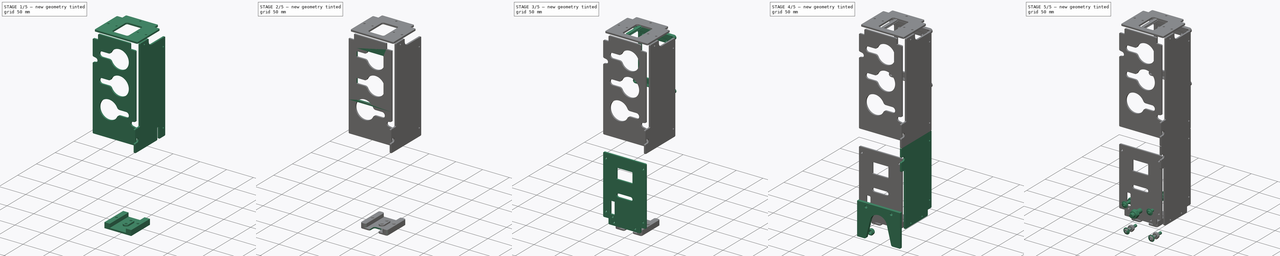
[diagram: build sequence overview — one tinted view per stage of 5, left to right]
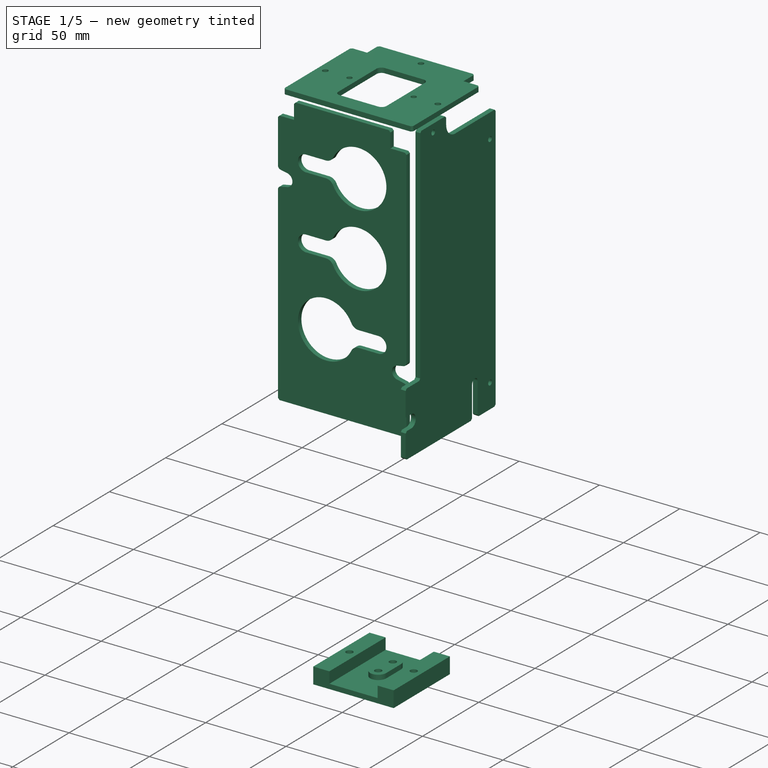
[diagram: stage 1 of 5 — iso view after this stage's code; geometry added in this stage tinted green]
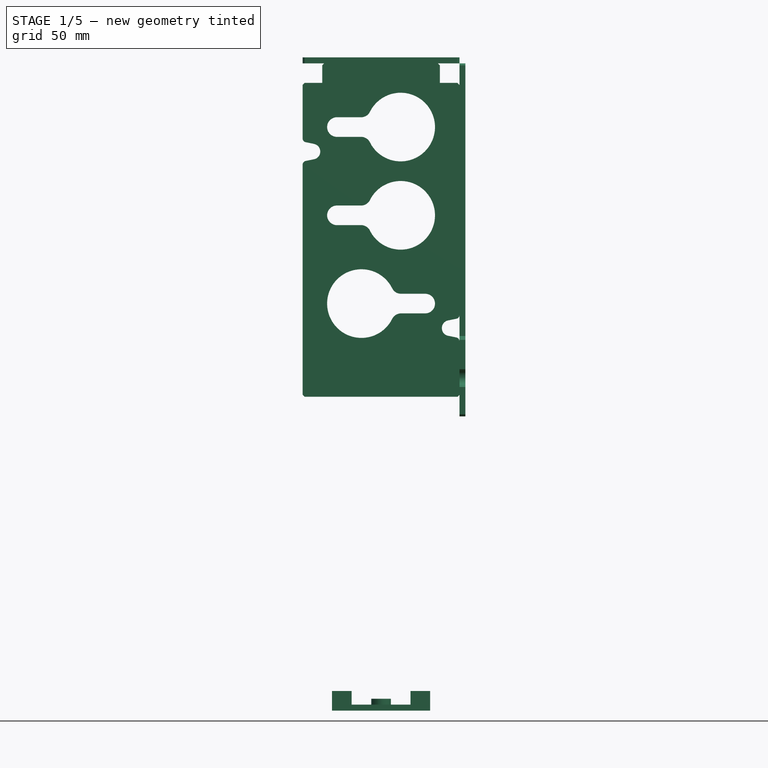
[diagram: stage 1 of 5 — front view after this stage's code; geometry added in this stage tinted green]
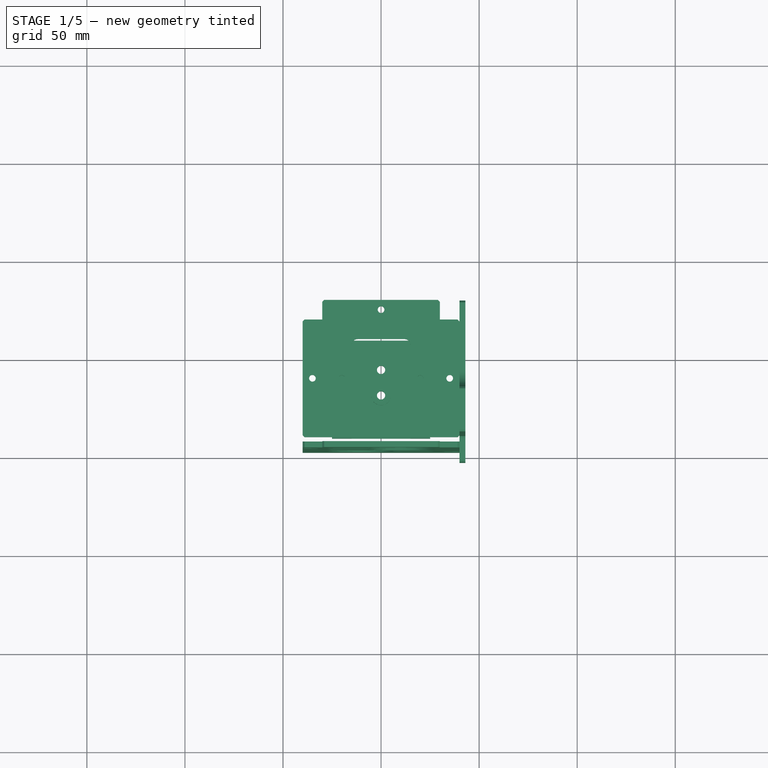
[diagram: stage 1 of 5 — top view after this stage's code; geometry added in this stage tinted green]
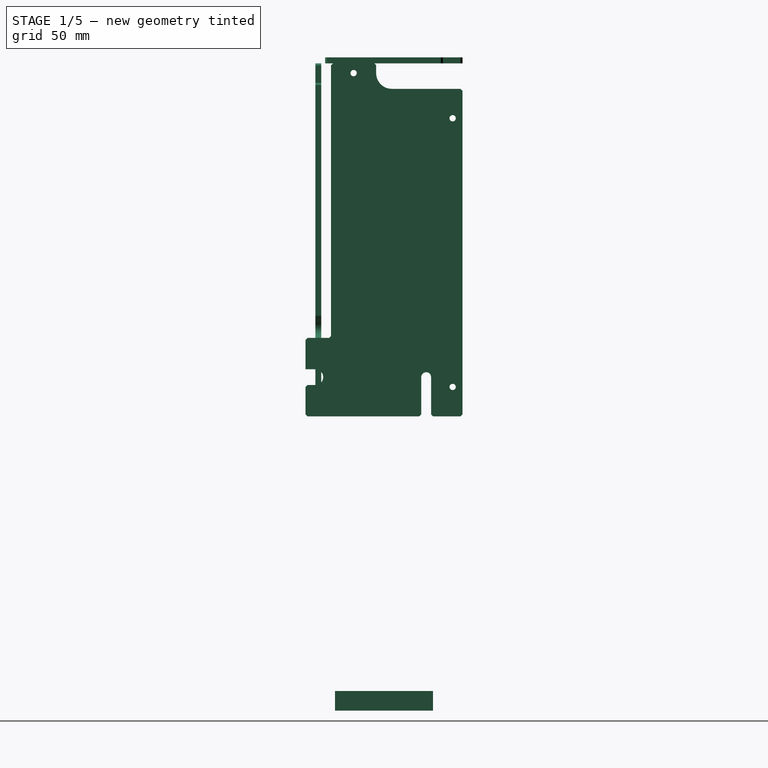
[diagram: stage 1 of 5 — right view after this stage's code; geometry added in this stage tinted green]
FCSTD DOCUMENT  (FreeCAD 2024.113R14555 (Git shallow))
Label: colonne-moteur
License: Creative Commons Attribution-NoDerivatives
LicenseURL: http://creativecommons.org/licenses/by-nd/4.0/
objects: Sketcher::SketchObject×50, App::Link×35, PartDesign::Pocket×28, TechDraw::DrawProjGroupItem×22, TechDraw::DrawProjGroup×22, PartDesign::Pad×21, TechDraw::DrawSVGTemplate×21, TechDraw::DrawPage×21, PartDesign::Chamfer×20, PartDesign::Body×19, App::Part×12, Part::FeaturePython×11, PartDesign::Fillet×11, Part::Feature×6, Part::SubShapeBinder×5, PartDesign::FeatureBase×4, PartDesign::Plane×3, PartDesign::SubShapeBinder×2, App::DocumentObjectGroup×2, App::VRMLObject×1, +3 more types
note: 398 computed .brp shape members not serialized (recipe doc carries the construction recipe); baked Part::Feature solids carry a one-line shape summary decoded from their .brp
EXTERNAL_REF file=omniwheel.FCStd obj=Part016
EXTERNAL_REF file=generic-hardware.FCStd obj=_3HS16_0884S
EXTERNAL_REF file=generic-hardware.FCStd obj=Body004
EXTERNAL_REF file=generic-hardware.FCStd obj=Body003
EXTERNAL_REF file=generic-hardware.FCStd obj=Body001
EXTERNAL_REF file=structures.FCStd obj=Part004
EXTERNAL_REF file=structures.FCStd obj=Part005
EXTERNAL_REF file=structures.FCStd obj=Part006
EXTERNAL_REF file=structures.FCStd obj=Part
EXTERNAL_REF file=../robots_2023.FCStd obj=Part001
EXTERNAL_REF file=generic-hardware.FCStd obj=Solid002
EXTERNAL_REF file=../table_2024.FCStd obj=Group

FEATURE [App::Part] Part001  label="Part"
  ClaimAllChildren = false
  ExportMode = 1
  Group = -> [Screw007,Nut001,Nut002,Screw005,Screw006,Screw008,Nut003,Nut004]
  Origin = -> Origin028
  TreeRank = 0
  _ExportChildren = -> [Screw007,Nut001,Nut002,Screw005,Screw006,Screw008,Nut003,Nut004]
  _GroupVersion = 1
FEATURE [App::Link] Link001  label="Link001(23HS16_0884S_equiped)"
  AutoLinkLabel = true
  AutoPlacement = true
  LinkPlacement = pos=(4.9174e-07,0,0) rot=(0,-1,0;1.5708rad)
  LinkedObject = -> <external generic-hardware.FCStd>#_3HS16_0884S
  Placement = pos=(4.9174e-07,0,0) rot=(0,-1,0;1.5708rad)
  SyncGroupVisibility = false
  TreeRank = 0
  _LinkVersion = 1
FEATURE [App::Part] Part002  label="EnsembleMoteur"
  ClaimAllChildren = false
  ExportMode = 1
  Group = -> [Body018,Part001,Link001,Body017]
  Origin = -> Origin029
  Placement = pos=(0,13,80) rot=(0,0,1;0rad)
  TreeRank = 0
  _ExportChildren = -> [Body018,Part001,Link001,Body017]
  _GroupVersion = 1
FEATURE [App::Link] Link002  label="Link002(MB_300)"
  AttacherType = Attacher::AttachEngine3D
  AutoLinkLabel = true
  AutoPlacement = true
  LinkPlacement = pos=(35,4.974e-13,-4.17233e-06) rot=(1,0,0;1.5708rad)
  LinkedObject = -> <external generic-hardware.FCStd>#Body004
  Placement = pos=(35,4.974e-13,-4.17233e-06) rot=(1,0,0;1.5708rad)
  SyncGroupVisibility = false
  TreeRank = 0
  _LinkVersion = 1
FEATURE [App::Link] Link003  label="Link003(MB_60)"
  AutoLinkLabel = true
  AutoPlacement = true
  LinkPlacement = pos=(35,5,-5) rot=(0,0,1;0rad)
  LinkedObject = -> <external generic-hardware.FCStd>#Body003
  Placement = pos=(35,5,-5) rot=(0,0,1;0rad)
  SyncGroupVisibility = false
  TreeRank = 0
  _LinkVersion = 1
FEATURE [App::Link] Link004  label="Link004(Corner)"
  AutoLinkLabel = true
  AutoPlacement = true
  LinkPlacement = pos=(35,-4.76836e-06,-5) rot=(0,0,-1;1.5708rad)
  LinkedObject = -> <external generic-hardware.FCStd>#Body001
  Placement = pos=(35,-4.76836e-06,-5) rot=(0,0,-1;1.5708rad)
  SyncGroupVisibility = false
  TreeRank = 0
  _LinkVersion = 1
FEATURE [App::Link] Link005  label="Link005(*Corner)"
  AutoLinkLabel = true
  AutoPlacement = true
  LinkPlacement = pos=(-35,3.57629e-06,-5) rot=(0,0,-1;1.5708rad)
  LinkedObject = -> Link004
  Placement = pos=(-35,3.57629e-06,-5) rot=(0,0,-1;1.5708rad)
  SyncGroupVisibility = false
  TreeRank = 0
  _LinkVersion = 1
FEATURE [App::Link] Link006  label="Link006(*Corner)"
  AutoLinkLabel = true
  AutoPlacement = true
  LinkPlacement = pos=(35,70,-5) rot=(0,0,-1;1.5708rad)
  LinkedObject = -> Link004
  Placement = pos=(35,70,-5) rot=(0,0,-1;1.5708rad)
  SyncGroupVisibility = false
  TreeRank = 0
  _LinkVersion = 1
FEATURE [App::Link] Link007  label="Link007(*Corner)"
  AutoLinkLabel = true
  AutoPlacement = true
  LinkPlacement = pos=(-35,70,-5) rot=(0,0,-1;1.5708rad)
  LinkedObject = -> Link004
  Placement = pos=(-35,70,-5) rot=(0,0,-1;1.5708rad)
  SyncGroupVisibility = false
  TreeRank = 0
  _LinkVersion = 1
FEATURE [App::Link] Link008  label="Link008(*Corner)"
  AutoLinkLabel = true
  AutoPlacement = true
  LinkPlacement = pos=(35,-4.76836e-06,305) rot=(0,0,-1;1.5708rad)
  LinkedObject = -> Link004
  Placement = pos=(35,-4.76836e-06,305) rot=(0,0,-1;1.5708rad)
  SyncGroupVisibility = false
  TreeRank = 0
  _LinkVersion = 1
FEATURE [App::Link] Link009  label="Link009(*Corner)"
  AutoLinkLabel = true
  AutoPlacement = true
  LinkPlacement = pos=(35,70,305) rot=(0,0,-1;1.5708rad)
  LinkedObject = -> Link004
  Placement = pos=(35,70,305) rot=(0,0,-1;1.5708rad)
  SyncGroupVisibility = false
  TreeRank = 0
  _LinkVersion = 1
FEATURE [App::Link] Link010  label="Link010(*Corner)"
  AutoLinkLabel = true
  AutoPlacement = true
  LinkPlacement = pos=(-35,3.57629e-06,305) rot=(0,0,-1;1.5708rad)
  LinkedObject = -> Link004
  Placement = pos=(-35,3.57629e-06,305) rot=(0,0,-1;1.5708rad)
  SyncGroupVisibility = false
  TreeRank = 0
  _LinkVersion = 1
FEATURE [App::Link] Link011  label="Link011(*Corner)"
  AutoLinkLabel = true
  AutoPlacement = true
  LinkPlacement = pos=(-35,70,305) rot=(0,0,-1;1.5708rad)
  LinkedObject = -> Link004
  Placement = pos=(-35,70,305) rot=(0,0,-1;1.5708rad)
  SyncGroupVisibility = false
  TreeRank = 0
  _LinkVersion = 1
FEATURE [App::Link] Link012  label="Link012(*MB_300)"
  AutoLinkLabel = true
  AutoPlacement = true
  LinkPlacement = pos=(-35,-4.974e-13,4.17232e-06) rot=(1,0,0;1.5708rad)
  LinkedObject = -> Link002
  Placement = pos=(-35,-4.974e-13,4.17232e-06) rot=(1,0,0;1.5708rad)
  SyncGroupVisibility = false
  TreeRank = 0
  _LinkVersion = 1
FEATURE [App::Link] Link013  label="Link013(*MB_300)"
  AutoLinkLabel = true
  AutoPlacement = true
  LinkPlacement = pos=(35,70,1.2517e-05) rot=(1,0,0;1.5708rad)
  LinkedObject = -> Link002
  Placement = pos=(35,70,1.2517e-05) rot=(1,0,0;1.5708rad)
  SyncGroupVisibility = false
  TreeRank = 0
  _LinkVersion = 1
FEATURE [App::Link] Link014  label="Link014(*MB_300)"
  AutoLinkLabel = true
  AutoPlacement = true
  LinkPlacement = pos=(-35,70,2.08616e-05) rot=(1,0,0;1.5708rad)
  LinkedObject = -> Link002
  Placement = pos=(-35,70,2.08616e-05) rot=(1,0,0;1.5708rad)
  SyncGroupVisibility = false
  TreeRank = 0
  _LinkVersion = 1
FEATURE [App::Link] Link015  label="Link015(*MB_60)"
  AutoLinkLabel = true
  AutoPlacement = true
  LinkPlacement = pos=(-35,5.00001,-5) rot=(0,0,1;0rad)
  LinkedObject = -> Link003
  Placement = pos=(-35,5.00001,-5) rot=(0,0,1;0rad)
  SyncGroupVisibility = false
  TreeRank = 0
  _LinkVersion = 1
FEATURE [App::Link] Link016  label="Link016(*MB_60)"
  AutoLinkLabel = true
  AutoPlacement = true
  LinkPlacement = pos=(-30,70,-5) rot=(0,0,-1;1.5708rad)
  LinkedObject = -> Link003
  Placement = pos=(-30,70,-5) rot=(0,0,-1;1.5708rad)
  SyncGroupVisibility = false
  TreeRank = 0
  _LinkVersion = 1
FEATURE [App::Link] Link017  label="Link017(*MB_60)"
  AutoLinkLabel = true
  AutoPlacement = true
  LinkPlacement = pos=(35,4.99996,305) rot=(0,0,1;0rad)
  LinkedObject = -> Link003
  Placement = pos=(35,4.99996,305) rot=(0,0,1;0rad)
  SyncGroupVisibility = false
  TreeRank = 0
  _LinkVersion = 1
FEATURE [App::Link] Link018  label="Link018(*MB_60)"
  AutoLinkLabel = true
  AutoPlacement = true
  LinkPlacement = pos=(30,-4.30345e-05,305) rot=(0,0,1;1.5708rad)
  LinkedObject = -> Link003
  Placement = pos=(30,-4.30345e-05,305) rot=(0,0,1;1.5708rad)
  SyncGroupVisibility = false
  TreeRank = 0
  _LinkVersion = 1
FEATURE [App::Link] Link019  label="Link019(*MB_60)"
  AutoLinkLabel = true
  AutoPlacement = true
  LinkPlacement = pos=(-35,4.99996,305) rot=(0,0,1;0rad)
  LinkedObject = -> Link003
  Placement = pos=(-35,4.99996,305) rot=(0,0,1;0rad)
  SyncGroupVisibility = false
  TreeRank = 0
  _LinkVersion = 1
FEATURE [App::Link] Link020  label="Link020(*MB_60)"
  AutoLinkLabel = true
  AutoPlacement = true
  LinkPlacement = pos=(-30,69.9999,305) rot=(0,0,-1;1.5708rad)
  LinkedObject = -> Link003
  Placement = pos=(-30,69.9999,305) rot=(0,0,-1;1.5708rad)
  SyncGroupVisibility = false
  TreeRank = 0
  _LinkVersion = 1
FEATURE [Sketcher::SketchObject] Sketch152
  ArcFitTolerance = 0
  AttachmentSupport = -> [XY_Plane089]
  ExternalBSplineMaxDegree = 0
  ExternalBSplineTolerance = 0
  FullyConstrained = true
  InternalTolerance = 1e-06
  InvalidShape = false
  MakeInternals = false
  MapMode = 5
  Support = -> [XY_Plane089]
  TreeRank = 0
  ValidateShape = true
  sketch-geometry (11):
    g0: LineSegment StartX=40 StartY=-30 StartZ=0 EndX=-40 EndY=-30 EndZ=0
    g1: LineSegment StartX=-40 StartY=-30 StartZ=0 EndX=-40 EndY=30 EndZ=0
    g2: LineSegment StartX=-40 StartY=30 StartZ=0 EndX=-30 EndY=30 EndZ=0
    g3: LineSegment StartX=-30 StartY=30 StartZ=0 EndX=-30 EndY=40 EndZ=0
    g4: LineSegment StartX=-30 StartY=40 StartZ=0 EndX=30 EndY=40 EndZ=0
    g5: LineSegment StartX=30 StartY=40 StartZ=0 EndX=30 EndY=30 EndZ=0
    g6: LineSegment StartX=30 StartY=30 StartZ=0 EndX=40 EndY=30 EndZ=0
    g7: LineSegment StartX=40 StartY=30 StartZ=0 EndX=40 EndY=-30 EndZ=0
    g8: Circle CenterX=0 CenterY=35 CenterZ=0 NormalX=0 NormalY=0 NormalZ=1 AngleXU=0 Radius=1.7
    g9: Circle CenterX=-35 CenterY=0 CenterZ=0 NormalX=0 NormalY=0 NormalZ=1 AngleXU=0 Radius=1.7
    g10: Circle CenterX=35 CenterY=0 CenterZ=0 NormalX=0 NormalY=0 NormalZ=1 AngleXU=0 Radius=1.7
  constraints (30):
    c: Coincident(g0,g1)
    c: Coincident(g1,g2)
    c: Horizontal(g2)
    c: Coincident(g2,g3)
    c: Vertical(g3)
    c: Coincident(g3,g4)
    c: Horizontal(g4)
    c: Coincident(g4,g5)
    c: Vertical(g5)
    c: Coincident(g5,g6)
    c: Horizontal(g6)
    c: Coincident(g6,g7)
    c: Coincident(g7,g0)
    c: Vertical(g7)
    c: Symmetric(g0,g0,g-2)
    c: Symmetric(g1,g0,g-1)
    c: Equal(g2,g3)
    c: Equal(g3,g5)
    c: Equal(g5,g6)
    c: DistanceY(g1,g1) = 60
    c: DistanceX(g0,g0) = 80
    c: DistanceX(g2,g2) = 10
    c: PointOnObject(g8,g-2)
    c: PointOnObject(g9,g-1)
    c: Symmetric(g10,g9,g-1)
    c: DistanceX(g1,g9) = 5
    c: DistanceY(g8,g4) = 5
    c: Diameter(g8) = 3.4
    c: Equal(g8,g9)
    c: Equal(g8,g10)
FEATURE [PartDesign::Pad] Pad084
  AddSubType = 0
  AutoTaperInnerAngle = false
  CheckUpToFaceLimits = true
  ClaimChildren = false
  Direction = (1,1,1)
  Fit = 0
  FitJoin = 0
  InnerFit = 0
  InnerFitJoin = 0
  InvalidShape = false
  Length = 3
  Length2 = 100
  Linearize = true
  NewSolid = false
  Profile = -> Sketch152
  Refine = true
  Suppress = false
  TaperInnerAngle = 0
  TaperInnerAngleRev = 0
  TreeRank = 0
  Type = 0
  ValidateShape = true
  _ProfileBasedVersion = 1
FEATURE [PartDesign::Chamfer] Chamfer055
  AddSubType = 0
  Angle = 45
  Base = -> Pad084 [Edge20,Edge14,Edge11,Edge5,Edge2,Edge1]
  BaseFeature = -> Pad084
  ChamferType = 0
  FlipDirection = false
  InvalidShape = false
  NewSolid = false
  Refine = true
  Size = 1
  Size2 = 1
  SupportTransform = false
  Suppress = false
  TreeRank = 0
  UseAllEdges = false
  ValidateShape = true
FEATURE [PartDesign::Body] Body086  label="CarterSide240*320"
  AutoGroupSolids = false
  ClaimAllChildren = false
  ExportMode = 0
  Group = -> [Sketch183,Pad098,Sketch184,Pocket028,Sketch185,Pocket029,Sketch209,Pocket043,Chamfer073,Sketch214,Pocket046]
  InvalidShape = false
  Origin = -> Origin174
  Placement = pos=(0,75,0) rot=(0,0,1;0rad)
  SingleSolid = true
  Tip = -> Pocket046
  TreeRank = 382
  ValidateShape = true
  _ExportChildren = -> [Pad098,Pocket028,Pocket029,Pocket043,Chamfer073,Pocket046]
  _GroupVersion = 1
FEATURE [App::Part] Part013  label="EnsembleTFTCarter"
  ClaimAllChildren = false
  ExportMode = 1
  Group = -> [Body086,Part014,Body093]
  Origin = -> Origin184
  TreeRank = 558
  _ExportChildren = -> [Body086,Part014,Body093]
  _GroupVersion = 1
FEATURE [TechDraw::DrawViewClip] Clip
  Height = 100
  LockPosition = false
  Rotation = 0
  ScaleType = 0
  ShowFrame = false
  TreeRank = 640
  Width = 100
  X = 0
  Y = 0
FEATURE [TechDraw::DrawProjGroupItem] ProjItem019  label="Front019"
  CoarseView = false
  Direction = (0,1,0)
  Focus = 100
  HardHidden = false
  IsoCount = 0
  IsoHidden = false
  IsoVisible = false
  LockPosition = true
  Perspective = false
  Rotation = 0
  RotationVector = (-1,0,0)
  ScaleType = 2
  ScrubCount = 0
  SeamHidden = false
  SeamVisible = true
  SmoothHidden = false
  SmoothVisible = true
  Source = -> [Pocket046]
  TreeRank = 645
  Type = 0
  X = 0
  XDirection = (-1,0,0)
  Y = 0
FEATURE [TechDraw::DrawProjGroup] ProjGroup019
  Anchor = -> ProjItem019
  AutoDistribute = true
  LockPosition = false
  ProjectionType = 0
  Rotation = 0
  ScaleType = 0
  Source = -> [Pocket046]
  TreeRank = 646
  Views = -> [ProjItem019]
  X = 45.1205
  Y = 148.293
  spacingX = 15
  spacingY = 15
FEATURE [TechDraw::DrawPage] Page014  label="Laser3mmCarterSide240-320"
  KeepUpdated = true
  NextBalloonIndex = 1
  ProjectionType = 0
  Template = -> Template014
  TreeRank = 385
  Views = -> [ProjGroup019]
FEATURE [Part::SubShapeBinder] Import006  label="Import006(PolarPattern005)"
  BindCopyOnChange = 0
  BindMode = 0
  ClaimChildren = false
  Context = -> Group001 [Body095.Import006.]
  EdgeTolerance = 1e-06
  FillStyle = 0
  FixShape = 1
  Fuse = false
  InvalidShape = false
  MakeFace = false
  MergeEdges = true
  OffsetFill = false
  OffsetIntersection = false
  OffsetJoinType = 0
  OffsetOpenResult = false
  Outline = false
  PartialLoad = false
  Relative = true
  SplitEdges = false
  Support = -> [Part005[Part003.Part006.Link017.PolarPattern005.]]
  TightBound = false
  TreeRank = 659
  ValidateShape = false
  _Version = 8
FEATURE [TechDraw::DrawSVGTemplate] Template019
  Height = 210
  Orientation = 1
  Template = <path>
  TreeRank = 665
  Width = 297
FEATURE [PartDesign::FeatureBase] Clone003
  BaseFeature = -> Body072
  FixShape = 1
  InvalidShape = false
  NewSolid = false
  Placement = pos=(0,35,320) rot=(0,0,1;0rad)
  Suppress = false
  TreeRank = 679
  ValidateShape = true
FEATURE [Sketcher::SketchObject] Sketch219
  ArcFitTolerance = 1e-06
  AttachmentSupport = -> [XY_Plane118]
  ExternalBSplineMaxDegree = 5
  ExternalBSplineTolerance = 0.0001
  FixShape = 1
  FullyConstrained = true
  InternalTolerance = 1e-06
  InvalidShape = false
  MakeInternals = false
  MapMode = 5
  Support = -> [XY_Plane118]
  TreeRank = 694
  ValidateShape = false
  sketch-geometry (5):
    g0: LineSegment StartX=-25 StartY=60 StartZ=0 EndX=-25 EndY=10 EndZ=0
    g1: LineSegment StartX=-25 StartY=10 StartZ=0 EndX=25 EndY=10 EndZ=0
    g2: LineSegment StartX=25 StartY=10 StartZ=0 EndX=25 EndY=60 EndZ=0
    g3: LineSegment StartX=25 StartY=60 StartZ=0 EndX=-25 EndY=60 EndZ=0
    g4: GeomPoint [constr] X=0 Y=35 Z=0
  constraints (13):
    c: Coincident(g0,g1)
    c: Coincident(g1,g2)
    c: Coincident(g2,g3)
    c: Coincident(g3,g0)
    c: Horizontal(g1)
    c: Horizontal(g3)
    c: Vertical(g0)
    c: Vertical(g2)
    c: Symmetric(g1,g0,g4)
    c: PointOnObject(g4,g-2)
    c: Equal(g3,g2)
    c: DistanceX(g3,g3) = 50
    c: DistanceY(g-1,g4) = 35
FEATURE [PartDesign::Pad] Pad112
  AddSubType = 0
  AlongSketchNormal = false
  AutoTaperInnerAngle = true
  CheckUpToFaceLimits = true
  ClaimChildren = false
  Direction = (0,0,1)
  Fit = 0
  FitJoin = 0
  FixShape = 1
  InnerFit = 0
  InnerFitJoin = 0
  InvalidShape = false
  Length = 10
  Length2 = 10
  Linearize = true
  NewSolid = false
  Profile = -> Sketch219
  ReferenceAxis = -> Sketch219 [N_Axis]
  Refine = true
  Reversed = true
  Suppress = false
  TaperInnerAngle = 0
  TaperInnerAngleRev = 0
  TreeRank = 695
  Type = 0
  ValidateShape = true
  _ProfileBasedVersion = 1
FEATURE [Sketcher::SketchObject] Sketch220
  ArcFitTolerance = 1e-06
  AttachmentSupport = -> [XZ_Plane118]
  ExternalBSplineMaxDegree = 5
  ExternalBSplineTolerance = 0.0001
  ExternalGeometry = -> [Pad112]
  FixShape = 1
  FullyConstrained = true
  InternalTolerance = 1e-06
  InvalidShape = false
  MakeInternals = false
  MapMode = 5
  Placement = pos=(0,0,0) rot=(1,0,0;1.5708rad)
  Support = -> [XZ_Plane118]
  TreeRank = 696
  ValidateShape = false
  sketch-geometry (5):
    g0: LineSegment StartX=-15 StartY=-7 StartZ=0 EndX=-15 EndY=0 EndZ=0
    g1: LineSegment StartX=-15 StartY=0 StartZ=0 EndX=15 EndY=0 EndZ=0
    g2: LineSegment StartX=15 StartY=0 StartZ=0 EndX=15 EndY=-7 EndZ=0
    g3: LineSegment StartX=15 StartY=-7 StartZ=0 EndX=-15 EndY=-7 EndZ=0
    g4: GeomPoint [constr] X=0 Y=-3.5 Z=0
  constraints (13):
    c: Coincident(g0,g1)
    c: Coincident(g1,g2)
    c: Coincident(g2,g3)
    c: Coincident(g3,g0)
    c: Horizontal(g1)
    c: Horizontal(g3)
    c: Vertical(g0)
    c: Vertical(g2)
    c: Symmetric(g1,g0,g4)
    c: PointOnObject(g4,g-2)
    c: PointOnObject(g1,g-1)
    c: DistanceY(g-3,g2) = 3
    c: DistanceX(g1,g1) = 30
FEATURE [PartDesign::Pocket] Pocket049
  AddSubType = 1
  AlongSketchNormal = false
  AutoTaperInnerAngle = true
  BaseFeature = -> Pad112
  CheckUpToFaceLimits = true
  ClaimChildren = false
  Direction = (0,1,-2e-16)
  Fit = 0
  FitJoin = 0
  FixShape = 1
  InnerFit = 0
  InnerFitJoin = 0
  InvalidShape = false
  Length = 5
  Length2 = 10
  Linearize = true
  NewSolid = false
  Profile = -> Sketch220
  ReferenceAxis = -> Sketch220 [N_Axis]
  Refine = true
  Suppress = false
  TaperInnerAngle = 0
  TaperInnerAngleRev = 0
  TreeRank = 697
  Type = 1
  ValidateShape = true
  _ProfileBasedVersion = 1
  _Version = 1
FEATURE [Sketcher::SketchObject] Sketch221
  ArcFitTolerance = 1e-06
  AttachmentSupport = -> [XY_Plane118]
  ExternalBSplineMaxDegree = 5
  ExternalBSplineTolerance = 0.0001
  ExternalGeometry = -> [Pocket049]
  FixShape = 1
  FullyConstrained = true
  InternalTolerance = 1e-06
  InvalidShape = false
  MakeInternals = false
  MapMode = 5
  Support = -> [XY_Plane118]
  TreeRank = 698
  ValidateShape = false
  sketch-geometry (2):
    g0: Circle CenterX=-20 CenterY=35 CenterZ=0 NormalX=0 NormalY=0 NormalZ=1 AngleXU=0 Radius=2.1
    g1: Circle CenterX=20 CenterY=35 CenterZ=0 NormalX=0 NormalY=0 NormalZ=1 AngleXU=0 Radius=2.1
  constraints (5):
    c: Equal(g1,g0)
    c: Diameter(g1) = 4.2
    c: Symmetric(g0,g1,g-2)
    c: DistanceX(g0,g1) = 40
    c: DistanceY(g-3,g1) = 25
FEATURE [PartDesign::Pocket] Pocket050
  AddSubType = 1
  AlongSketchNormal = false
  AutoTaperInnerAngle = true
  BaseFeature = -> Pocket049
  CheckUpToFaceLimits = true
  ClaimChildren = false
  Direction = (0,0,-1)
  Fit = 0
  FitJoin = 0
  FixShape = 1
  InnerFit = 0
  InnerFitJoin = 0
  InvalidShape = false
  Length = 5
  Length2 = 10
  Linearize = true
  NewSolid = false
  Profile = -> Sketch221
  ReferenceAxis = -> Sketch221 [N_Axis]
  Refine = true
  Suppress = false
  TaperInnerAngle = 0
  TaperInnerAngleRev = 0
  TreeRank = 699
  Type = 1
  ValidateShape = true
  _ProfileBasedVersion = 1
  _Version = 1
FEATURE [Sketcher::SketchObject] Sketch222
  ArcFitTolerance = 1e-06
  AttachmentSupport = -> [Pocket050]
  ExternalBSplineMaxDegree = 5
  ExternalBSplineTolerance = 0.0001
  ExternalGeometry = -> [Pocket050]
  FixShape = 1
  FullyConstrained = true
  InternalTolerance = 1e-06
  InvalidShape = false
  MakeInternals = false
  MapMode = 5
  Placement = pos=(0,-1.6e-15,-7) rot=(0,0,1;0rad)
  Support = -> [Pocket050]
  TreeRank = 700
  ValidateShape = false
  sketch-geometry (5):
    g0: ArcOfCircle CenterX=0 CenterY=45 CenterZ=0 NormalX=0 NormalY=0 NormalZ=1 AngleXU=0 Radius=5 StartAngle=2.58e-14 EndAngle=3.14159
    g1: ArcOfCircle CenterX=0 CenterY=32 CenterZ=0 NormalX=0 NormalY=0 NormalZ=1 AngleXU=0 Radius=5 StartAngle=3.14159 EndAngle=6.28319
    g2: LineSegment StartX=-5 StartY=45 StartZ=0 EndX=-5 EndY=32 EndZ=0
    g3: LineSegment StartX=5 StartY=32 StartZ=0 EndX=5 EndY=45 EndZ=0
    g4: LineSegment [constr] StartX=-20 StartY=35 StartZ=0 EndX=20 EndY=35 EndZ=0
  constraints (12):
    c: Tangent(g0,g2) = -1.5708
    c: Tangent(g2,g1) = -1.5708
    c: Tangent(g1,g3) = -1.5708
    c: Tangent(g3,g0) = -1.5708
    c: Equal(g0,g1)
    c: PointOnObject(g0,g-2)
    c: DistanceY(g1,g0) = 13
    c: Radius(g0) = 5
    c: Coincident(g4,g-3)
    c: Coincident(g4,g-4)
    c: DistanceY(g1,g-4) = 3
    c: PointOnObject(g1,g-2)
FEATURE [PartDesign::Pad] Pad113
  AddSubType = 0
  AlongSketchNormal = false
  AutoTaperInnerAngle = true
  BaseFeature = -> Pocket050
  CheckUpToFaceLimits = true
  ClaimChildren = false
  Direction = (0,2e-16,1)
  Fit = 0
  FitJoin = 0
  FixShape = 1
  InnerFit = 0
  InnerFitJoin = 0
  InvalidShape = false
  Length = 3
  Length2 = 10
  Linearize = true
  NewSolid = false
  Profile = -> Sketch222
  ReferenceAxis = -> Sketch222 [N_Axis]
  Refine = true
  Suppress = false
  TaperInnerAngle = 0
  TaperInnerAngleRev = 0
  TreeRank = 701
  Type = 0
  ValidateShape = true
  _ProfileBasedVersion = 1
FEATURE [Sketcher::SketchObject] Sketch223
  ArcFitTolerance = 1e-06
  AttachmentSupport = -> [Pad113]
  ExternalBSplineMaxDegree = 5
  ExternalBSplineTolerance = 0.0001
  ExternalGeometry = -> [Pad113]
  FixShape = 1
  FullyConstrained = true
  InternalTolerance = 1e-06
  InvalidShape = false
  MakeInternals = false
  MapMode = 5
  Placement = pos=(0,0,-4) rot=(0,0,1;0rad)
  Support = -> [Pad113]
  TreeRank = 702
  ValidateShape = false
  sketch-geometry (2):
    g0: Circle CenterX=0 CenterY=45 CenterZ=0 NormalX=0 NormalY=0 NormalZ=1 AngleXU=0 Radius=2.1
    g1: Circle CenterX=0 CenterY=32 CenterZ=0 NormalX=0 NormalY=0 NormalZ=1 AngleXU=0 Radius=2.1
  constraints (4):
    c: Coincident(g0,g-3)
    c: Coincident(g1,g-4)
    c: Equal(g0,g1)
    c: Diameter(g0) = 4.2
FEATURE [PartDesign::Pocket] Pocket051
  AddSubType = 1
  AlongSketchNormal = false
  AutoTaperInnerAngle = true
  BaseFeature = -> Pad113
  CheckUpToFaceLimits = true
  ClaimChildren = false
  Direction = (0,0,-1)
  Fit = 0
  FitJoin = 0
  FixShape = 1
  InnerFit = 0
  InnerFitJoin = 0
  InvalidShape = false
  Length = 7
  Length2 = 10
  Linearize = true
  NewSolid = false
  Profile = -> Sketch223
  ReferenceAxis = -> Sketch223 [N_Axis]
  Refine = true
  Suppress = false
  TaperInnerAngle = 0
  TaperInnerAngleRev = 0
  TreeRank = 703
  Type = 0
  ValidateShape = true
  _ProfileBasedVersion = 1
  _Version = 1
FEATURE [Sketcher::SketchObject] Sketch225
  ArcFitTolerance = 1e-06
  AttachmentSupport = -> [Clone003]
  ExternalBSplineMaxDegree = 5
  ExternalBSplineTolerance = 0.0001
  FixShape = 1
  FullyConstrained = true
  InternalTolerance = 1e-06
  InvalidShape = false
  MakeInternals = false
  MapMode = 5
  Placement = pos=(0,35,320) rot=(1,0,0;3.14159rad)
  Support = -> [Clone003]
  TreeRank = 709
  ValidateShape = false
  sketch-geometry (12):
    g0: ArcOfCircle CenterX=-12 CenterY=17 CenterZ=0 NormalX=0 NormalY=0 NormalZ=1 AngleXU=0 Radius=3 StartAngle=1.5708 EndAngle=3.14159
    g1: LineSegment StartX=-12 StartY=20 StartZ=0 EndX=12 EndY=20 EndZ=0
    g2: ArcOfCircle CenterX=12 CenterY=17 CenterZ=0 NormalX=0 NormalY=0 NormalZ=1 AngleXU=0 Radius=3 StartAngle=0 EndAngle=1.5708
    g3: LineSegment StartX=15 StartY=17 StartZ=0 EndX=15 EndY=-17 EndZ=0
    g4: ArcOfCircle CenterX=12 CenterY=-17 CenterZ=0 NormalX=0 NormalY=0 NormalZ=1 AngleXU=0 Radius=3 StartAngle=4.71239 EndAngle=6.28319
    g5: LineSegment StartX=12 StartY=-20 StartZ=0 EndX=-12 EndY=-20 EndZ=0
    g6: ArcOfCircle CenterX=-12 CenterY=-17 CenterZ=0 NormalX=0 NormalY=0 NormalZ=1 AngleXU=0 Radius=3 StartAngle=3.14159 EndAngle=4.71239
    g7: LineSegment StartX=-15 StartY=-17 StartZ=0 EndX=-15 EndY=17 EndZ=0
    g8: GeomPoint [constr] X=-15 Y=20 Z=0
    g9: GeomPoint [constr] X=15 Y=-20 Z=0
    g10: Circle CenterX=-20 CenterY=0 CenterZ=0 NormalX=0 NormalY=0 NormalZ=1 AngleXU=0 Radius=1.6
    g11: Circle CenterX=20 CenterY=0 CenterZ=0 NormalX=0 NormalY=0 NormalZ=1 AngleXU=0 Radius=1.6
  constraints (28):
    c: Tangent(g0,g1) = 1.5708
    c: Tangent(g1,g2) = 1.5708
    c: Tangent(g2,g3) = 1.5708
    c: Tangent(g3,g4) = 1.5708
    c: Tangent(g4,g5) = 1.5708
    c: Tangent(g5,g6) = 1.5708
    c: Tangent(g6,g7) = 1.5708
    c: Tangent(g7,g0) = 1.5708
    c: Horizontal(g1)
    c: Horizontal(g5)
    c: Vertical(g3)
    c: Vertical(g7)
    c: Equal(g0,g2)
    c: Equal(g2,g4)
    c: Equal(g4,g6)
    c: PointOnObject(g8,g1)
    c: PointOnObject(g8,g7)
    c: PointOnObject(g9,g3)
    c: PointOnObject(g9,g5)
    c: Radius(g2) = 3
    c: DistanceY(g4,g1) = 40
    c: DistanceX(g0,g2) = 30
    c: Symmetric(g2,g6,g-1)
    c: PointOnObject(g10,g-1)
    c: Symmetric(g11,g10,g-1)
    c: Equal(g11,g10)
    c: Diameter(g11) = 3.2
    c: DistanceX(g10,g11) = 40
FEATURE [PartDesign::Pocket] Pocket053
  AddSubType = 1
  AlongSketchNormal = false
  AutoTaperInnerAngle = true
  BaseFeature = -> Clone003
  CheckUpToFaceLimits = true
  ClaimChildren = false
  Direction = (0,0,1)
  Fit = 0
  FitJoin = 0
  FixShape = 1
  InnerFit = 0
  InnerFitJoin = 0
  InvalidShape = false
  Length = 5
  Length2 = 10
  Linearize = true
  NewSolid = false
  Profile = -> Sketch225
  ReferenceAxis = -> Sketch225 [N_Axis]
  Refine = true
  Suppress = false
  TaperInnerAngle = 0
  TaperInnerAngleRev = 0
  TreeRank = 710
  Type = 1
  ValidateShape = true
  _ProfileBasedVersion = 1
  _Version = 1
FEATURE [PartDesign::Body] Body097  label="SupportXBee"
  AutoGroupSolids = false
  ClaimAllChildren = false
  ExportMode = 0
  FixShape = 1
  Group = -> [Sketch219,Pad112,Sketch220,Pocket049,Sketch221,Pocket050,Sketch222,Pad113,Sketch223,Pocket051,Sketch224,Pocket052,Fillet070,Chamfer076,Fillet071,Chamfer077,Chamfer078]
  InvalidShape = false
  Origin = -> Origin191
  Placement = pos=(0,0,320) rot=(0,0,1;0rad)
  SingleSolid = true
  Tip = -> Chamfer078
  TreeRank = 693
  ValidateShape = false
  _ExportChildren = -> [Pad112,Pocket049,Pocket050,Pad113,Pocket051,Pocket052,Fillet070,Chamfer076,Fillet071,Chamfer077,Chamfer078]
  _GroupVersion = 1
FEATURE [App::Part] Part015  label="TopXBeeAssembly"
  ClaimAllChildren = false
  ExportMode = 1
  Group = -> [Body096,Body097]
  Origin = -> Origin190
  TreeRank = 683
  _ExportChildren = -> [Body096,Body097]
  _GroupVersion = 1
FEATURE [TechDraw::DrawSVGTemplate] Template020
  Height = 210
  Orientation = 1
  Template = <path>
  TreeRank = 714
  Width = 297
FEATURE [TechDraw::DrawProjGroupItem] ProjItem021  label="Front021"
  CoarseView = false
  Direction = (0,0,1)
  Focus = 100
  HardHidden = false
  IsoCount = 0
  IsoHidden = false
  IsoVisible = false
  LockPosition = true
  Perspective = false
  Rotation = 0
  RotationVector = (-1,0,0)
  ScaleType = 2
  ScrubCount = 0
  SeamHidden = false
  SeamVisible = false
  SmoothHidden = false
  SmoothVisible = false
  Source = -> [Pocket053]
  TreeRank = 717
  Type = 0
  X = 0
  XDirection = (-1,0,0)
  Y = 0
FEATURE [TechDraw::DrawProjGroup] ProjGroup021
  Anchor = -> ProjItem021
  AutoDistribute = true
  LockPosition = false
  ProjectionType = 0
  Rotation = 0
  ScaleType = 0
  Source = -> [Pocket053]
  TreeRank = 718
  Views = -> [ProjItem021]
  X = 42.0681
  Y = 173.103
  spacingX = 15
  spacingY = 15
FEATURE [TechDraw::DrawPage] Page020  label="Laser3mmCarterXbee"
  KeepUpdated = true
  NextBalloonIndex = 1
  ProjectionType = 0
  Template = -> Template020
  TreeRank = 715
  Views = -> [ProjGroup021]
FEATURE [Sketcher::SketchObject] Sketch226
  ArcFitTolerance = 1e-06
  AttachmentSupport = -> [XZ_Plane120]
  ExternalBSplineMaxDegree = 5
  ExternalBSplineTolerance = 0.0001
  FixShape = 1
  FullyConstrained = true
  InternalTolerance = 1e-06
  InvalidShape = false
  MakeInternals = false
  MapMode = 5
  Placement = pos=(0,0,0) rot=(1,0,0;1.5708rad)
  Support = -> [XZ_Plane120]
  TreeRank = 741
  ValidateShape = false
  sketch-geometry (17):
    g0: LineSegment StartX=40 StartY=150 StartZ=0 EndX=-40 EndY=150 EndZ=0
    g1: LineSegment StartX=-40 StartY=150 StartZ=0 EndX=-40 EndY=310 EndZ=0
    g2: LineSegment StartX=-40 StartY=310 StartZ=0 EndX=-30 EndY=310 EndZ=0
    g3: LineSegment StartX=-30 StartY=310 StartZ=0 EndX=-30 EndY=320 EndZ=0
    g4: LineSegment StartX=-30 StartY=320 StartZ=0 EndX=30 EndY=320 EndZ=0
    g5: LineSegment StartX=30 StartY=320 StartZ=0 EndX=30 EndY=310 EndZ=0
    g6: LineSegment StartX=30 StartY=310 StartZ=0 EndX=40 EndY=310 EndZ=0
    g7: LineSegment StartX=40 StartY=310 StartZ=0 EndX=40 EndY=150 EndZ=0
    g8: Circle CenterX=10 CenterY=287.5 CenterZ=0 NormalX=0 NormalY=0 NormalZ=1 AngleXU=0 Radius=17.5
    g9: Circle CenterX=10 CenterY=242.5 CenterZ=0 NormalX=0 NormalY=0 NormalZ=1 AngleXU=0 Radius=17.5
    g10: Circle CenterX=-10 CenterY=197.5 CenterZ=0 NormalX=0 NormalY=0 NormalZ=1 AngleXU=0 Radius=17.5
    g11: LineSegment [constr] StartX=40 StartY=287.5 StartZ=0 EndX=-40 EndY=287.5 EndZ=0
    g12: LineSegment [constr] StartX=40 StartY=242.5 StartZ=0 EndX=-40 EndY=242.5 EndZ=0
    g13: LineSegment [constr] StartX=40 StartY=197.5 StartZ=0 EndX=-40 EndY=197.5 EndZ=0
    g14: LineSegment [constr] StartX=10 StartY=287.5 StartZ=0 EndX=10 EndY=242.5 EndZ=0
    g15: LineSegment [constr] StartX=10 StartY=242.5 StartZ=0 EndX=10 EndY=197.5 EndZ=0
    g16: LineSegment [constr] StartX=30 StartY=310 StartZ=0 EndX=-30 EndY=310 EndZ=0
  constraints (50):
    c: Coincident(g0,g1)
    c: Vertical(g1)
    c: Coincident(g1,g2)
    c: Horizontal(g2)
    c: Coincident(g2,g3)
    c: Vertical(g3)
    c: Coincident(g3,g4)
    c: Horizontal(g4)
    c: Coincident(g4,g5)
    c: Vertical(g5)
    c: Coincident(g5,g6)
    c: Horizontal(g6)
    c: Coincident(g6,g7)
    c: Coincident(g7,g0)
    c: Vertical(g7)
    c: Symmetric(g0,g0,g-2)
    c: Symmetric(g2,g5,g-2)
    c: Equal(g5,g6)
    c: DistanceY(g3,g3) = 10
    c: DistanceX(g1,g6) = 80
    c: DistanceY(g1) = 310
    c: DistanceY(g1,g1) = 160
    c: Equal(g10,g9)
    c: Equal(g9,g8)
    c: PointOnObject(g11,g7)
    c: PointOnObject(g11,g1)
    c: Horizontal(g11)
    c: PointOnObject(g12,g7)
    c: PointOnObject(g12,g1)
    c: Horizontal(g12)
    c: PointOnObject(g13,g7)
    c: PointOnObject(g13,g1)
    c: Horizontal(g13)
    c: Coincident(g14,g8)
    c: Coincident(g14,g9)
    c: Vertical(g14)
    c: Coincident(g15,g9)
    c: PointOnObject(g15,g13)
    c: Vertical(g15)
    c: Equal(g15,g14)
    c: PointOnObject(g8,g11)
    c: PointOnObject(g9,g12)
    c: PointOnObject(g10,g13)
    c: Coincident(g16,g5)
    c: Coincident(g16,g2)
    c: DistanceY(g14,g14) = 45
    c: DistanceY(g8,g5) = 22.5
    c: DistanceX(g8,g11) = 30
    c: DistanceX(g13,g10) = 30
    c: Diameter(g8) = 35
FEATURE [PartDesign::Pad] Pad114
  AddSubType = 0
  AlongSketchNormal = false
  AutoTaperInnerAngle = true
  CheckUpToFaceLimits = true
  ClaimChildren = false
  Direction = (0,-1,2e-16)
  Fit = 0
  FitJoin = 0
  FixShape = 1
  InnerFit = 0
  InnerFitJoin = 0
  InvalidShape = false
  Length = 3
  Length2 = 10
  Linearize = true
  NewSolid = false
  Profile = -> Sketch226
  ReferenceAxis = -> Sketch226 [N_Axis]
  Refine = true
  Reversed = true
  Suppress = false
  TaperInnerAngle = 0
  TaperInnerAngleRev = 0
  TreeRank = 742
  Type = 0
  ValidateShape = true
  _ProfileBasedVersion = 1
FEATURE [Sketcher::SketchObject] Sketch227
  ArcFitTolerance = 1e-06
  AttachmentSupport = -> [XZ_Plane120]
  ExternalBSplineMaxDegree = 5
  ExternalBSplineTolerance = 0.0001
  ExternalGeometry = -> [Pad114]
  FixShape = 1
  FullyConstrained = true
  InternalTolerance = 1e-06
  InvalidShape = false
  MakeInternals = false
  MapMode = 5
  Placement = pos=(0,0,0) rot=(1,0,0;1.5708rad)
  Support = -> [XZ_Plane120]
  TreeRank = 743
  ValidateShape = false
  sketch-geometry (8):
    g0: ArcOfCircle CenterX=-40 CenterY=275 CenterZ=0 NormalX=0 NormalY=0 NormalZ=1 AngleXU=0 Radius=5 StartAngle=1.36944 EndAngle=4.91375
    g1: ArcOfCircle CenterX=-35 CenterY=275 CenterZ=0 NormalX=0 NormalY=0 NormalZ=1 AngleXU=0 Radius=4 StartAngle=4.91375 EndAngle=7.65262
    g2: LineSegment StartX=-39 StartY=270.101 StartZ=0 EndX=-34.2 EndY=271.081 EndZ=0
    g3: LineSegment StartX=-34.2 StartY=278.919 StartZ=0 EndX=-39 EndY=279.899 EndZ=0
    g4: ArcOfCircle CenterX=40 CenterY=185 CenterZ=0 NormalX=0 NormalY=0 NormalZ=1 AngleXU=0 Radius=5 StartAngle=4.51103 EndAngle=8.05534
    g5: ArcOfCircle CenterX=35 CenterY=185 CenterZ=0 NormalX=0 NormalY=0 NormalZ=1 AngleXU=0 Radius=4 StartAngle=1.77215 EndAngle=4.51103
    g6: LineSegment StartX=39 StartY=189.899 StartZ=0 EndX=34.2 EndY=188.919 EndZ=0
    g7: LineSegment StartX=34.2 StartY=181.081 StartZ=0 EndX=39 EndY=180.101 EndZ=0
  constraints (20):
    c: Tangent(g0,g2) = -1.5708
    c: Tangent(g2,g1) = -1.5708
    c: Tangent(g1,g3) = -1.5708
    c: Tangent(g3,g0) = -1.5708
    c: PointOnObject(g0,g-4)
    c: Horizontal(g1,g0)
    c: DistanceX(g0,g1) = 5
    c: Radius(g1) = 4
    c: Radius(g0) = 5
    c: Tangent(g4,g6) = -1.5708
    c: Tangent(g6,g5) = -1.5708
    c: Tangent(g5,g7) = -1.5708
    c: Tangent(g7,g4) = -1.5708
    c: PointOnObject(g4,g-3)
    c: Horizontal(g5,g4)
    c: Equal(g5,g1)
    c: Equal(g4,g0)
    c: Equal(g6,g2)
    c: DistanceY(g-3,g4) = 35
    c: DistanceY(g0,g-4) = 35
FEATURE [PartDesign::Pocket] Pocket054
  AddSubType = 1
  AlongSketchNormal = false
  AutoTaperInnerAngle = true
  BaseFeature = -> Pad114
  CheckUpToFaceLimits = true
  ClaimChildren = false
  Direction = (0,1,-2e-16)
  Fit = 0
  FitJoin = 0
  FixShape = 1
  InnerFit = 0
  InnerFitJoin = 0
  InvalidShape = false
  Length = 5
  Length2 = 10
  Linearize = true
  NewSolid = false
  Profile = -> Sketch227
  ReferenceAxis = -> Sketch227 [N_Axis]
  Refine = true
  Suppress = false
  TaperInnerAngle = 0
  TaperInnerAngleRev = 0
  TreeRank = 744
  Type = 1
  ValidateShape = true
  _ProfileBasedVersion = 1
  _Version = 1
FEATURE [PartDesign::Fillet] Fillet072
  AddSubType = 0
  Base = -> Pocket054 [Edge7,Edge56,Edge9,Edge63]
  BaseFeature = -> Pocket054
  FixShape = 1
  InvalidShape = false
  NewSolid = false
  Radius = 2
  Refine = true
  SupportTransform = false
  Suppress = false
  TreeRank = 745
  UseAllEdges = false
  ValidateShape = true
FEATURE [PartDesign::Chamfer] Chamfer079
  AddSubType = 0
  Angle = 45
  Base = -> Fillet072 [Edge65,Edge64,Edge63,Edge59,Edge29,Edge3]
  BaseFeature = -> Fillet072
  ChamferType = 0
  FixShape = 1
  FlipDirection = false
  InvalidShape = false
  NewSolid = false
  Refine = true
  Size = 1
  Size2 = 1
  SupportTransform = false
  Suppress = false
  TreeRank = 746
  UseAllEdges = false
  ValidateShape = true
FEATURE [Sketcher::SketchObject] Sketch228
  ArcFitTolerance = 1e-06
  AttachmentSupport = -> [XZ_Plane120]
  ExternalBSplineMaxDegree = 5
  ExternalBSplineTolerance = 0.0001
  ExternalGeometry = -> [Chamfer079]
  FixShape = 1
  FullyConstrained = true
  InternalTolerance = 1e-06
  InvalidShape = false
  MakeInternals = false
  MapMode = 5
  Placement = pos=(0,0,0) rot=(1,0,0;1.5708rad)
  Support = -> [XZ_Plane120]
  TreeRank = 747
  ValidateShape = false
  sketch-geometry (14):
    g0: ArcOfCircle CenterX=10 CenterY=287.5 CenterZ=0 NormalX=0 NormalY=0 NormalZ=1 AngleXU=0 Radius=5 StartAngle=4.71239 EndAngle=7.85398
    g1: ArcOfCircle CenterX=-22.5 CenterY=287.5 CenterZ=0 NormalX=0 NormalY=0 NormalZ=1 AngleXU=0 Radius=5 StartAngle=1.5708 EndAngle=4.71239
    g2: LineSegment StartX=10 StartY=292.5 StartZ=0 EndX=-22.5 EndY=292.5 EndZ=0
    g3: LineSegment StartX=-22.5 StartY=282.5 StartZ=0 EndX=10 EndY=282.5 EndZ=0
    g4: ArcOfCircle CenterX=10 CenterY=242.5 CenterZ=0 NormalX=0 NormalY=0 NormalZ=1 AngleXU=0 Radius=5 StartAngle=4.71239 EndAngle=7.85398
    g5: ArcOfCircle CenterX=-22.5 CenterY=242.5 CenterZ=0 NormalX=0 NormalY=0 NormalZ=1 AngleXU=0 Radius=5 StartAngle=1.5708 EndAngle=4.71239
    g6: LineSegment StartX=10 StartY=247.5 StartZ=0 EndX=-22.5 EndY=247.5 EndZ=0
    g7: LineSegment StartX=-22.5 StartY=237.5 StartZ=0 EndX=10 EndY=237.5 EndZ=0
    g8: ArcOfCircle CenterX=-10 CenterY=197.5 CenterZ=0 NormalX=0 NormalY=0 NormalZ=1 AngleXU=0 Radius=5 StartAngle=1.5708 EndAngle=4.71239
    g9: ArcOfCircle CenterX=22.5 CenterY=197.5 CenterZ=0 NormalX=0 NormalY=0 NormalZ=1 AngleXU=0 Radius=5 StartAngle=4.71239 EndAngle=7.85398
    g10: LineSegment StartX=-10 StartY=192.5 StartZ=0 EndX=22.5 EndY=192.5 EndZ=0
    g11: LineSegment StartX=22.5 StartY=202.5 StartZ=0 EndX=-10 EndY=202.5 EndZ=0
    g12: GeomPoint [constr] X=-27.5 Y=287.5 Z=0
    g13: GeomPoint [constr] X=-27.5 Y=197.5 Z=0
  constraints (31):
    c: Tangent(g0,g2) = -1.5708
    c: Tangent(g2,g1) = -1.5708
    c: Tangent(g1,g3) = -1.5708
    c: Tangent(g3,g0) = -1.5708
    c: Equal(g0,g1)
    c: Coincident(g0,g-3)
    c: Horizontal(g2)
    c: Tangent(g4,g6) = -1.5708
    c: Tangent(g6,g5) = -1.5708
    c: Tangent(g5,g7) = -1.5708
    c: Tangent(g7,g4) = -1.5708
    c: Equal(g4,g5)
    c: Coincident(g4,g-4)
    c: Horizontal(g6)
    c: Tangent(g8,g10) = -1.5708
    c: Tangent(g10,g9) = -1.5708
    c: Tangent(g9,g11) = -1.5708
    c: Tangent(g11,g8) = -1.5708
    c: Equal(g8,g9)
    c: Coincident(g8,g-5)
    c: Horizontal(g10)
    c: Equal(g9,g1)
    c: Equal(g1,g5)
    c: Equal(g7,g11)
    c: Equal(g11,g3)
    c: PointOnObject(g12,g1)
    c: PointOnObject(g13,g-5)
    c: Horizontal(g13,g8)
    c: Horizontal(g12,g1)
    c: Vertical(g12,g13)
    c: Radius(g5) = 5
FEATURE [PartDesign::Pocket] Pocket055
  AddSubType = 1
  AlongSketchNormal = false
  AutoTaperInnerAngle = true
  BaseFeature = -> Chamfer079
  CheckUpToFaceLimits = true
  ClaimChildren = false
  Direction = (0,1,-2e-16)
  Fit = 0
  FitJoin = 0
  FixShape = 1
  InnerFit = 0
  InnerFitJoin = 0
  InvalidShape = false
  Length = 5
  Length2 = 10
  Linearize = true
  NewSolid = false
  Profile = -> Sketch228
  ReferenceAxis = -> Sketch228 [N_Axis]
  Refine = true
  Suppress = false
  TaperInnerAngle = 0
  TaperInnerAngleRev = 0
  TreeRank = 748
  Type = 0
  ValidateShape = true
  _ProfileBasedVersion = 1
  _Version = 1
FEATURE [PartDesign::Fillet] Fillet073
  AddSubType = 0
  Base = -> Pocket055 [Edge118,Edge115,Edge107,Edge110,Edge114,Edge111]
  BaseFeature = -> Pocket055
  FixShape = 1
  InvalidShape = false
  NewSolid = false
  Radius = 5
  Refine = true
  SupportTransform = false
  Suppress = false
  TreeRank = 749
  UseAllEdges = false
  ValidateShape = true
FEATURE [PartDesign::Body] Body098  label="CarterSupCoteServo"
  AutoGroupSolids = false
  ClaimAllChildren = false
  ExportMode = 0
  FixShape = 1
  Group = -> [Sketch226,Pad114,Sketch227,Pocket054,Fillet072,Chamfer079,Sketch228,Pocket055,Fillet073]
  InvalidShape = false
  Origin = -> Origin192
  Placement = pos=(0,75,0) rot=(0,0,1;0rad)
  SingleSolid = true
  Tip = -> Fillet073
  TreeRank = 740
  ValidateShape = false
  _ExportChildren = -> [Pad114,Pocket054,Fillet072,Chamfer079,Pocket055,Fillet073]
  _GroupVersion = 1
FEATURE [TechDraw::DrawSVGTemplate] Template021
  Height = 210
  Orientation = 1
  Template = <path>
  TreeRank = 751
  Width = 297
FEATURE [TechDraw::DrawProjGroupItem] ProjItem022  label="Front022"
  CoarseView = false
  Direction = (0,1,0)
  Focus = 100
  HardHidden = false
  IsoCount = 0
  IsoHidden = false
  IsoVisible = false
  LockPosition = true
  Perspective = false
  Rotation = 0
  RotationVector = (-1,0,0)
  ScaleType = 2
  ScrubCount = 0
  SeamHidden = false
  SeamVisible = false
  SmoothHidden = false
  SmoothVisible = false
  Source = -> [Fillet073]
  TreeRank = 754
  Type = 0
  X = 0
  XDirection = (-1,0,0)
  Y = 0
FEATURE [TechDraw::DrawProjGroup] ProjGroup022
  Anchor = -> ProjItem022
  AutoDistribute = true
  LockPosition = false
  ProjectionType = 0
  Rotation = 0
  ScaleType = 0
  Source = -> [Fillet073]
  TreeRank = 755
  Views = -> [ProjItem022]
  X = 42.432
  Y = 123.443
  spacingX = 15
  spacingY = 15
FEATURE [TechDraw::DrawPage] Page021  label="Laser3mmCarterSupCoteServo"
  KeepUpdated = true
  NextBalloonIndex = 1
  ProjectionType = 0
  Template = -> Template021
  TreeRank = 752
  Views = -> [ProjGroup022]
FEATURE [TechDraw::DrawSVGTemplate] Template022
  Height = 210
  Orientation = 1
  Template = <path>
  TreeRank = 757
  Width = 297
FEATURE [App::DocumentObjectGroup] Group  label="Laser"
  ClaimAllChildren = true
  ExportMode = 1
  Group = -> [Page,Page001,Page002,Unfold_Sketch,Page003,Page004,Page005,Page006,Page007,Page008,Page009,Page010,Page011,Page013,Page014,Page015,Page016,Page017,Page019,Page020,Page021]
  TreeRank = 0
  _GroupVersion = 1
FEATURE [App::DocumentObjectGroup] Group001  label="EnsembleCarters"
  ClaimAllChildren = true
  ExportMode = 1
  Group = -> [Body,Body073,Body072,Part011,Part013,Body086,Body094,Body095,Part015,Body098]
  TreeRank = 264
  _GroupVersion = 1
FEATURE [PartDesign::Body] Body  label="CarterSup"
  AutoGroupSolids = false
  ClaimAllChildren = false
  ExportMode = 0
  Group = -> [Sketch,Export,Pad,Sketch158,Pocket014,Chamfer059,Chamfer]
  InvalidShape = false
  Origin = -> Origin157
  SingleSolid = true
  Tip = -> Chamfer
  TreeRank = 11
  ValidateShape = true
  _ExportChildren = -> [Pad,Pocket014,Chamfer059,Chamfer]
  _GroupVersion = 1
FEATURE [Sketcher::SketchObject] Sketch
  ArcFitTolerance = 0
  AttachmentOffset = pos=(0,0,40) rot=(0,0,1;0rad)
  AttachmentSupport = -> [YZ_Plane090]
  Exports = -> [Export]
  ExternalBSplineMaxDegree = 0
  ExternalBSplineTolerance = 0
  FullyConstrained = true
  InternalTolerance = 1e-06
  InvalidShape = false
  MakeInternals = false
  MapMode = 5
  Placement = pos=(40,-8.9e-15,8.9e-15) rot=(0.57735,0.57735,0.57735;2.0944rad)
  Support = -> [YZ_Plane090]
  TreeRank = 12
  ValidateShape = true
  expr: Constraints[16] = 3 + 5
  sketch-geometry (17):
    g0: LineSegment StartX=8 StartY=320 StartZ=0 EndX=31 EndY=320 EndZ=0
    g1: LineSegment StartX=8 StartY=320 StartZ=0 EndX=8 EndY=180 EndZ=0
    g2: LineSegment StartX=8 StartY=180 StartZ=0 EndX=-5 EndY=180 EndZ=0
    g3: LineSegment StartX=-5 StartY=180 StartZ=0 EndX=-5 EndY=164 EndZ=0
    g4: LineSegment StartX=-5 StartY=140 StartZ=0 EndX=75 EndY=140 EndZ=0
    g5: LineSegment StartX=75 StartY=140 StartZ=0 EndX=75 EndY=307 EndZ=0
    g6: LineSegment StartX=75 StartY=307 StartZ=0 EndX=39 EndY=307 EndZ=0
    g7: LineSegment StartX=31 StartY=320 StartZ=0 EndX=31 EndY=315 EndZ=0
    g8: ArcOfCircle CenterX=39 CenterY=315 CenterZ=0 NormalX=0 NormalY=0 NormalZ=1 AngleXU=0 Radius=8 StartAngle=3.14159 EndAngle=4.71239
    g9: ArcOfCircle CenterX=4.1873e-12 CenterY=160 CenterZ=0 NormalX=0 NormalY=0 NormalZ=1 AngleXU=0 Radius=4 StartAngle=4.71239 EndAngle=7.85398
    g10: LineSegment StartX=-5 StartY=156 StartZ=0 EndX=4.56684e-11 EndY=156 EndZ=0
    g11: LineSegment StartX=4.17683e-11 StartY=164 StartZ=0 EndX=-5 EndY=164 EndZ=0
    g12: Circle CenterX=19.5 CenterY=315 CenterZ=0 NormalX=0 NormalY=0 NormalZ=1 AngleXU=0 Radius=1.6
    g13: Circle CenterX=70 CenterY=292 CenterZ=0 NormalX=0 NormalY=0 NormalZ=1 AngleXU=0 Radius=1.6
    g14: Circle CenterX=70 CenterY=155 CenterZ=0 NormalX=0 NormalY=0 NormalZ=1 AngleXU=0 Radius=1.6
    g15: LineSegment [constr] StartX=19.5 StartY=315 StartZ=0 EndX=19.5 EndY=320 EndZ=0
    g16: LineSegment StartX=-5 StartY=156 StartZ=0 EndX=-5 EndY=140 EndZ=0
  constraints (48):
    c: Horizontal(g0)
    c: Coincident(g0,g1)
    c: Vertical(g1)
    c: Coincident(g1,g2)
    c: Horizontal(g2)
    c: Coincident(g2,g3)
    c: Vertical(g3)
    c: Coincident(g16,g4)
    c: Horizontal(g4)
    c: Coincident(g4,g5)
    c: Vertical(g5)
    c: Coincident(g5,g6)
    c: Horizontal(g6)
    c: Coincident(g0,g7)
    c: Vertical(g7)
    c: DistanceY(g0) = 320
    c: DistanceX(g0) = 8
    c: DistanceX(g8) = 39
    c: DistanceY(g7,g7) = 5
    c: Tangent(g8,g7) = -1.5708
    c: Tangent(g8,g6) = 1.5708
    c: DistanceX(g5) = 75
    c: Radius(g8) = 8
    c: DistanceY(g2) = 180
    c: DistanceX(g2) = -5
    c: DistanceY(g16,g3) = 40
    c: Tangent(g10,g9) = -1.5708
    c: Tangent(g9,g11) = -1.5708
    c: Horizontal(g11)
    c: PointOnObject(g9,g-2)
    c: Radius(g9) = 4
    c: Vertical(g14,g13)
    c: DistanceX(g13,g5) = 5
    c: DistanceY(g13,g5) = 15
    c: DistanceY(g4,g14) = 15
    c: Equal(g14,g13)
    c: Equal(g14,g12)
    c: Diameter(g14) = 3.2
    c: Coincident(g15,g12)
    c: Vertical(g15)
    c: Symmetric(g0,g0,g15)
    c: DistanceY(g12,g15) = 5
    c: Equal(g3,g16)
    c: Coincident(g10,g16)
    c: Vertical(g16)
    c: Horizontal(g10)
    c: DistanceX(g4,g9) = 5
    c: Coincident(g3,g11)
FEATURE [Sketcher::SketchExport] Export
  Base = -> Sketch
  BaseRefs = -> Sketch [vertex1,vertex2,edge1,vertex3,vertex4,edge2,vertex5,vertex6,edge3,vertex7,vertex8,edge4,vertex9,vertex10,edge5,vertex11,vertex12,edge6,vertex13,vertex14,edge7,vertex15,vertex16,edge8,edge9,vertex17,vertex18,vertex19]
  InvalidShape = false
  Placement = pos=(40,-8.9e-15,8.9e-15) rot=(0.57735,0.57735,0.57735;2.0944rad)
  Refs = ;g1v1.vertex1 | ;g1v2.vertex2 | ;g1.edge1 | ;g2v1.vertex3 | ;g2v2.vertex4 | ;g2.edge2 | ;g3v1.vertex5 | ;g3v2.vertex6 | ;g3.edge3 | ;g4v1.vertex7 | ;g4v2.vertex8 | ;g4.edge4 | ;g5v1.vertex9 | ;g5v2.vertex10 | ;g5.edge5 | ;g6v1.vertex11 | ;g6v2.vertex12 | ;g6.edge6 | ;g7v1.vertex13 | ;g7v2.vertex14 | ;g7.edge7 | ;g8v1.vertex15 | ;g8v2.vertex16 | ;g8.edge8 | ;g9.edge9 | ;g9v1.vertex17 | ;g9v2.vertex18 | ;g9v3.vertex19
  SyncPlacement = true
  TreeRank = 13
  ValidateShape = true
FEATURE [PartDesign::Pad] Pad
  AddSubType = 0
  AlongSketchNormal = false
  AutoTaperInnerAngle = false
  CheckUpToFaceLimits = true
  ClaimChildren = false
  Direction = (1,-2e-16,3e-16)
  Fit = 0
  FitJoin = 0
  InnerFit = 0
  InnerFitJoin = 0
  InvalidShape = false
  Length = 3
  Length2 = 100
  Linearize = true
  NewSolid = false
  Placement = pos=(0,0,0) rot=(0.57735,0.57735,0.57735;2.0944rad)
  Profile = -> Sketch
  Refine = true
  Suppress = false
  TaperInnerAngle = 0
  TaperInnerAngleRev = 0
  TreeRank = 14
  Type = 0
  ValidateShape = true
  _ProfileBasedVersion = 1
FEATURE [Sketcher::SketchObject] Sketch158
  ArcFitTolerance = 0
  AttachmentSupport = -> [Pad]
  ExternalBSplineMaxDegree = 0
  ExternalBSplineTolerance = 0
  ExternalGeometry = -> [Pad]
  FullyConstrained = true
  InternalTolerance = 1e-06
  InvalidShape = false
  MakeInternals = false
  MapMode = 5
  Placement = pos=(43,-1.03e-14,9.5e-15) rot=(0.57735,0.57735,0.57735;2.0944rad)
  Support = -> [Pad]
  TreeRank = 94
  ValidateShape = true
  sketch-geometry (4):
    g0: ArcOfCircle CenterX=56.5 CenterY=140 CenterZ=0 NormalX=0 NormalY=0 NormalZ=1 AngleXU=0 Radius=2.5 StartAngle=3.14159 EndAngle=6.28319
    g1: ArcOfCircle CenterX=56.5 CenterY=160 CenterZ=0 NormalX=0 NormalY=0 NormalZ=1 AngleXU=0 Radius=2.5 StartAngle=-3.944e-13 EndAngle=3.14159
    g2: LineSegment StartX=59 StartY=140 StartZ=0 EndX=59 EndY=160 EndZ=0
    g3: LineSegment StartX=54 StartY=160 StartZ=0 EndX=54 EndY=140 EndZ=0
  constraints (10):
    c: Tangent(g0,g2) = -1.5708
    c: Tangent(g2,g1) = -1.5708
    c: Tangent(g1,g3) = -1.5708
    c: Tangent(g3,g0) = -1.5708
    c: Equal(g0,g1)
    c: Vertical(g2)
    c: DistanceX(g1,g1) = 5
    c: DistanceY(g3,g3) = 20
    c: PointOnObject(g0,g-4)
    c: DistanceX(g0,g-4) = 16
FEATURE [PartDesign::Pocket] Pocket014
  AddSubType = 1
  AutoTaperInnerAngle = false
  BaseFeature = -> Pad
  CheckUpToFaceLimits = true
  ClaimChildren = false
  Direction = (-1,2e-16,-2e-16)
  Fit = 0
  FitJoin = 0
  InnerFit = 0
  InnerFitJoin = 0
  InvalidShape = false
  Length = 5
  Length2 = 100
  Linearize = true
  NewSolid = false
  Profile = -> Sketch158
  Refine = true
  Suppress = false
  TaperInnerAngle = 0
  TaperInnerAngleRev = 0
  TreeRank = 95
  Type = 1
  ValidateShape = true
  _ProfileBasedVersion = 1
  _Version = 1
FEATURE [PartDesign::Chamfer] Chamfer059
  AddSubType = 0
  Angle = 45
  Base = -> Pocket014 [Edge45,Edge55]
  BaseFeature = -> Pocket014
  ChamferType = 0
  FlipDirection = false
  InvalidShape = false
  NewSolid = false
  Refine = true
  Size = 1
  Size2 = 1
  SupportTransform = false
  Suppress = false
  TreeRank = 96
  UseAllEdges = false
  ValidateShape = true
FEATURE [TechDraw::DrawPage] Page004  label="Laser3mmCarterSupAscenseur"
  KeepUpdated = true
  NextBalloonIndex = 1
  ProjectionType = 0
  Template = -> Template004
  TreeRank = 99
  Views = -> [ProjGroup004]
FEATURE [TechDraw::DrawProjGroup] ProjGroup004
  Anchor = -> ProjItem004
  AutoDistribute = true
  LockPosition = false
  ProjectionType = 0
  Rotation = 0
  ScaleType = 0
  Source = -> [Chamfer059]
  TreeRank = 102
  Views = -> [ProjItem004]
  X = 43.3532
  Y = 118.018
  spacingX = 15
  spacingY = 15
FEATURE [TechDraw::DrawProjGroupItem] ProjItem004  label="Front004"
  CoarseView = false
  Direction = (1,0,0)
  Focus = 100
  HardHidden = false
  IsoCount = 0
  IsoHidden = false
  IsoVisible = false
  LockPosition = true
  Perspective = false
  Rotation = 0
  RotationVector = (0,-1,0)
  ScaleType = 2
  ScrubCount = 0
  SeamHidden = false
  SeamVisible = true
  SmoothHidden = false
  SmoothVisible = true
  Source = -> [Chamfer059]
  TreeRank = 101
  Type = 0
  X = 0
  XDirection = (0,-1,0)
  Y = 0
FEATURE [PartDesign::Chamfer] Chamfer
  AddSubType = 0
  Angle = 45
  Base = -> Chamfer059 [Edge52,Edge48,Edge46,Edge50,Edge24,Edge28,Edge40,Edge44]
  BaseFeature = -> Chamfer059
  ChamferType = 0
  FixShape = 1
  FlipDirection = false
  InvalidShape = false
  NewSolid = false
  Refine = true
  Size = 1
  Size2 = 1
  SupportTransform = false
  Suppress = false
  TreeRank = 622
  UseAllEdges = false
  ValidateShape = false
FEATURE [TechDraw::DrawPage] Page019  label="Laser3mmCarteSupRapidTube"
  KeepUpdated = true
  NextBalloonIndex = 1
  ProjectionType = 0
  Template = -> Template019
  TreeRank = 666
  Views = -> [ProjGroup020]
FEATURE [TechDraw::DrawProjGroup] ProjGroup020
  Anchor = -> ProjItem020
  AutoDistribute = true
  LockPosition = false
  ProjectionType = 0
  Rotation = 0
  ScaleType = 0
  Source = -> [Fillet069]
  TreeRank = 669
  Views = -> [ProjItem020]
  X = 146.826
  Y = 115.121
  spacingX = 15
  spacingY = 15
FEATURE [TechDraw::DrawProjGroupItem] ProjItem020  label="Front020"
  CoarseView = false
  Direction = (1,0,0)
  Focus = 100
  HardHidden = false
  IsoCount = 0
  IsoHidden = false
  IsoVisible = false
  LockPosition = true
  Perspective = false
  Rotation = 0
  RotationVector = (0,0,-1)
  ScaleType = 2
  ScrubCount = 0
  SeamHidden = false
  SeamVisible = false
  SmoothHidden = false
  SmoothVisible = false
  Source = -> [Fillet069]
  TreeRank = 668
  Type = 0
  X = 0
  XDirection = (0,0,-1)
  Y = 0
FEATURE [TechDraw::DrawPage] Page022
  KeepUpdated = true
  NextBalloonIndex = 1
  ProjectionType = 0
  Template = -> Template022
  TreeRank = 758
  Views = -> [ProjGroup023]
FEATURE [TechDraw::DrawProjGroup] ProjGroup023
  Anchor = -> ProjItem023
  AutoDistribute = true
  LockPosition = false
  ProjectionType = 0
  Rotation = 0
  ScaleType = 0
  Source = -> [Chamfer]
  TreeRank = 761
  Views = -> [ProjItem023]
  X = 42.6025
  Y = 118.253
  spacingX = 15
  spacingY = 15
FEATURE [TechDraw::DrawProjGroupItem] ProjItem023  label="Front023"
  CoarseView = false
  Direction = (1,0,0)
  Focus = 100
  HardHidden = false
  IsoCount = 0
  IsoHidden = false
  IsoVisible = false
  LockPosition = true
  Perspective = false
  Rotation = 0
  RotationVector = (0,1,0)
  ScaleType = 2
  ScrubCount = 0
  SeamHidden = false
  SeamVisible = false
  SmoothHidden = false
  SmoothVisible = false
  Source = -> [Chamfer]
  TreeRank = 760
  Type = 0
  X = 0
  XDirection = (0,1,0)
  Y = 0
note: 6 file-system paths scrubbed to <path> (originals preserved in the JSON sidecar)

RESOLVED EXTERNAL PARTS (link-assembly join: the EXTERNAL_REF files above that resolve inside this repo's crawl, each included once):
---- part ../table_2024.FCStd = doc fcstd_ca1a5b7e3f1f ----
FCSTD DOCUMENT  (FreeCAD 2024.113R14555 (Git shallow))
Label: table_2024
License: Creative Commons Attribution-NoDerivatives
LicenseURL: http://creativecommons.org/licenses/by-nd/4.0/
objects: App::Link×27, App::Part×6, Sketcher::SketchObject×5, PartDesign::Pad×4, PartDesign::Body×3, Part::Feature×3, Part::FeaturePython×3, Image::ImagePlane×2, App::DocumentObjectGroup×2, App::SavedView×2, PartDesign::Pocket×1
note: 34 computed .brp shape members not serialized (recipe doc carries the construction recipe); baked Part::Feature solids carry a one-line shape summary decoded from their .brp
EXTERNAL_REF file=robots_2024.FCStd obj=Part

FEATURE [Image::ImagePlane] ImagePlane  label="Terrain"
  Placement = pos=(1000,1500,0) rot=(0,0,1;1.5708rad)
  TreeRank = 0
  XSize = 3000.34
  YSize = 2000.17
FEATURE [Sketcher::SketchObject] Sketch
  ArcFitTolerance = 1e-06
  AttachmentSupport = -> [XY_Plane]
  ExternalBSplineMaxDegree = 5
  ExternalBSplineTolerance = 0.0001
  FullyConstrained = true
  InternalTolerance = 1e-06
  InvalidShape = false
  MakeInternals = true
  MapMode = 5
  Support = -> [XY_Plane]
  TreeRank = 102
  ValidateShape = true
  sketch-geometry (4):
    g0: LineSegment StartX=-6.17e-14 StartY=9.4e-15 StartZ=0 EndX=2000 EndY=9.4e-15 EndZ=0
    g1: LineSegment StartX=2000 StartY=9.4e-15 StartZ=0 EndX=2000 EndY=3000 EndZ=0
    g2: LineSegment StartX=2000 StartY=3000 StartZ=0 EndX=0 EndY=3000 EndZ=0
    g3: LineSegment StartX=-6.17e-14 StartY=3000 StartZ=0 EndX=-6.17e-14 EndY=0 EndZ=0
  constraints (11):
    c: Coincident(g0,g1)
    c: Coincident(g1,g2)
    c: Coincident(g2,g3)
    c: Coincident(g3,g0)
    c: Horizontal(g0)
    c: Horizontal(g2)
    c: Vertical(g1)
    c: Vertical(g3)
    c: Coincident(g0,g-1)
    c: DistanceX(g2,g2) = 2000
    c: DistanceY(g1,g1) = 3000
FEATURE [PartDesign::Pad] Pad
  AddSubType = 0
  AlongSketchNormal = false
  AutoTaperInnerAngle = true
  CheckUpToFaceLimits = true
  ClaimChildren = false
  Direction = (0,0,1)
  Fit = 0
  FitJoin = 0
  InnerFit = 0
  InnerFitJoin = 0
  InvalidShape = false
  Length = 22
  Length2 = 100
  Linearize = true
  NewSolid = false
  Profile = -> Sketch
  Refine = true
  Reversed = true
  Suppress = false
  TaperInnerAngle = 0
  TaperInnerAngleRev = 0
  TreeRank = 103
  Type = 0
  ValidateShape = true
  _ProfileBasedVersion = 1
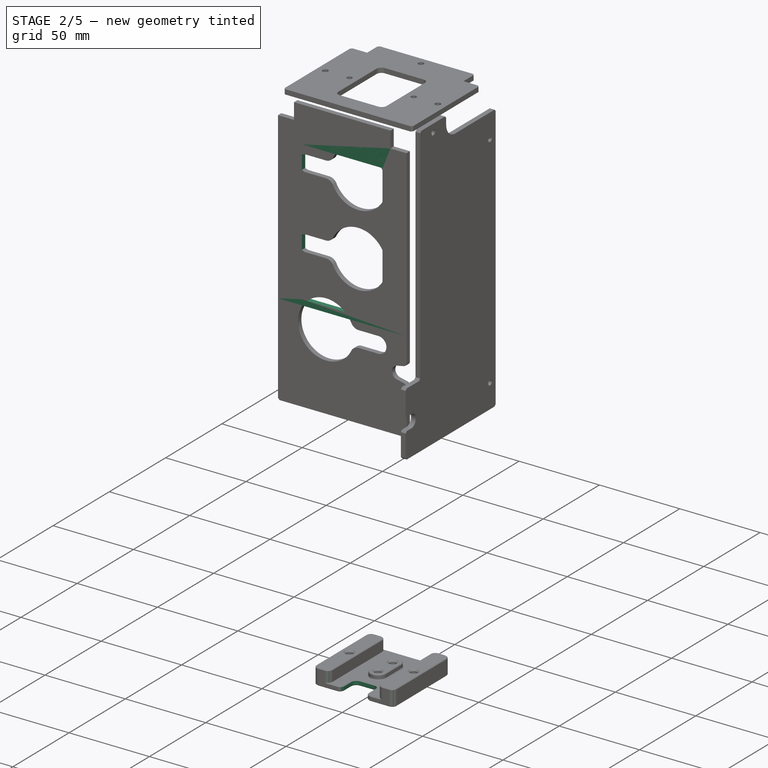
[diagram: stage 2 of 5 — iso view after this stage's code; geometry added in this stage tinted green]
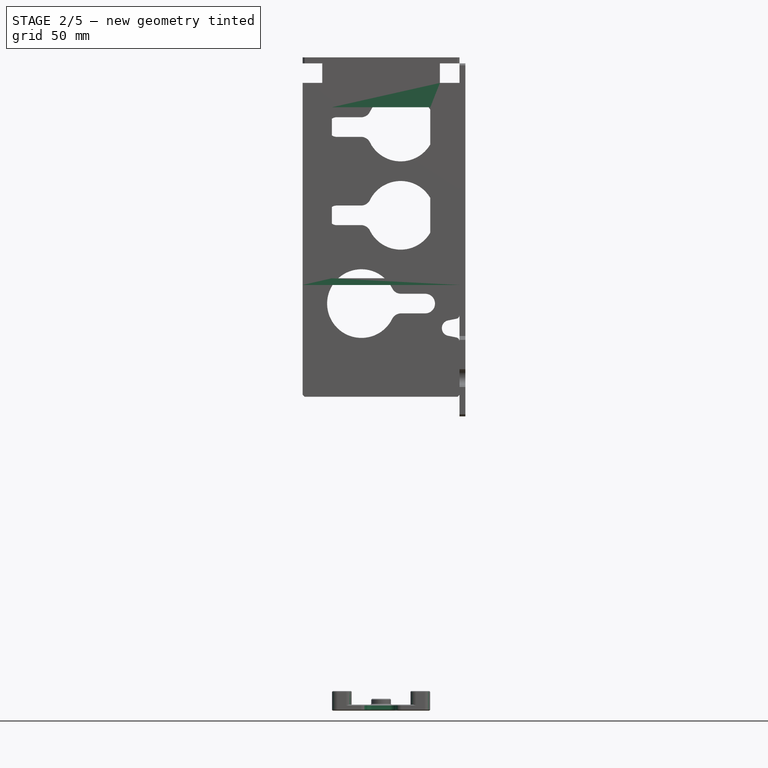
[diagram: stage 2 of 5 — front view after this stage's code; geometry added in this stage tinted green]
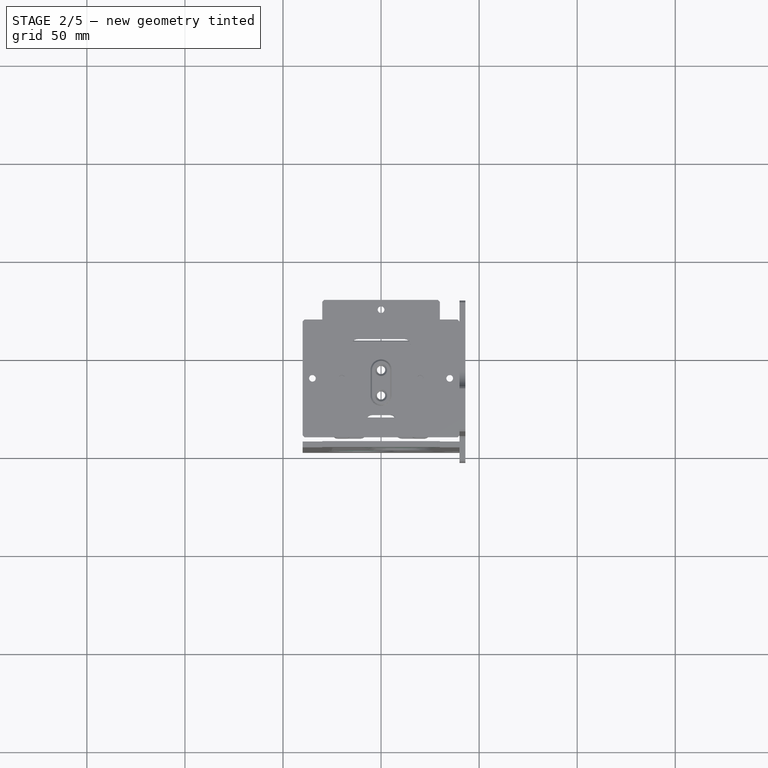
[diagram: stage 2 of 5 — top view after this stage's code; geometry added in this stage tinted green]
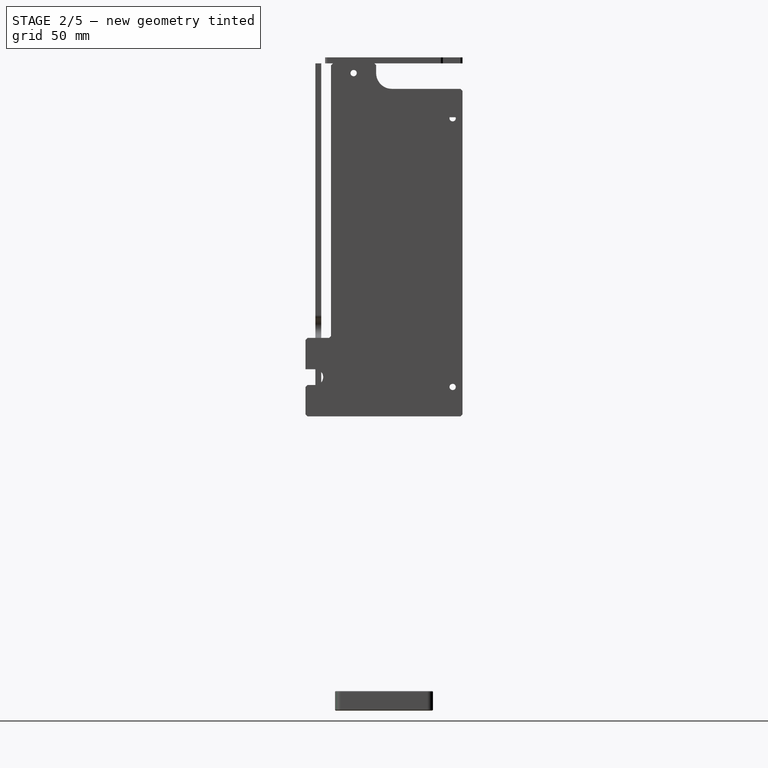
[diagram: stage 2 of 5 — right view after this stage's code; geometry added in this stage tinted green]
FEATURE [PartDesign::Body] Body073  label="CarterInf"
  AutoGroupSolids = false
  ClaimAllChildren = false
  ExportMode = 0
  Group = -> [Sketch153,Pad085,Chamfer056]
  InvalidShape = false
  Origin = -> Origin158
  SingleSolid = true
  Tip = -> Chamfer056
  TreeRank = 25
  ValidateShape = true
  _ExportChildren = -> [Pad085,Chamfer056]
  _GroupVersion = 1
FEATURE [TechDraw::DrawSVGTemplate] Template002
  Height = 210
  Orientation = 1
  TreeRank = 46
  Width = 297
FEATURE [TechDraw::DrawProjGroupItem] ProjItem002  label="Front002"
  CoarseView = false
  Direction = (0,0,1)
  Focus = 100
  HardHidden = false
  IsoCount = 0
  IsoHidden = false
  IsoVisible = false
  LockPosition = true
  Perspective = false
  Rotation = 0
  RotationVector = (-1,0,0)
  ScaleType = 2
  ScrubCount = 0
  SeamHidden = false
  SeamVisible = true
  SmoothHidden = false
  SmoothVisible = true
  TreeRank = 49
  Type = 0
  X = 0
  XDirection = (-1,0,0)
  Y = 0
FEATURE [TechDraw::DrawProjGroup] ProjGroup002
  Anchor = -> ProjItem002
  AutoDistribute = true
  LockPosition = false
  ProjectionType = 0
  Rotation = 0
  ScaleType = 0
  TreeRank = 50
  Views = -> [ProjItem002]
  X = 43.0339
  Y = 171.164
  spacingX = 15
  spacingY = 15
FEATURE [TechDraw::DrawPage] Page002  label="Laser3mmCarterTopUsb"
  KeepUpdated = true
  NextBalloonIndex = 1
  ProjectionType = 0
  Template = -> Template002
  TreeRank = 47
  Views = -> [ProjGroup002]
FEATURE [Sketcher::SketchObject] Unfold_Sketch
  ArcFitTolerance = 0
  ExternalBSplineMaxDegree = 0
  ExternalBSplineTolerance = 0
  FullyConstrained = false
  InternalTolerance = 1e-06
  InvalidShape = false
  MakeInternals = false
  TreeRank = 87
  ValidateShape = true
  sketch-geometry (15):
    g0: LineSegment StartX=-20 StartY=-87.4558 StartZ=0 EndX=-19 EndY=-88.4558 EndZ=0
    g1: LineSegment StartX=-1 StartY=-88.4558 StartZ=0 EndX=-19 EndY=-88.4558 EndZ=0
    g2: LineSegment StartX=4.9e-15 StartY=-87.4558 StartZ=0 EndX=-1 EndY=-88.4558 EndZ=0
    g3: LineSegment StartX=0 StartY=-75 StartZ=0 EndX=0 EndY=-87.4558 EndZ=0
    g4: LineSegment StartX=19 StartY=-75 StartZ=0 EndX=0 EndY=-75 EndZ=0
    g5: LineSegment StartX=19 StartY=-75 StartZ=0 EndX=20 EndY=-74 EndZ=0
    g6: LineSegment StartX=20 StartY=-61 StartZ=0 EndX=20 EndY=-74 EndZ=0
    g7: LineSegment StartX=19 StartY=-60 StartZ=0 EndX=20 EndY=-61 EndZ=0
    g8: LineSegment StartX=19 StartY=-60 StartZ=0 EndX=-10 EndY=-60 EndZ=0
    g9: ArcOfCircle CenterX=-10 CenterY=-70 CenterZ=0 NormalX=0 NormalY=0 NormalZ=1 AngleXU=0 Radius=10 StartAngle=1.5708 EndAngle=3.14159
    g10: LineSegment StartX=-20 StartY=-70 StartZ=0 EndX=-20 EndY=-87.4558 EndZ=0
    g11: Circle CenterX=-5 CenterY=-83.9558 CenterZ=0 NormalX=0 NormalY=0 NormalZ=1 AngleXU=1.5708 Radius=1.6
    g12: Circle CenterX=-13 CenterY=-83.9558 CenterZ=0 NormalX=0 NormalY=0 NormalZ=1 AngleXU=1.5708 Radius=1.6
    g13: Circle CenterX=10 CenterY=-70.5 CenterZ=0 NormalX=0 NormalY=0 NormalZ=-1 AngleXU=-1.5708 Radius=1.6
    g14: LineSegment StartX=-20 StartY=-76.7279 StartZ=0 EndX=0 EndY=-76.7279 EndZ=0
FEATURE [TechDraw::DrawSVGTemplate] Template003
  Height = 210
  Orientation = 1
  TreeRank = 89
  Width = 297
FEATURE [TechDraw::DrawProjGroupItem] ProjItem003  label="Front003"
  CoarseView = false
  Direction = (0,0,1)
  Focus = 100
  HardHidden = false
  IsoCount = 0
  IsoHidden = false
  IsoVisible = false
  LockPosition = true
  Perspective = false
  Rotation = 0
  RotationVector = (0,1,0)
  ScaleType = 2
  ScrubCount = 0
  SeamHidden = false
  SeamVisible = true
  SmoothHidden = false
  SmoothVisible = true
  Source = -> [Unfold_Sketch]
  TreeRank = 92
  Type = 0
  X = 0
  XDirection = (0,1,0)
  Y = 0
FEATURE [TechDraw::DrawProjGroup] ProjGroup003
  Anchor = -> ProjItem003
  AutoDistribute = true
  LockPosition = false
  ProjectionType = 0
  Rotation = 0
  ScaleType = 0
  Source = -> [Unfold_Sketch]
  TreeRank = 93
  Views = -> [ProjItem003]
  X = 15.4001
  Y = 188.736
  spacingX = 15
  spacingY = 15
FEATURE [TechDraw::DrawPage] Page003  label="Laser3mmAngleDrageChain"
  KeepUpdated = true
  NextBalloonIndex = 1
  ProjectionType = 0
  Template = -> Template003
  TreeRank = 90
  Views = -> [ProjGroup003]
FEATURE [TechDraw::DrawSVGTemplate] Template004
  Height = 210
  Orientation = 1
  TreeRank = 98
  Width = 297
FEATURE [TechDraw::DrawSVGTemplate] Template005
  Height = 210
  Orientation = 1
  TreeRank = 121
  Width = 297
FEATURE [TechDraw::DrawProjGroupItem] ProjItem005  label="Front005"
  CoarseView = false
  Direction = (1,0,0)
  Focus = 100
  HardHidden = false
  IsoCount = 0
  IsoHidden = false
  IsoVisible = false
  LockPosition = true
  Perspective = false
  Rotation = 0
  RotationVector = (0,-1,0)
  ScaleType = 2
  ScrubCount = 0
  SeamHidden = false
  SeamVisible = true
  SmoothHidden = false
  SmoothVisible = true
  TreeRank = 124
  Type = 0
  X = 0
  XDirection = (0,-1,0)
  Y = 0
FEATURE [TechDraw::DrawProjGroup] ProjGroup005
  Anchor = -> ProjItem005
  AutoDistribute = true
  LockPosition = false
  ProjectionType = 0
  Rotation = 0
  ScaleType = 0
  TreeRank = 125
  Views = -> [ProjItem005]
  X = 43.9241
  Y = 116.972
  spacingX = 15
  spacingY = 15
FEATURE [TechDraw::DrawPage] Page005  label="Laser3mmCarterLateralPompe"
  KeepUpdated = true
  NextBalloonIndex = 1
  ProjectionType = 0
  Template = -> Template005
  TreeRank = 122
  Views = -> [ProjGroup005]
FEATURE [TechDraw::DrawSVGTemplate] Template006
  Height = 210
  Orientation = 1
  TreeRank = 201
  Width = 297
FEATURE [TechDraw::DrawProjGroupItem] ProjItem006  label="Front006"
  CoarseView = false
  Direction = (0,0,1)
  Focus = 100
  HardHidden = false
  IsoCount = 0
  IsoHidden = false
  IsoVisible = false
  LockPosition = true
  Perspective = false
  Rotation = 0
  RotationVector = (0,1,0)
  ScaleType = 2
  ScrubCount = 0
  SeamHidden = false
  SeamVisible = true
  SmoothHidden = false
  SmoothVisible = true
  TreeRank = 204
  Type = 0
  X = 0
  XDirection = (0,1,0)
  Y = 0
FEATURE [TechDraw::DrawProjGroup] ProjGroup006
  Anchor = -> ProjItem006
  AutoDistribute = true
  LockPosition = false
  ProjectionType = 0
  Rotation = 0
  ScaleType = 0
  TreeRank = 205
  Views = -> [ProjItem006]
  X = 36.8036
  Y = 168.482
  spacingX = 15
  spacingY = 15
FEATURE [TechDraw::DrawPage] Page006  label="Laser3mmCarterTopUsbSD"
  KeepUpdated = true
  NextBalloonIndex = 1
  ProjectionType = 0
  Template = -> Template006
  TreeRank = 202
  Views = -> [ProjGroup006]
FEATURE [TechDraw::DrawSVGTemplate] Template007
  Height = 210
  Orientation = 1
  TreeRank = 226
  Width = 297
FEATURE [TechDraw::DrawProjGroupItem] ProjItem007  label="Front007"
  CoarseView = false
  Direction = (0,0,1)
  Focus = 100
  HardHidden = false
  IsoCount = 0
  IsoHidden = false
  IsoVisible = false
  LockPosition = true
  Perspective = false
  Rotation = 0
  RotationVector = (-1,0,0)
  ScaleType = 2
  ScrubCount = 0
  SeamHidden = false
  SeamVisible = true
  SmoothHidden = false
  SmoothVisible = true
  TreeRank = 229
  Type = 0
  X = 0
  XDirection = (-1,0,0)
  Y = 0
FEATURE [TechDraw::DrawProjGroup] ProjGroup007
  Anchor = -> ProjItem007
  AutoDistribute = true
  LockPosition = false
  ProjectionType = 0
  Rotation = 0
  ScaleType = 0
  TreeRank = 230
  Views = -> [ProjItem007]
  X = 41.8929
  Y = 172.232
  spacingX = 15
  spacingY = 15
FEATURE [TechDraw::DrawPage] Page007  label="Laser3mmCarterTopSD"
  KeepUpdated = true
  NextBalloonIndex = 1
  ProjectionType = 0
  Template = -> Template007
  TreeRank = 227
  Views = -> [ProjGroup007]
FEATURE [TechDraw::DrawSVGTemplate] Template008
  Height = 210
  Orientation = 1
  TreeRank = 253
  Width = 297
FEATURE [TechDraw::DrawProjGroupItem] ProjItem008  label="Front008"
  CoarseView = false
  Direction = (0,-1,0)
  Focus = 100
  HardHidden = false
  IsoCount = 0
  IsoHidden = false
  IsoVisible = false
  LockPosition = true
  Perspective = false
  Rotation = 0
  RotationVector = (1,0,0)
  ScaleType = 2
  ScrubCount = 0
  SeamHidden = false
  SeamVisible = true
  SmoothHidden = false
  SmoothVisible = true
  TreeRank = 256
  Type = 0
  X = 0
  XDirection = (1,0,0)
  Y = 0
FEATURE [TechDraw::DrawProjGroup] ProjGroup008
  Anchor = -> ProjItem008
  AutoDistribute = true
  LockPosition = false
  ProjectionType = 0
  Rotation = 0
  ScaleType = 0
  TreeRank = 257
  Views = -> [ProjItem008]
  X = 42.5187
  Y = 194.848
  spacingX = 15
  spacingY = 15
FEATURE [TechDraw::DrawPage] Page008  label="Laser3mmSupportPCA"
  KeepUpdated = true
  NextBalloonIndex = 1
  ProjectionType = 0
  Template = -> Template008
  TreeRank = 254
  Views = -> [ProjGroup008]
FEATURE [TechDraw::DrawSVGTemplate] Template009
  Height = 210
  Orientation = 1
  TreeRank = 259
  Width = 297
FEATURE [TechDraw::DrawProjGroupItem] ProjItem009  label="Front009"
  CoarseView = false
  Direction = (1,0,0)
  Focus = 100
  HardHidden = false
  IsoCount = 0
  IsoHidden = false
  IsoVisible = false
  LockPosition = true
  Perspective = false
  Rotation = 0
  RotationVector = (0,-1,0)
  ScaleType = 2
  ScrubCount = 0
  SeamHidden = false
  SeamVisible = true
  SmoothHidden = false
  SmoothVisible = true
  Source = -> [Chamfer056]
  TreeRank = 262
  Type = 0
  X = 0
  XDirection = (0,-1,0)
  Y = 0
FEATURE [TechDraw::DrawProjGroup] ProjGroup009
  Anchor = -> ProjItem009
  AutoDistribute = true
  LockPosition = false
  ProjectionType = 0
  Rotation = 0
  ScaleType = 0
  Source = -> [Chamfer056]
  TreeRank = 263
  Views = -> [ProjItem009]
  X = 44.2872
  Y = 137.178
  spacingX = 15
  spacingY = 15
FEATURE [TechDraw::DrawPage] Page009  label="Laser3mmCarterInfAscenseur"
  KeepUpdated = true
  NextBalloonIndex = 1
  ProjectionType = 0
  Template = -> Template009
  TreeRank = 260
  Views = -> [ProjGroup009]
FEATURE [TechDraw::DrawSVGTemplate] Template010
  Height = 210
  Orientation = 1
  TreeRank = 309
  Width = 297
FEATURE [TechDraw::DrawProjGroupItem] ProjItem010  label="Front010"
  CoarseView = false
  Direction = (0,0,-1)
  Focus = 100
  HardHidden = false
  IsoCount = 0
  IsoHidden = false
  IsoVisible = false
  LockPosition = true
  Perspective = false
  Rotation = 0
  RotationVector = (1,0,0)
  ScaleType = 2
  ScrubCount = 0
  SeamHidden = false
  SeamVisible = true
  SmoothHidden = false
  SmoothVisible = true
  TreeRank = 312
  Type = 0
  X = 0
  XDirection = (1,0,0)
  Y = 0
FEATURE [TechDraw::DrawProjGroup] ProjGroup010
  Anchor = -> ProjItem010
  AutoDistribute = true
  LockPosition = false
  ProjectionType = 0
  Rotation = 0
  ScaleType = 0
  TreeRank = 313
  Views = -> [ProjItem010]
  X = 42.7636
  Y = 129.987
  spacingX = 15
  spacingY = 15
FEATURE [TechDraw::DrawProjGroupItem] ProjItem011  label="Front011"
  CoarseView = false
  Direction = (0,0,-1)
  Focus = 100
  HardHidden = false
  IsoCount = 0
  IsoHidden = false
  IsoVisible = false
  LockPosition = true
  Perspective = false
  Rotation = 0
  RotationVector = (1,0,0)
  ScaleType = 2
  ScrubCount = 0
  SeamHidden = false
  SeamVisible = true
  SmoothHidden = false
  SmoothVisible = true
  TreeRank = 315
  Type = 0
  X = 0
  XDirection = (1,0,0)
  Y = 0
FEATURE [TechDraw::DrawProjGroup] ProjGroup011
  Anchor = -> ProjItem011
  AutoDistribute = true
  LockPosition = false
  ProjectionType = 0
  Rotation = 0
  ScaleType = 0
  TreeRank = 316
  Views = -> [ProjItem011]
  X = 41.951
  Y = 173.713
  spacingX = 15
  spacingY = 15
FEATURE [TechDraw::DrawPage] Page010  label="Laser3mmCarterTopLED"
  KeepUpdated = true
  NextBalloonIndex = 1
  ProjectionType = 0
  Template = -> Template010
  TreeRank = 310
  Views = -> [ProjGroup010,ProjGroup011]
FEATURE [TechDraw::DrawSVGTemplate] Template011
  Height = 210
  Orientation = 1
  TreeRank = 318
  Width = 297
FEATURE [TechDraw::DrawProjGroupItem] ProjItem012  label="Front012"
  CoarseView = false
  Direction = (0,0,1)
  Focus = 100
  HardHidden = false
  IsoCount = 0
  IsoHidden = false
  IsoVisible = false
  LockPosition = true
  Perspective = false
  Rotation = 0
  RotationVector = (0,1,0)
  ScaleType = 2
  ScrubCount = 0
  SeamHidden = false
  SeamVisible = true
  SmoothHidden = false
  SmoothVisible = true
  TreeRank = 321
  Type = 0
  X = 0
  XDirection = (0,1,0)
  Y = 0
FEATURE [TechDraw::DrawProjGroup] ProjGroup012
  Anchor = -> ProjItem012
  AutoDistribute = true
  LockPosition = false
  ProjectionType = 0
  Rotation = 0
  ScaleType = 0
  TreeRank = 322
  Views = -> [ProjItem012]
  X = 18.7926
  Y = 184.582
  spacingX = 15
  spacingY = 15
FEATURE [TechDraw::DrawPage] Page011  label="Laser3mmTopLED"
  KeepUpdated = true
  NextBalloonIndex = 1
  ProjectionType = 0
  Template = -> Template011
  TreeRank = 319
  Views = -> [ProjGroup012]
FEATURE [TechDraw::DrawSVGTemplate] Template013
  Height = 210
  Orientation = 1
  TreeRank = 375
  Width = 297
FEATURE [TechDraw::DrawProjGroupItem] ProjItem014  label="Front014"
  CoarseView = false
  Direction = (0,1,0)
  Focus = 100
  HardHidden = false
  IsoCount = 0
  IsoHidden = false
  IsoVisible = false
  LockPosition = true
  Perspective = false
  Rotation = 90
  RotationVector = (1,0,0)
  ScaleType = 2
  ScrubCount = 0
  SeamHidden = false
  SeamVisible = true
  SmoothHidden = false
  SmoothVisible = true
  TreeRank = 378
  Type = 0
  X = 0
  XDirection = (1,0,0)
  Y = 0
FEATURE [TechDraw::DrawProjGroup] ProjGroup014
  Anchor = -> ProjItem014
  AutoDistribute = true
  LockPosition = false
  ProjectionType = 0
  Rotation = 0
  ScaleType = 0
  TreeRank = 379
  Views = -> [ProjItem014]
  X = 104.72
  Y = 165.172
  spacingX = 15
  spacingY = 15
FEATURE [TechDraw::DrawPage] Page013  label="Laser3mmCarterSide"
  KeepUpdated = true
  NextBalloonIndex = 1
  ProjectionType = 0
  Template = -> Template013
  TreeRank = 376
  Views = -> [ProjGroup014]
FEATURE [Sketcher::SketchObject] Sketch183
  ArcFitTolerance = 0
  AttachmentSupport = -> [XZ_Plane106]
  ExternalBSplineMaxDegree = 0
  ExternalBSplineTolerance = 0
  FullyConstrained = true
  InternalTolerance = 1e-06
  InvalidShape = false
  MakeInternals = false
  MapMode = 5
  Placement = pos=(0,0,0) rot=(0,0.707107,0.707107;3.14159rad)
  Support = -> [XZ_Plane106]
  TreeRank = 115
  ValidateShape = true
  sketch-geometry (8):
    g0: LineSegment StartX=-40 StartY=310 StartZ=0 EndX=-30 EndY=310 EndZ=0
    g1: LineSegment StartX=-30 StartY=310 StartZ=0 EndX=-30 EndY=320 EndZ=0
    g2: LineSegment StartX=-30 StartY=320 StartZ=0 EndX=30 EndY=320 EndZ=0
    g3: LineSegment StartX=40 StartY=310 StartZ=0 EndX=40 EndY=207 EndZ=0
    g4: LineSegment StartX=40 StartY=207 StartZ=0 EndX=-40 EndY=207 EndZ=0
    g5: LineSegment StartX=-40 StartY=207 StartZ=0 EndX=-40 EndY=310 EndZ=0
    g6: LineSegment StartX=30 StartY=320 StartZ=0 EndX=30 EndY=310 EndZ=0
    g7: LineSegment StartX=30 StartY=310 StartZ=0 EndX=40 EndY=310 EndZ=0
  constraints (22):
    c: Horizontal(g0)
    c: Coincident(g0,g1)
    c: Vertical(g1)
    c: Coincident(g1,g2)
    c: Vertical(g3)
    c: Coincident(g3,g4)
    c: Horizontal(g4)
    c: Coincident(g4,g5)
    c: Coincident(g5,g0)
    c: Vertical(g5)
    c: Equal(g0,g1)
    c: DistanceY(g1,g1) = 10
    c: Symmetric(g1,g2,g-2)
    c: DistanceX(g2,g2) = 60
    c: DistanceY(g2) = 320
    c: Symmetric(g3,g0,g-2)
    c: DistanceY(g3,g2) = 113
    c: Coincident(g6,g2)
    c: Vertical(g6)
    c: Coincident(g7,g6)
    c: Coincident(g7,g3)
    c: Horizontal(g7)
FEATURE [PartDesign::Pad] Pad098
  AddSubType = 0
  AlongSketchNormal = false
  AutoTaperInnerAngle = false
  CheckUpToFaceLimits = true
  ClaimChildren = false
  Direction = (0,1,2e-16)
  Fit = 0
  FitJoin = 0
  InnerFit = 0
  InnerFitJoin = 0
  InvalidShape = false
  Length = 3
  Length2 = 100
  Linearize = true
  NewSolid = false
  Profile = -> Sketch183
  Refine = true
  Suppress = false
  TaperInnerAngle = 0
  TaperInnerAngleRev = 0
  TreeRank = 116
  Type = 0
  ValidateShape = true
  _ProfileBasedVersion = 1
FEATURE [Sketcher::SketchObject] Sketch184
  ArcFitTolerance = 0
  AttachmentSupport = -> [XZ_Plane106]
  ExternalBSplineMaxDegree = 0
  ExternalBSplineTolerance = 0
  ExternalGeometry = -> [Pad098]
  FullyConstrained = true
  InternalTolerance = 1e-06
  InvalidShape = false
  MakeInternals = false
  MapMode = 5
  Placement = pos=(0,0,0) rot=(0,0.707107,0.707107;3.14159rad)
  Support = -> [XZ_Plane106]
  TreeRank = 117
  ValidateShape = true
  sketch-geometry (16):
    g0: ArcOfCircle CenterX=-40 CenterY=290 CenterZ=0 NormalX=0 NormalY=0 NormalZ=1 AngleXU=0 Radius=4 StartAngle=1.5708 EndAngle=4.71239
    g1: ArcOfCircle CenterX=-35 CenterY=290 CenterZ=0 NormalX=0 NormalY=0 NormalZ=1 AngleXU=0 Radius=4 StartAngle=4.71239 EndAngle=7.85398
    g2: LineSegment StartX=-40 StartY=286 StartZ=0 EndX=-35 EndY=286 EndZ=0
    g3: LineSegment StartX=-35 StartY=294 StartZ=0 EndX=-40 EndY=294 EndZ=0
    g4: ArcOfCircle CenterX=-40 CenterY=227 CenterZ=0 NormalX=0 NormalY=0 NormalZ=1 AngleXU=0 Radius=4 StartAngle=1.5708 EndAngle=4.71239
    g5: ArcOfCircle CenterX=-35 CenterY=227 CenterZ=0 NormalX=0 NormalY=0 NormalZ=1 AngleXU=0 Radius=4 StartAngle=4.71239 EndAngle=7.85398
    g6: LineSegment StartX=-40 StartY=223 StartZ=0 EndX=-35 EndY=223 EndZ=0
    g7: LineSegment StartX=-35 StartY=231 StartZ=0 EndX=-40 EndY=231 EndZ=0
    g8: ArcOfCircle CenterX=40 CenterY=227 CenterZ=0 NormalX=0 NormalY=0 NormalZ=1 AngleXU=0 Radius=4 StartAngle=4.71239 EndAngle=7.85398
    g9: ArcOfCircle CenterX=35 CenterY=227 CenterZ=0 NormalX=0 NormalY=0 NormalZ=1 AngleXU=0 Radius=4 StartAngle=1.5708 EndAngle=4.71239
    g10: LineSegment StartX=40 StartY=231 StartZ=0 EndX=35 EndY=231 EndZ=0
    g11: LineSegment StartX=35 StartY=223 StartZ=0 EndX=40 EndY=223 EndZ=0
    g12: ArcOfCircle CenterX=40 CenterY=290 CenterZ=0 NormalX=0 NormalY=0 NormalZ=1 AngleXU=0 Radius=4 StartAngle=4.71239 EndAngle=7.85398
    g13: ArcOfCircle CenterX=35 CenterY=290 CenterZ=0 NormalX=0 NormalY=0 NormalZ=1 AngleXU=0 Radius=4 StartAngle=1.5708 EndAngle=4.71239
    g14: LineSegment StartX=40 StartY=294 StartZ=0 EndX=35 EndY=294 EndZ=0
    g15: LineSegment StartX=35 StartY=286 StartZ=0 EndX=40 EndY=286 EndZ=0
  constraints (40):
    c: Tangent(g0,g2) = -1.5708
    c: Tangent(g2,g1) = -1.5708
    c: Tangent(g1,g3) = -1.5708
    c: Tangent(g3,g0) = -1.5708
    c: Equal(g0,g1)
    c: Tangent(g4,g6) = -1.5708
    c: Tangent(g6,g5) = -1.5708
    c: Tangent(g5,g7) = -1.5708
    c: Tangent(g7,g4) = -1.5708
    c: Equal(g4,g5)
    c: Tangent(g8,g10) = -1.5708
    c: Tangent(g10,g9) = -1.5708
    c: Tangent(g9,g11) = -1.5708
    c: Tangent(g11,g8) = -1.5708
    c: Equal(g8,g9)
    c: Tangent(g12,g14) = -1.5708
    c: Tangent(g14,g13) = -1.5708
    c: Tangent(g13,g15) = -1.5708
    c: Tangent(g15,g12) = -1.5708
    c: Equal(g12,g13)
    c: Horizontal(g0,g1)
    c: Horizontal(g13,g12)
    c: Horizontal(g13,g1)
    c: Horizontal(g8,g9)
    c: Horizontal(g9,g5)
    c: Horizontal(g5,g4)
    c: Equal(g9,g5)
    c: Equal(g5,g1)
    c: Equal(g1,g13)
    c: Equal(g15,g2)
    c: Equal(g2,g7)
    c: Equal(g7,g10)
    c: PointOnObject(g12,g-4)
    c: PointOnObject(g0,g-3)
    c: PointOnObject(g4,g-3)
    c: PointOnObject(g8,g-4)
    c: DistanceX(g13,g12) = 5
    c: Radius(g13) = 4
    c: DistanceY(g12,g-4) = 20
    c: DistanceY(g-4,g8) = 20
FEATURE [PartDesign::Pocket] Pocket028
  AddSubType = 1
  AutoTaperInnerAngle = false
  BaseFeature = -> Pad098
  CheckUpToFaceLimits = true
  ClaimChildren = false
  Direction = (0,-1,-2e-16)
  Fit = 0
  FitJoin = 0
  InnerFit = 0
  InnerFitJoin = 0
  InvalidShape = false
  Length = 5
  Length2 = 100
  Linearize = true
  NewSolid = false
  Profile = -> Sketch184
  Refine = true
  Reversed = true
  Suppress = false
  TaperInnerAngle = 0
  TaperInnerAngleRev = 0
  TreeRank = 118
  Type = 1
  ValidateShape = true
  _ProfileBasedVersion = 1
  _Version = 1
FEATURE [Sketcher::SketchObject] Sketch185
  ArcFitTolerance = 1e-06
  AttachmentSupport = -> [Pocket028]
  ExternalBSplineMaxDegree = 0
  ExternalBSplineTolerance = 0
  ExternalGeometry = -> [Pocket028]
  FullyConstrained = true
  InternalTolerance = 1e-06
  InvalidShape = false
  MakeInternals = false
  MapMode = 5
  Placement = pos=(0,3,0) rot=(0,0.707107,0.707107;3.14159rad)
  Support = -> [Pocket028]
  TreeRank = 350
  ValidateShape = true
  sketch-geometry (13):
    g0: LineSegment StartX=25 StartY=221.4 StartZ=0 EndX=-25 EndY=221.4 EndZ=0
    g1: LineSegment StartX=-25 StartY=221.4 StartZ=0 EndX=-25 EndY=290.6 EndZ=0
    g2: LineSegment StartX=-25 StartY=290.6 StartZ=0 EndX=25 EndY=290.6 EndZ=0
    g3: LineSegment StartX=25 StartY=290.6 StartZ=0 EndX=25 EndY=221.4 EndZ=0
    g4: LineSegment [constr] StartX=-25 StartY=211 StartZ=0 EndX=-25 EndY=297 EndZ=0
    g5: LineSegment [constr] StartX=-25 StartY=297 StartZ=0 EndX=25 EndY=297 EndZ=0
    g6: LineSegment [constr] StartX=25 StartY=297 StartZ=0 EndX=25 EndY=211 EndZ=0
    g7: Circle CenterX=22 CenterY=217.92 CenterZ=0 NormalX=0 NormalY=0 NormalZ=1 AngleXU=0 Radius=1.6
    g8: Circle CenterX=-22 CenterY=217.92 CenterZ=0 NormalX=0 NormalY=0 NormalZ=1 AngleXU=0 Radius=1.6
    g9: LineSegment [constr] StartX=0 StartY=290.6 StartZ=0 EndX=0 EndY=221.4 EndZ=0
    g10: LineSegment [constr] StartX=-25 StartY=211 StartZ=0 EndX=25 EndY=211 EndZ=0
    g11: Circle CenterX=-22 CenterY=294 CenterZ=0 NormalX=0 NormalY=0 NormalZ=1 AngleXU=0 Radius=1.6
    g12: Circle CenterX=22 CenterY=294 CenterZ=0 NormalX=0 NormalY=0 NormalZ=1 AngleXU=0 Radius=1.6
  constraints (36):
    c: Coincident(g0,g1)
    c: Coincident(g1,g2)
    c: Coincident(g2,g3)
    c: Coincident(g3,g0)
    c: Horizontal(g0)
    c: Horizontal(g2)
    c: Vertical(g1)
    c: Vertical(g3)
    c: Coincident(g4,g5)
    c: Coincident(g5,g6)
    c: Horizontal(g5)
    c: Vertical(g4)
    c: Vertical(g6)
    c: DistanceX(g4,g6) = 50
    c: DistanceY(g3,g3) = 69.2
    c: DistanceX(g0,g0) = 50
    c: Equal(g8,g7)
    c: Diameter(g8) = 3.2
    c: PointOnObject(g9,g0)
    c: Symmetric(g1,g2,g9)
    c: Horizontal(g10)
    c: DistanceY(g10,g7) = 6.92
    c: Symmetric(g7,g8,g9)
    c: DistanceX(g7,g10) = 3
    c: DistanceY(g10,g0) = 10.4
    c: Coincident(g4,g10)
    c: Coincident(g6,g10)
    c: Equal(g8,g11)
    c: Equal(g11,g12)
    c: Symmetric(g11,g12,g9)
    c: Vertical(g12,g7)
    c: Symmetric(g6,g4,g9)
    c: DistanceY(g6,g5) = 86
    c: DistanceY(g12,g5) = 3
    c: PointOnObject(g9,g-2)
    c: DistanceY(g-3,g6) = 4
FEATURE [PartDesign::Pocket] Pocket029
  AddSubType = 1
  AutoTaperInnerAngle = false
  CheckUpToFaceLimits = true
  ClaimChildren = false
  Direction = (0,-1,2e-16)
  Fit = 0
  FitJoin = 0
  InnerFit = 0
  InnerFitJoin = 0
  InvalidShape = false
  Length = 5
  Length2 = 100
  Linearize = true
  NewSolid = false
  Profile = -> Sketch185
  Refine = true
  Suppress = false
  TaperInnerAngle = 0
  TaperInnerAngleRev = 0
  TreeRank = 351
  Type = 1
  ValidateShape = true
  _ProfileBasedVersion = 1
  _Version = 1
FEATURE [PartDesign::Body] Body092  label="CarterLedDiffusant"
  AutoGroupSolids = false
  ClaimAllChildren = false
  ExportMode = 0
  FixShape = 1
  Group = -> [Binder,Sketch207,Pad107,Sketch208,Pad108]
  InvalidShape = false
  Origin = -> Origin183
  SingleSolid = true
  Tip = -> Pad108
  TreeRank = 536
  ValidateShape = false
  _ExportChildren = -> [Binder,Pad107,Pad108]
  _GroupVersion = 1
FEATURE [App::Part] Part011  label="EnsembleCarterIHM-V2"
  ClaimAllChildren = false
  ExportMode = 1
  Group = -> [Link028,Link029,Part012,Body091,Body092]
  Origin = -> Origin180
  TreeRank = 495
  _ExportChildren = -> [Link028,Link029,Part012,Body091,Body092]
  _GroupVersion = 1
FEATURE [TechDraw::DrawSVGTemplate] Template016
  Height = 210
  Orientation = 1
  Template = <path>
  TreeRank = 543
  Width = 297
FEATURE [TechDraw::DrawProjGroupItem] ProjItem017  label="Front017"
  CoarseView = false
  Direction = (0,0,1)
  Focus = 100
  HardHidden = false
  IsoCount = 0
  IsoHidden = false
  IsoVisible = false
  LockPosition = true
  Perspective = false
  Rotation = 0
  RotationVector = (-1,0,0)
  ScaleType = 2
  ScrubCount = 0
  SeamHidden = false
  SeamVisible = true
  SmoothHidden = false
  SmoothVisible = true
  Source = -> [Pad108]
  TreeRank = 546
  Type = 0
  X = 0
  XDirection = (-1,0,0)
  Y = 0
FEATURE [TechDraw::DrawProjGroup] ProjGroup017
  Anchor = -> ProjItem017
  AutoDistribute = true
  LockPosition = false
  ProjectionType = 0
  Rotation = 0
  ScaleType = 0
  Source = -> [Pad108]
  TreeRank = 547
  Views = -> [ProjItem017]
  X = 16.3129
  Y = 184.847
  spacingX = 15
  spacingY = 15
FEATURE [TechDraw::DrawPage] Page016  label="Laser3mm(Lamage)DiffuseurLed"
  KeepUpdated = true
  NextBalloonIndex = 1
  ProjectionType = 0
  Template = -> Template016
  TreeRank = 554
  Views = -> [ProjGroup017]
FEATURE [TechDraw::DrawSVGTemplate] Template017
  Height = 210
  Orientation = 1
  Template = <path>
  TreeRank = 549
  Width = 297
FEATURE [TechDraw::DrawProjGroupItem] ProjItem018  label="Front018"
  CoarseView = false
  Direction = (0,0,1)
  Focus = 100
  HardHidden = false
  IsoCount = 0
  IsoHidden = false
  IsoVisible = false
  LockPosition = true
  Perspective = false
  Rotation = 0
  RotationVector = (-1,0,0)
  ScaleType = 2
  ScrubCount = 0
  SeamHidden = false
  SeamVisible = true
  SmoothHidden = false
  SmoothVisible = true
  Source = -> [Pocket042]
  TreeRank = 552
  Type = 0
  X = 0
  XDirection = (-1,0,0)
  Y = 0
FEATURE [TechDraw::DrawProjGroup] ProjGroup018
  Anchor = -> ProjItem018
  AutoDistribute = true
  LockPosition = false
  ProjectionType = 0
  Rotation = 0
  ScaleType = 0
  Source = -> [Pocket042]
  TreeRank = 551
  Views = -> [ProjItem018]
  X = 44.1193
  Y = 171.847
  spacingX = 15
  spacingY = 15
FEATURE [TechDraw::DrawPage] Page017  label="Laser3mmCarterIHM-V2"
  KeepUpdated = true
  NextBalloonIndex = 1
  ProjectionType = 0
  Template = -> Template017
  TreeRank = 555
  Views = -> [ProjGroup018]
FEATURE [Part::Feature] Solid  label="2.8 LCD TFT Module - Without Glass"
  FixShape = 1
  InvalidShape = false
  TreeRank = 580
  ValidateShape = false
  shape: bbox 50.16 x 85.92 x 10.69 mm, 1917 faces (baked)
FEATURE [Part::Feature] Solid001  label="5035000993"
  FixShape = 1
  InvalidShape = false
  Placement = pos=(3.55645,-3.30468,-2.85) rot=(0.707107,0.707107,0;3.14159rad)
  TreeRank = 581
  ValidateShape = false
  shape: bbox 21.53 x 28.61 x 2.96 mm, 602 faces (baked)
FEATURE [Part::Feature] Solid002  label="0603 Resistor"
  FixShape = 1
  InvalidShape = false
  Placement = pos=(-2.2311,-3.165,0.00254) rot=(0,1,0;3.14159rad)
  TreeRank = 582
  ValidateShape = false
  shape: bbox 1.617 x 0.8669 x 0.4669 mm, 38 faces (baked)
FEATURE [Part::Feature] Solid003  label="0603 Capacitor"
  FixShape = 1
  InvalidShape = false
  Placement = pos=(-14.5217,25.6289,0.00254) rot=(1,0,0;3.14159rad)
  TreeRank = 583
  ValidateShape = false
  shape: bbox 1.6 x 0.8382 x 0.8382 mm, 24 faces (baked)
FEATURE [App::Link] Link030  label="0603 Capacitor"
  AutoLinkLabel = true
  AutoPlacement = true
  LinkPlacement = pos=(-2.48397,19.738,0.00254) rot=(0,1,0;3.14159rad)
  LinkedObject = -> Solid003
  Placement = pos=(-2.48397,19.738,0.00254) rot=(0,1,0;3.14159rad)
  SyncGroupVisibility = false
  TreeRank = 584
  _LinkVersion = 1
FEATURE [App::Link] Link031  label="0603 Resistor"
  AutoLinkLabel = true
  AutoPlacement = true
  LinkPlacement = pos=(-3.87947,-4.76172,0.00254) rot=(1,0,0;3.14159rad)
  LinkedObject = -> Solid002
  Placement = pos=(-3.87947,-4.76172,0.00254) rot=(1,0,0;3.14159rad)
  SyncGroupVisibility = false
  TreeRank = 585
  _LinkVersion = 1
FEATURE [App::Link] Link032  label="0603 Resistor"
  AutoLinkLabel = true
  AutoPlacement = true
  LinkPlacement = pos=(-2.33553,-0.993585,0.00254) rot=(0,1,0;3.14159rad)
  LinkedObject = -> Solid002
  Placement = pos=(-2.33553,-0.993585,0.00254) rot=(0,1,0;3.14159rad)
  SyncGroupVisibility = false
  TreeRank = 586
  _LinkVersion = 1
FEATURE [App::Link] Link033  label="0603 Resistor"
  AutoLinkLabel = true
  AutoPlacement = true
  LinkPlacement = pos=(-12.9341,26.6747,0.00254) rot=(0,1,0;3.14159rad)
  LinkedObject = -> Solid002
  Placement = pos=(-12.9341,26.6747,0.00254) rot=(0,1,0;3.14159rad)
  SyncGroupVisibility = false
  TreeRank = 587
  _LinkVersion = 1
FEATURE [App::Link] Link034  label="0603 Resistor"
  AutoLinkLabel = true
  AutoPlacement = true
  LinkPlacement = pos=(4.53383,19.5922,0.00254) rot=(0,1,0;3.14159rad)
  LinkedObject = -> Solid002
  Placement = pos=(4.53383,19.5922,0.00254) rot=(0,1,0;3.14159rad)
  SyncGroupVisibility = false
  TreeRank = 588
  _LinkVersion = 1
FEATURE [App::Link] Link035  label="0603 Resistor"
  AutoLinkLabel = true
  AutoPlacement = true
  LinkPlacement = pos=(4.38027,26.5372,0.00254) rot=(0,1,0;3.14159rad)
  LinkedObject = -> Solid002
  Placement = pos=(4.38027,26.5372,0.00254) rot=(0,1,0;3.14159rad)
  SyncGroupVisibility = false
  TreeRank = 589
  _LinkVersion = 1
FEATURE [Part::Feature] Solid004  label="SOT23-3"
  FixShape = 1
  InvalidShape = false
  Placement = pos=(3.6167,23.9432,0.105) rot=(0.70831,0.705902,0;3.14159rad)
  TreeRank = 590
  ValidateShape = false
  shape: bbox 3.014 x 2.849 x 1.193 mm, 52 faces (baked)
FEATURE [App::Link] Link036  label="SOT23-3"
  AutoLinkLabel = true
  AutoPlacement = true
  LinkPlacement = pos=(-3.37348,23.944,0.105) rot=(0.999996,-0.002749,0;3.14159rad)
  LinkedObject = -> Solid004
  Placement = pos=(-3.37348,23.944,0.105) rot=(0.999996,-0.002749,0;3.14159rad)
  SyncGroupVisibility = false
  TreeRank = 591
  _LinkVersion = 1
FEATURE [Part::Feature] Compound  label="2.8in TFT(Without Glass)- Tucked Cable"
  FixShape = 1
  InvalidShape = false
  Placement = pos=(-0.0570641,-2.2987,1.6256) rot=(0,0,1;3.14159rad)
  TreeRank = 592
  ValidateShape = false
  shape: bbox 50.13 x 69.5 x 2.736 mm, 295 faces, 4 solids (baked)
FEATURE [App::Part] Part014  label="2.8 TFT Module"
  ClaimAllChildren = false
  ExportMode = 1
  Group = -> [Solid,Solid001,Solid002,Solid003,Link030,Link031,Link032,Link033,Link034,Link035,Solid004,Link036,Compound]
  Origin = -> Origin185
  Placement = pos=(0,78,254.1) rot=(-1,0,0;1.5708rad)
  TreeRank = 594
  _ExportChildren = -> [Solid,Solid001,Solid002,Solid003,Link030,Link031,Link032,Link033,Link034,Link035,Solid004,Link036,Compound]
  _GroupVersion = 1
FEATURE [Sketcher::SketchObject] Sketch209
  ArcFitTolerance = 1e-06
  AttachmentSupport = -> [Pocket029]
  ExternalBSplineMaxDegree = 5
  ExternalBSplineTolerance = 0.0001
  ExternalGeometry = -> [Pocket029]
  FixShape = 1
  FullyConstrained = true
  InternalTolerance = 1e-06
  InvalidShape = false
  MakeInternals = false
  MapMode = 5
  Placement = pos=(0,3,0) rot=(0,0.707107,0.707107;3.14159rad)
  Support = -> [Pocket029]
  TreeRank = 595
  ValidateShape = false
  sketch-geometry (4):
    g0: LineSegment StartX=-25.1 StartY=297.6 StartZ=0 EndX=25.1 EndY=297.6 EndZ=0
    g1: LineSegment StartX=25.1 StartY=297.6 StartZ=0 EndX=25.1 EndY=210.4 EndZ=0
    g2: LineSegment StartX=25.1 StartY=210.4 StartZ=0 EndX=-25.1 EndY=210.4 EndZ=0
    g3: LineSegment StartX=-25.1 StartY=210.4 StartZ=0 EndX=-25.1 EndY=297.6 EndZ=0
  constraints (12):
    c: Coincident(g0,g1)
    c: Coincident(g1,g2)
    c: Coincident(g2,g3)
    c: Coincident(g3,g0)
    c: Horizontal(g0)
    c: Horizontal(g2)
    c: Vertical(g1)
    c: Vertical(g3)
    c: DistanceX(g-4,g0) = 0.1
    c: DistanceX(g0,g-3) = 0.1
    c: DistanceY(g-4,g0) = 7
    c: DistanceY(g2,g-3) = 11
FEATURE [PartDesign::Pocket] Pocket043
  AddSubType = 1
  AlongSketchNormal = false
  AutoTaperInnerAngle = true
  BaseFeature = -> Pocket029
  CheckUpToFaceLimits = true
  ClaimChildren = false
  Direction = (0,-1,2e-16)
  Fit = 0
  FitJoin = 0
  FixShape = 1
  InnerFit = 0
  InnerFitJoin = 0
  InvalidShape = false
  Length = 5
  Length2 = 10
  Linearize = true
  NewSolid = false
  Profile = -> Sketch209
  ReferenceAxis = -> Sketch209 [N_Axis]
  Refine = true
  Suppress = false
  TaperInnerAngle = 0
  TaperInnerAngleRev = 0
  TreeRank = 596
  Type = 0
  ValidateShape = false
  _ProfileBasedVersion = 1
  _Version = 1
FEATURE [Sketcher::SketchObject] Sketch224
  ArcFitTolerance = 1e-06
  AttachmentSupport = -> [Pocket051]
  ExternalBSplineMaxDegree = 5
  ExternalBSplineTolerance = 0.0001
  ExternalGeometry = -> [Pocket051]
  FixShape = 1
  FullyConstrained = true
  InternalTolerance = 1e-06
  InvalidShape = false
  MakeInternals = false
  MapMode = 5
  Placement = pos=(0,-1.6e-15,-7) rot=(0,0,1;0rad)
  Support = -> [Pocket051]
  TreeRank = 704
  ValidateShape = false
  sketch-geometry (5):
    g0: LineSegment StartX=-7.5 StartY=22 StartZ=0 EndX=-7.5 EndY=10 EndZ=0
    g1: LineSegment StartX=-7.5 StartY=10 StartZ=0 EndX=7.5 EndY=10 EndZ=0
    g2: LineSegment StartX=7.5 StartY=10 StartZ=0 EndX=7.5 EndY=22 EndZ=0
    g3: LineSegment StartX=7.5 StartY=22 StartZ=0 EndX=-7.5 EndY=22 EndZ=0
    g4: GeomPoint [constr] X=0 Y=16 Z=0
  constraints (13):
    c: Coincident(g0,g1)
    c: Coincident(g1,g2)
    c: Coincident(g2,g3)
    c: Coincident(g3,g0)
    c: Horizontal(g1)
    c: Horizontal(g3)
    c: Vertical(g0)
    c: Vertical(g2)
    c: Symmetric(g1,g0,g4)
    c: PointOnObject(g4,g-2)
    c: PointOnObject(g1,g-3)
    c: DistanceX(g3,g3) = 15
    c: DistanceY(g2,g2) = 12
FEATURE [PartDesign::Pocket] Pocket052
  AddSubType = 1
  AlongSketchNormal = false
  AutoTaperInnerAngle = true
  BaseFeature = -> Pocket051
  CheckUpToFaceLimits = true
  ClaimChildren = false
  Direction = (0,-2e-16,-1)
  Fit = 0
  FitJoin = 0
  FixShape = 1
  InnerFit = 0
  InnerFitJoin = 0
  InvalidShape = false
  Length = 5
  Length2 = 10
  Linearize = true
  NewSolid = false
  Profile = -> Sketch224
  ReferenceAxis = -> Sketch224 [N_Axis]
  Refine = true
  Suppress = false
  TaperInnerAngle = 0
  TaperInnerAngleRev = 0
  TreeRank = 705
  Type = 1
  ValidateShape = true
  _ProfileBasedVersion = 1
  _Version = 1
FEATURE [PartDesign::Fillet] Fillet070
  AddSubType = 0
  Base = -> Pocket052 [Edge15,Edge46,Edge44,Edge47]
  BaseFeature = -> Pocket052
  FixShape = 1
  InvalidShape = false
  NewSolid = false
  Radius = 3
  Refine = true
  SupportTransform = false
  Suppress = false
  TreeRank = 706
  UseAllEdges = false
  ValidateShape = true
FEATURE [PartDesign::Chamfer] Chamfer076
  AddSubType = 0
  Angle = 45
  Base = -> Fillet070 [Edge42,Edge36,Edge67,Edge37,Edge71,Edge39,Edge69,Edge38]
  BaseFeature = -> Fillet070
  ChamferType = 0
  FixShape = 1
  FlipDirection = false
  InvalidShape = false
  NewSolid = false
  Refine = true
  Size = 1
  Size2 = 1
  SupportTransform = false
  Suppress = false
  TreeRank = 707
  UseAllEdges = false
  ValidateShape = true
FEATURE [PartDesign::Fillet] Fillet071
  AddSubType = 0
  Base = -> Chamfer076 [Edge38,Edge35,Edge26,Edge23,Edge44,Edge33,Edge31,Edge21]
  BaseFeature = -> Chamfer076
  FixShape = 1
  InvalidShape = false
  NewSolid = false
  Radius = 3
  Refine = true
  SupportTransform = false
  Suppress = false
  TreeRank = 708
  UseAllEdges = false
  ValidateShape = true
FEATURE [PartDesign::Body] Body096  label="CarterTopXBee"
  AutoGroupSolids = false
  BaseFeature = -> Body072
  ClaimAllChildren = false
  ExportMode = 0
  FixShape = 1
  Group = -> [Clone003,Sketch225,Pocket053]
  InvalidShape = false
  Origin = -> Origin189
  SingleSolid = true
  Tip = -> Pocket053
  TreeRank = 680
  ValidateShape = false
  _ExportChildren = -> [Clone003,Pocket053]
  _GroupVersion = 1
FEATURE [PartDesign::Chamfer] Chamfer077
  AddSubType = 0
  Angle = 45
  Base = -> Fillet071 [Edge3]
  BaseFeature = -> Fillet071
  ChamferType = 0
  FixShape = 1
  FlipDirection = false
  InvalidShape = false
  NewSolid = false
  Refine = true
  Size = 0.4
  Size2 = 1
  SupportTransform = false
  Suppress = false
  TreeRank = 711
  UseAllEdges = false
  ValidateShape = true
FEATURE [PartDesign::Chamfer] Chamfer078
  AddSubType = 0
  Angle = 45
  Base = -> Chamfer077 [Edge100,Edge65,Edge148,Edge122,Edge102,Edge89]
  BaseFeature = -> Chamfer077
  ChamferType = 0
  FixShape = 1
  FlipDirection = false
  InvalidShape = false
  NewSolid = false
  Refine = true
  Size = 0.4
  Size2 = 1
  SupportTransform = false
  Suppress = false
  TreeRank = 712
  UseAllEdges = false
  ValidateShape = true
FEATURE [PartDesign::Body] Body094  label="CarterSupRapid"
  AutoGroupSolids = false
  BaseFeature = -> Pad
  ClaimAllChildren = false
  ExportMode = 0
  FixShape = 1
  Group = -> [Clone,Sketch215,Pocket,Sketch216,Pocket047,Fillet068,Chamfer075]
  InvalidShape = false
  Origin = -> Origin187
  SingleSolid = true
  Tip = -> Chamfer075
  TreeRank = 633
  ValidateShape = false
  _ExportChildren = -> [Clone,Pocket,Pocket047,Fillet068,Chamfer075]
  _GroupVersion = 1
FEATURE [PartDesign::FeatureBase] Clone
  BaseFeature = -> Pad
  FixShape = 1
  InvalidShape = false
  NewSolid = false
  Placement = pos=(0,0,0) rot=(0.57735,0.57735,0.57735;2.0944rad)
  Suppress = false
  TreeRank = 632
  ValidateShape = false
FEATURE [Sketcher::SketchObject] Sketch215
  ArcFitTolerance = 1e-06
  AttachmentSupport = -> [Clone]
  ExternalBSplineMaxDegree = 5
  ExternalBSplineTolerance = 0.0001
  ExternalGeometry = -> [Clone]
  FixShape = 1
  FullyConstrained = true
  InternalTolerance = 1e-06
  InvalidShape = false
  MakeInternals = false
  MapMode = 5
  Placement = pos=(40,-9.6e-15,1.32e-14) rot=(0.57735,0.57735,-0.57735;4.18879rad)
  Support = -> [Clone]
  TreeRank = 634
  ValidateShape = false
  sketch-geometry (6):
    g0: LineSegment StartX=8 StartY=-170 StartZ=0 EndX=8 EndY=-180 EndZ=0
    g1: LineSegment StartX=8 StartY=-180 StartZ=0 EndX=-5 EndY=-180 EndZ=0
    g2: LineSegment StartX=-5 StartY=-180 StartZ=0 EndX=-5 EndY=-140 EndZ=0
    g3: LineSegment StartX=-5 StartY=-140 StartZ=0 EndX=3.4452e-12 EndY=-140 EndZ=0
    g4: LineSegment StartX=3.4448e-12 StartY=-140 StartZ=0 EndX=3.4448e-12 EndY=-170 EndZ=0
    g5: LineSegment StartX=3.4448e-12 StartY=-170 StartZ=0 EndX=8 EndY=-170 EndZ=0
  constraints (15):
    c: Coincident(g0,g-3)
    c: Vertical(g0)
    c: Coincident(g1,g0)
    c: Coincident(g1,g-4)
    c: Coincident(g2,g1)
    c: Coincident(g2,g-5)
    c: Coincident(g3,g2)
    c: Horizontal(g3)
    c: Coincident(g4,g3)
    c: Vertical(g4)
    c: Coincident(g5,g4)
    c: Coincident(g5,g0)
    c: Horizontal(g5)
    c: DistanceY(g0,g0) = 10
    c: DistanceX(g3,g3) = 5
FEATURE [PartDesign::Pocket] Pocket
  AddSubType = 1
  AlongSketchNormal = false
  AutoTaperInnerAngle = true
  BaseFeature = -> Clone
  CheckUpToFaceLimits = true
  ClaimChildren = false
  Direction = (1,-2e-16,2e-16)
  Fit = 0
  FitJoin = 0
  FixShape = 1
  InnerFit = 0
  InnerFitJoin = 0
  InvalidShape = false
  Length = 5
  Length2 = 10
  Linearize = true
  NewSolid = false
  Profile = -> Sketch215
  ReferenceAxis = -> Sketch215 [N_Axis]
  Refine = true
  Suppress = false
  TaperInnerAngle = 0
  TaperInnerAngleRev = 0
  TreeRank = 635
  Type = 0
  ValidateShape = false
  _ProfileBasedVersion = 1
  _Version = 1
FEATURE [Sketcher::SketchObject] Sketch216
  ArcFitTolerance = 1e-06
  AttachmentSupport = -> [Pocket]
  ExternalBSplineMaxDegree = 5
  ExternalBSplineTolerance = 0.0001
  ExternalGeometry = -> [Pocket]
  FixShape = 1
  FullyConstrained = true
  InternalTolerance = 1e-06
  InvalidShape = false
  MakeInternals = false
  MapMode = 5
  Placement = pos=(43,-1.03e-14,1.42e-14) rot=(0.57735,0.57735,0.57735;2.0944rad)
  Support = -> [Pocket]
  TreeRank = 636
  ValidateShape = false
  sketch-geometry (12):
    g0: ArcOfCircle CenterX=19.5 CenterY=315 CenterZ=0 NormalX=0 NormalY=0 NormalZ=1 AngleXU=0 Radius=4.05403 StartAngle=3.30504 EndAngle=6.11974
    g1: ArcOfCircle CenterX=19.5 CenterY=320.814 CenterZ=0 NormalX=0 NormalY=0 NormalZ=1 AngleXU=0 Radius=5 StartAngle=6.11974 EndAngle=9.58822
    g2: LineSegment StartX=23.5 StartY=314.34 StartZ=0 EndX=24.4334 EndY=320 EndZ=0
    g3: LineSegment StartX=14.5666 StartY=320 StartZ=0 EndX=15.5 EndY=314.34 EndZ=0
    g4: ArcOfCircle CenterX=70 CenterY=292 CenterZ=0 NormalX=0 NormalY=0 NormalZ=1 AngleXU=0 Radius=4.05403 StartAngle=1.73424 EndAngle=4.54894
    g5: ArcOfCircle CenterX=75.8136 CenterY=292 CenterZ=0 NormalX=0 NormalY=0 NormalZ=1 AngleXU=0 Radius=5 StartAngle=4.54894 EndAngle=8.01743
    g6: LineSegment StartX=69.3403 StartY=288 StartZ=0 EndX=75 EndY=287.067 EndZ=0
    g7: LineSegment StartX=75 StartY=296.933 StartZ=0 EndX=69.3403 EndY=296 EndZ=0
    g8: ArcOfCircle CenterX=70 CenterY=155 CenterZ=0 NormalX=0 NormalY=0 NormalZ=1 AngleXU=0 Radius=4.05403 StartAngle=1.73424 EndAngle=4.54894
    g9: ArcOfCircle CenterX=75.8136 CenterY=155 CenterZ=0 NormalX=0 NormalY=0 NormalZ=1 AngleXU=0 Radius=5 StartAngle=4.54894 EndAngle=8.01743
    g10: LineSegment StartX=69.3403 StartY=151 StartZ=0 EndX=75 EndY=150.067 EndZ=0
    g11: LineSegment StartX=75 StartY=159.933 StartZ=0 EndX=69.3403 EndY=159 EndZ=0
  constraints (27):
    c: Tangent(g0,g2) = -1.5708
    c: Tangent(g2,g1) = -1.5708
    c: Tangent(g1,g3) = -1.5708
    c: Tangent(g3,g0) = -1.5708
    c: Coincident(g0,g-3)
    c: Vertical(g1,g0)
    c: Tangent(g4,g6) = -1.5708
    c: Tangent(g6,g5) = -1.5708
    c: Tangent(g5,g7) = -1.5708
    c: Tangent(g7,g4) = -1.5708
    c: Coincident(g4,g-4)
    c: Tangent(g8,g10) = -1.5708
    c: Tangent(g10,g9) = -1.5708
    c: Tangent(g9,g11) = -1.5708
    c: Tangent(g11,g8) = -1.5708
    c: Coincident(g8,g-5)
    c: Horizontal(g5,g4)
    c: Equal(g0,g4)
    c: Equal(g4,g8)
    c: DistanceX(g0,g0) = 8
    c: Equal(g9,g5)
    c: Equal(g9,g1)
    c: Radius(g9) = 5
    c: Horizontal(g9,g8)
    c: PointOnObject(g1,g-7)
    c: PointOnObject(g5,g-6)
    c: PointOnObject(g9,g-6)
FEATURE [PartDesign::Pocket] Pocket047
  AddSubType = 1
  AlongSketchNormal = false
  AutoTaperInnerAngle = true
  BaseFeature = -> Pocket
  CheckUpToFaceLimits = true
  ClaimChildren = false
  Direction = (-1,2e-16,-2e-16)
  Fit = 0
  FitJoin = 0
  FixShape = 1
  InnerFit = 0
  InnerFitJoin = 0
  InvalidShape = false
  Length = 5
  Length2 = 10
  Linearize = true
  NewSolid = false
  Profile = -> Sketch216
  ReferenceAxis = -> Sketch216 [N_Axis]
  Refine = true
  Suppress = false
  TaperInnerAngle = 0
  TaperInnerAngleRev = 0
  TreeRank = 637
  Type = 1
  ValidateShape = false
  _ProfileBasedVersion = 1
  _Version = 1
FEATURE [PartDesign::Fillet] Fillet068
  AddSubType = 0
  Base = -> Pocket047 [Edge54,Edge57,Edge62,Edge65,Edge66,Edge69,Edge2,Edge1]
  BaseFeature = -> Pocket047
  FixShape = 1
  InvalidShape = false
  NewSolid = false
  Radius = 2
  Refine = true
  SupportTransform = false
  Suppress = false
  TreeRank = 638
  UseAllEdges = false
  ValidateShape = false
FEATURE [PartDesign::Chamfer] Chamfer075
  AddSubType = 0
  Angle = 45
  Base = -> Fillet068 [Edge86,Edge72,Edge92,Edge69,Edge67,Edge68,Edge70]
  BaseFeature = -> Fillet068
  ChamferType = 0
  FixShape = 1
  FlipDirection = false
  InvalidShape = false
  NewSolid = false
  Refine = true
  Size = 1
  Size2 = 1
  SupportTransform = false
  Suppress = false
  TreeRank = 639
  UseAllEdges = false
  ValidateShape = false
FEATURE [PartDesign::Body] Body095  label="CarterSupRapideCables"
  AutoGroupSolids = false
  BaseFeature = -> Body094
  ClaimAllChildren = false
  ExportMode = 0
  FixShape = 1
  Group = -> [Clone002,Sketch217,Import006,Sketch218,Pad111,Pocket048,Fillet069]
  InvalidShape = false
  Origin = -> Origin188
  SingleSolid = true
  Tip = -> Fillet069
  TreeRank = 657
  ValidateShape = false
  _ExportChildren = -> [Clone002,Import006,Pad111,Pocket048,Fillet069]
  _GroupVersion = 1
FEATURE [PartDesign::FeatureBase] Clone002
  BaseFeature = -> Body094
  FixShape = 1
  InvalidShape = false
  NewSolid = false
  Suppress = false
  TreeRank = 656
  ValidateShape = true
FEATURE [Sketcher::SketchObject] Sketch217
  ArcFitTolerance = 1e-06
  AttachmentSupport = -> [YZ_Plane116]
  ExternalBSplineMaxDegree = 5
  ExternalBSplineTolerance = 0.0001
  ExternalGeometry = -> [Clone002,Import006]
  FixShape = 1
  FullyConstrained = true
  InternalTolerance = 1e-06
  InvalidShape = false
  MakeInternals = false
  MapMode = 5
  Placement = pos=(0,0,0) rot=(0.57735,0.57735,0.57735;2.0944rad)
  Support = -> [YZ_Plane116]
  TreeRank = 658
  ValidateShape = false
  sketch-geometry (16):
    g0: ArcOfCircle CenterX=75 CenterY=287.5 CenterZ=0 NormalX=0 NormalY=0 NormalZ=1 AngleXU=0 Radius=5 StartAngle=4.71239 EndAngle=7.85398
    g1: ArcOfCircle CenterX=50 CenterY=287.5 CenterZ=0 NormalX=0 NormalY=0 NormalZ=1 AngleXU=0 Radius=5 StartAngle=1.5708 EndAngle=4.71239
    g2: LineSegment StartX=75 StartY=292.5 StartZ=0 EndX=50 EndY=292.5 EndZ=0
    g3: LineSegment StartX=50 StartY=282.5 StartZ=0 EndX=75 EndY=282.5 EndZ=0
    g4: ArcOfCircle CenterX=75 CenterY=242.5 CenterZ=0 NormalX=0 NormalY=0 NormalZ=1 AngleXU=0 Radius=5 StartAngle=4.71239 EndAngle=7.85398
    g5: ArcOfCircle CenterX=50 CenterY=242.5 CenterZ=0 NormalX=0 NormalY=0 NormalZ=1 AngleXU=0 Radius=5 StartAngle=1.5708 EndAngle=4.71239
    g6: LineSegment StartX=75 StartY=247.5 StartZ=0 EndX=50 EndY=247.5 EndZ=0
    g7: LineSegment StartX=50 StartY=237.5 StartZ=0 EndX=75 EndY=237.5 EndZ=0
    g8: ArcOfCircle CenterX=75 CenterY=197.5 CenterZ=0 NormalX=0 NormalY=0 NormalZ=1 AngleXU=0 Radius=5 StartAngle=4.71239 EndAngle=7.85398
    g9: ArcOfCircle CenterX=50 CenterY=197.5 CenterZ=0 NormalX=0 NormalY=0 NormalZ=1 AngleXU=0 Radius=5 StartAngle=1.5708 EndAngle=4.71239
    g10: LineSegment StartX=75 StartY=202.5 StartZ=0 EndX=50 EndY=202.5 EndZ=0
    g11: LineSegment StartX=50 StartY=192.5 StartZ=0 EndX=75 EndY=192.5 EndZ=0
    g12: ArcOfCircle CenterX=75.8541 CenterY=265 CenterZ=0 NormalX=0 NormalY=0 NormalZ=1 AngleXU=0 Radius=5 StartAngle=4.54073 EndAngle=8.02564
    g13: ArcOfCircle CenterX=70 CenterY=265 CenterZ=0 NormalX=0 NormalY=0 NormalZ=1 AngleXU=0 Radius=4 StartAngle=1.74246 EndAngle=4.54073
    g14: LineSegment StartX=75 StartY=269.927 StartZ=0 EndX=69.3167 EndY=268.941 EndZ=0
    g15: LineSegment StartX=69.3167 StartY=261.059 StartZ=0 EndX=75 EndY=260.073 EndZ=0
  constraints (40):
    c: Tangent(g0,g2) = -1.5708
    c: Tangent(g2,g1) = -1.5708
    c: Tangent(g1,g3) = -1.5708
    c: Tangent(g3,g0) = -1.5708
    c: Equal(g0,g1)
    c: Horizontal(g2)
    c: Tangent(g4,g6) = -1.5708
    c: Tangent(g6,g5) = -1.5708
    c: Tangent(g5,g7) = -1.5708
    c: Tangent(g7,g4) = -1.5708
    c: Equal(g4,g5)
    c: PointOnObject(g4,g-3)
    c: Horizontal(g6)
    c: Tangent(g8,g10) = -1.5708
    c: Tangent(g10,g9) = -1.5708
    c: Tangent(g9,g11) = -1.5708
    c: Tangent(g11,g8) = -1.5708
    c: Equal(g8,g9)
    c: PointOnObject(g8,g-3)
    c: Horizontal(g10)
    c: Equal(g6,g2)
    c: Equal(g2,g10)
    c: DistanceX(g2,g2) = 25
    c: PointOnObject(g0,g-3)
    c: DistanceY(g0,g0) = 10
    c: DistanceY(g0,g-4) = 22.5
    c: DistanceY(g4,g0) = 45
    c: DistanceY(g8,g4) = 45
    c: Equal(g5,g9)
    c: Equal(g9,g1)
    c: Tangent(g12,g14) = -1.5708
    c: Tangent(g14,g13) = -1.5708
    c: Tangent(g13,g15) = -1.5708
    c: Tangent(g15,g12) = -1.5708
    c: Radius(g13) = 4
    c: Radius(g12) = 5
    c: PointOnObject(g12,g-3)
    c: PointOnObject(g12,g-3)
    c: DistanceX(g13,g12) = 5
    c: DistanceY(g13,g-4) = 45
FEATURE [Sketcher::SketchObject] Sketch218
  ArcFitTolerance = 1e-06
  AttachmentSupport = -> [Clone002]
  ExternalBSplineMaxDegree = 5
  ExternalBSplineTolerance = 0.0001
  ExternalGeometry = -> [Clone002]
  FixShape = 1
  FullyConstrained = true
  InternalTolerance = 1e-06
  InvalidShape = false
  MakeInternals = false
  MapMode = 5
  Placement = pos=(43,-1.03e-14,9.5e-15) rot=(0.57735,0.57735,0.57735;2.0944rad)
  Support = -> [Clone002]
  TreeRank = 660
  ValidateShape = false
  sketch-geometry (4):
    g0: LineSegment StartX=75 StartY=298.631 StartZ=0 EndX=61.7389 EndY=298.631 EndZ=0
    g1: LineSegment StartX=61.7389 StartY=298.631 StartZ=0 EndX=61.7389 EndY=285.369 EndZ=0
    g2: LineSegment StartX=61.7389 StartY=285.369 StartZ=0 EndX=75 EndY=285.369 EndZ=0
    g3: LineSegment StartX=75 StartY=285.369 StartZ=0 EndX=75 EndY=298.631 EndZ=0
  constraints (10):
    c: Coincident(g0,g1)
    c: Coincident(g1,g2)
    c: Coincident(g2,g3)
    c: Coincident(g3,g0)
    c: Horizontal(g0)
    c: Horizontal(g2)
    c: Vertical(g1)
    c: Coincident(g0,g-3)
    c: Coincident(g2,g-4)
    c: Equal(g0,g1)
FEATURE [PartDesign::Pad] Pad111
  AddSubType = 0
  AlongSketchNormal = false
  AutoTaperInnerAngle = true
  BaseFeature = -> Clone002
  CheckUpToFaceLimits = true
  ClaimChildren = false
  Direction = (1,-2e-16,2e-16)
  Fit = 0
  FitJoin = 0
  FixShape = 1
  InnerFit = 0
  InnerFitJoin = 0
  InvalidShape = false
  Length = 3
  Length2 = 10
  Linearize = true
  NewSolid = false
  Profile = -> Sketch218
  ReferenceAxis = -> Sketch218 [N_Axis]
  Refine = true
  Reversed = true
  Suppress = false
  TaperInnerAngle = 0
  TaperInnerAngleRev = 0
  TreeRank = 661
  Type = 0
  ValidateShape = true
  _ProfileBasedVersion = 1
FEATURE [PartDesign::Pocket] Pocket048
  AddSubType = 1
  AlongSketchNormal = false
  AutoTaperInnerAngle = true
  BaseFeature = -> Pad111
  CheckUpToFaceLimits = true
  ClaimChildren = false
  Direction = (-1,2e-16,-3e-16)
  Fit = 0
  FitJoin = 0
  FixShape = 1
  InnerFit = 0
  InnerFitJoin = 0
  InvalidShape = false
  Length = 5
  Length2 = 10
  Linearize = true
  NewSolid = false
  Profile = -> Sketch217
  ReferenceAxis = -> Sketch217 [N_Axis]
  Refine = true
  Reversed = true
  Suppress = false
  TaperInnerAngle = 0
  TaperInnerAngleRev = 0
  TreeRank = 662
  Type = 1
  ValidateShape = true
  _ProfileBasedVersion = 1
  _Version = 1
FEATURE [PartDesign::Fillet] Fillet069
  AddSubType = 0
  Base = -> Pocket048 [Edge116,Edge117,Edge113,Edge112,Edge109,Edge124,Edge121]
  BaseFeature = -> Pocket048
  FixShape = 1
  InvalidShape = false
  NewSolid = false
  Radius = 1
  Refine = true
  SupportTransform = false
  Suppress = false
  TreeRank = 663
  UseAllEdges = false
  ValidateShape = true
FEATURE [Sketcher::SketchObject] Sketch001
  ArcFitTolerance = 1e-06
  AttachmentSupport = -> [XY_Plane]
  ExternalBSplineMaxDegree = 5
  ExternalBSplineTolerance = 0.0001
  FullyConstrained = true
  InternalTolerance = 1e-06
  InvalidShape = false
  MakeInternals = true
  MapMode = 5
  Support = -> [XY_Plane]
  TreeRank = 104
  ValidateShape = true
  sketch-geometry (8):
    g0: LineSegment StartX=9.49e-14 StartY=1.886e-13 StartZ=0 EndX=2000 EndY=1.886e-13 EndZ=0
    g1: LineSegment StartX=2000 StartY=1.886e-13 StartZ=0 EndX=2000 EndY=3000 EndZ=0
    g2: LineSegment StartX=2000 StartY=3000 StartZ=0 EndX=0 EndY=3000 EndZ=0
    g3: LineSegment StartX=9.49e-14 StartY=3000 StartZ=0 EndX=9.49e-14 EndY=0 EndZ=0
    g4: LineSegment StartX=-22 StartY=-22 StartZ=0 EndX=2022 EndY=-22 EndZ=0
    g5: LineSegment StartX=2022 StartY=-22 StartZ=0 EndX=2022 EndY=3022 EndZ=0
    g6: LineSegment StartX=2022 StartY=3022 StartZ=0 EndX=-22 EndY=3022 EndZ=0
    g7: LineSegment StartX=-22 StartY=3022 StartZ=0 EndX=-22 EndY=-22 EndZ=0
  constraints (23):
    c: Coincident(g0,g1)
    c: Coincident(g1,g2)
    c: Coincident(g2,g3)
    c: Coincident(g3,g0)
    c: Horizontal(g0)
    c: Horizontal(g2)
    c: Vertical(g1)
    c: Vertical(g3)
    c: Coincident(g0,g-1)
    c: Coincident(g4,g5)
    c: Coincident(g5,g6)
    c: Coincident(g6,g7)
    c: Coincident(g7,g4)
    c: Horizontal(g4)
    c: Horizontal(g6)
    c: Vertical(g5)
    c: Vertical(g7)
    c: DistanceX(g4,g0) = 22
    c: DistanceY(g4,g0) = 22
    c: DistanceX(g2,g2) = 2000
    c: DistanceY(g1,g1) = 3000
    c: DistanceX(g1,g5) = 22
    c: DistanceY(g1,g5) = 22
FEATURE [PartDesign::Pad] Pad001
  AddSubType = 0
  AlongSketchNormal = false
  AutoTaperInnerAngle = true
  BaseFeature = -> Pad
  CheckUpToFaceLimits = true
  ClaimChildren = false
  Direction = (0,0,1)
  Fit = 0
  FitJoin = 0
  InnerFit = 0
  InnerFitJoin = 0
  InvalidShape = false
  Length = 70
  Length2 = 22
  Linearize = true
  NewSolid = false
  Profile = -> Sketch001
  Refine = true
  Suppress = false
  TaperInnerAngle = 0
  TaperInnerAngleRev = 0
  TreeRank = 105
  Type = 4
  ValidateShape = true
  _ProfileBasedVersion = 1
FEATURE [PartDesign::Body] Body  label="BaseTable"
  AutoGroupSolids = false
  ClaimAllChildren = false
  ExportMode = 0
  Group = -> [Sketch,Pad,Sketch001,Pad001]
  InvalidShape = false
  Origin = -> Origin
  SingleSolid = true
  Tip = -> Pad001
  TreeRank = 101
  ValidateShape = true
  _ExportChildren = -> [Pad,Pad001]
  _GroupVersion = 1
FEATURE [Sketcher::SketchObject] Sketch002
  ArcFitTolerance = 1e-06
  AttachmentSupport = -> [XY_Plane011]
  ExternalBSplineMaxDegree = 5
  ExternalBSplineTolerance = 0.0001
  FullyConstrained = true
  InternalTolerance = 1e-06
  InvalidShape = false
  MakeInternals = true
  MapMode = 5
  Support = -> [XY_Plane011]
  TreeRank = 116
  ValidateShape = true
  sketch-geometry (9):
    g0: LineSegment StartX=-7.371e-13 StartY=-22 StartZ=0 EndX=450 EndY=-22 EndZ=0
    g1: LineSegment StartX=450 StartY=-22 StartZ=0 EndX=450 EndY=-222 EndZ=0
    g2: LineSegment [constr] StartX=450 StartY=-222 StartZ=0 EndX=-7.39e-13 EndY=-222 EndZ=0
    g3: LineSegment StartX=-7.371e-13 StartY=-222 StartZ=0 EndX=-7.371e-13 EndY=-22 EndZ=0
    g4: LineSegment StartX=220 StartY=-222 StartZ=0 EndX=220 EndY=-100 EndZ=0
    g5: LineSegment StartX=230 StartY=-222 StartZ=0 EndX=230 EndY=-100 EndZ=0
    g6: ArcOfCircle CenterX=225 CenterY=-100 CenterZ=0 NormalX=0 NormalY=0 NormalZ=1 AngleXU=0 Radius=5 StartAngle=-8.5425e-12 EndAngle=3.14159
    g7: LineSegment StartX=220 StartY=-222 StartZ=0 EndX=-7.39e-13 EndY=-222 EndZ=0
    g8: LineSegment StartX=230 StartY=-222 StartZ=0 EndX=450 EndY=-222 EndZ=0
  constraints (25):
    c: Coincident(g0,g1)
    c: Coincident(g1,g2)
    c: Coincident(g2,g3)
    c: Coincident(g3,g0)
    c: Horizontal(g0)
    c: Horizontal(g2)
    c: Vertical(g1)
    c: Vertical(g3)
    c: PointOnObject(g0,g-2)
    c: DistanceY(g1,g1) = 200
    c: DistanceY(g0,g-1) = 22
    c: DistanceX(g2,g2) = 450
    c: PointOnObject(g4,g2)
    c: Vertical(g4)
    c: PointOnObject(g5,g2)
    c: Vertical(g5)
    c: Tangent(g6,g5) = -1.5708
    c: Tangent(g6,g4) = 1.5708
    c: Coincident(g7,g4)
    c: Coincident(g7,g3)
    c: Coincident(g8,g5)
    c: Coincident(g8,g1)
    c: Equal(g8,g7)
    c: DistanceX(g4,g5) = 10
    c: DistanceY(g1,g6) = 122
FEATURE [PartDesign::Pad] Pad002
  AddSubType = 0
  AlongSketchNormal = false
  AutoTaperInnerAngle = true
  CheckUpToFaceLimits = true
  ClaimChildren = false
  Direction = (0,0,1)
  Fit = 0
  FitJoin = 0
  InnerFit = 0
  InnerFitJoin = 0
  InvalidShape = false
  Length = 22
  Length2 = 100
  Linearize = true
  NewSolid = false
  Profile = -> Sketch002
  Refine = true
  Reversed = true
  Suppress = false
  TaperInnerAngle = 0
  TaperInnerAngleRev = 0
  TreeRank = 117
  Type = 0
  ValidateShape = true
  _ProfileBasedVersion = 1
FEATURE [PartDesign::Body] Body010  label="ZoneCalculBleu"
  AutoGroupSolids = false
  ClaimAllChildren = false
  ExportMode = 0
  Group = -> [Sketch002,Pad002]
  InvalidShape = false
  Origin = -> Origin015
  Placement = pos=(3.331e-13,1500,70) rot=(0,0,-1;1.5708rad)
  SingleSolid = true
  Tip = -> Pad002
  TreeRank = 115
  ValidateShape = true
  _ExportChildren = -> [Pad002]
  _GroupVersion = 1
FEATURE [App::Link] Link  label="Mary"
  AutoLinkLabel = true
  AutoPlacement = true
  LinkPlacement = pos=(1842,151,14) rot=(0,0,-1;1.5708rad)
  LinkedObject = -> <external robots_2024.FCStd>#Part
  Placement = pos=(1842,151,14) rot=(0,0,-1;1.5708rad)
  SyncGroupVisibility = false
  TreeRank = 119
  _LinkVersion = 1
FEATURE [App::DocumentObjectGroup] Group  label="Robots"
  ClaimAllChildren = true
  ExportMode = 1
  Group = -> [Link]
  TreeRank = 0
  _GroupVersion = 1
FEATURE [Image::ImagePlane] ImagePlane001  label="Quadrillage"
  Placement = pos=(1000,1500,0.2) rot=(0,0,1;1.5708rad)
  TreeRank = 120
  XSize = 3000
  YSize = 2000
FEATURE [App::Link] Link001  label="ZoneCalculJaune"
  AutoLinkLabel = true
  AutoPlacement = true
  LinkPlacement = pos=(0.000107288,1950,70) rot=(0,0,-1;1.5708rad)
  LinkedObject = -> Body010
  Placement = pos=(0.000107288,1950,70) rot=(0,0,-1;1.5708rad)
  SyncGroupVisibility = false
  TreeRank = 121
  _LinkVersion = 1
FEATURE [App::Part] Part003  label="Table"
  ClaimAllChildren = false
  ExportMode = 1
  Group = -> [Body,Body010,Link001]
  Origin = -> Origin014
  TreeRank = 40
  _ExportChildren = -> [Body,Body010,Link001]
  _GroupVersion = 1
FEATURE [Sketcher::SketchObject] Sketch003
  ArcFitTolerance = 1e-06
  AttachmentSupport = -> [XZ_Plane012]
  ExternalBSplineMaxDegree = 5
  ExternalBSplineTolerance = 0.0001
  FixShape = 1
  FullyConstrained = true
  InternalTolerance = 1e-06
  InvalidShape = false
  MakeInternals = false
  MapMode = 5
  Placement = pos=(0,0,0) rot=(1,0,0;1.5708rad)
  Support = -> [XZ_Plane012]
  TreeRank = 132
  ValidateShape = false
  sketch-geometry (4):
    g0: LineSegment StartX=-194 StartY=70 StartZ=0 EndX=-22 EndY=70 EndZ=0
    g1: LineSegment StartX=-22 StartY=70 StartZ=0 EndX=-22 EndY=-22 EndZ=0
    g2: LineSegment StartX=-22 StartY=-22 StartZ=0 EndX=-194 EndY=-22 EndZ=0
    g3: LineSegment StartX=-194 StartY=-22 StartZ=0 EndX=-194 EndY=70 EndZ=0
  constraints (12):
    c: Coincident(g0,g1)
    c: Coincident(g1,g2)
    c: Coincident(g2,g3)
    c: Coincident(g3,g0)
    c: Horizontal(g0)
    c: Horizontal(g2)
    c: Vertical(g1)
    c: Vertical(g3)
    c: DistanceY(g1,g-1) = 22
    c: DistanceX(g1,g-1) = 22
    c: DistanceY(g0) = 70
    c: DistanceX(g0,g0) = 172
FEATURE [PartDesign::Pad] Pad003
  AddSubType = 0
  AlongSketchNormal = false
  AutoTaperInnerAngle = true
  CheckUpToFaceLimits = true
  ClaimChildren = false
  Direction = (0,-1,2e-16)
  Fit = 0
  FitJoin = 0
  FixShape = 1
  InnerFit = 0
  InnerFitJoin = 0
  InvalidShape = false
  Length = 369
  Length2 = 10
  Linearize = true
  NewSolid = false
  Profile = -> Sketch003
  ReferenceAxis = -> Sketch003 [N_Axis]
  Refine = true
  Reversed = true
  Suppress = false
  TaperInnerAngle = 0
  TaperInnerAngleRev = 0
  TreeRank = 133
  Type = 0
  ValidateShape = false
  _ProfileBasedVersion = 1
FEATURE [Sketcher::SketchObject] Sketch004
  ArcFitTolerance = 1e-06
  AttachmentSupport = -> [XY_Plane012]
  ExternalBSplineMaxDegree = 5
  ExternalBSplineTolerance = 0.0001
  ExternalGeometry = -> [Pad003]
  FixShape = 1
  FullyConstrained = true
  InternalTolerance = 1e-06
  InvalidShape = false
  MakeInternals = false
  MapMode = 5
  Support = -> [XY_Plane012]
  TreeRank = 134
  ValidateShape = false
  sketch-geometry (4):
    g0: LineSegment StartX=-22 StartY=347 StartZ=0 EndX=-172 EndY=347 EndZ=0
    g1: LineSegment StartX=-172 StartY=347 StartZ=0 EndX=-172 EndY=22 EndZ=0
    g2: LineSegment StartX=-172 StartY=22 StartZ=0 EndX=-22 EndY=22 EndZ=0
    g3: LineSegment StartX=-22 StartY=22 StartZ=0 EndX=-22 EndY=347 EndZ=0
  constraints (12):
    c: Coincident(g0,g1)
    c: Coincident(g1,g2)
    c: Coincident(g2,g3)
    c: Coincident(g3,g0)
    c: Horizontal(g0)
    c: Horizontal(g2)
    c: Vertical(g1)
    c: Vertical(g3)
    c: PointOnObject(g0,g-3)
    c: DistanceY(g0,g-3) = 22
    c: DistanceY(g-3,g2) = 22
    c: DistanceX(g-4,g1) = 22
FEATURE [PartDesign::Pocket] Pocket
  AddSubType = 1
  AlongSketchNormal = false
  AutoTaperInnerAngle = true
  BaseFeature = -> Pad003
  CheckUpToFaceLimits = true
  ClaimChildren = false
  Direction = (0,0,-1)
  Fit = 0
  FitJoin = 0
  FixShape = 1
  InnerFit = 0
  InnerFitJoin = 0
  InvalidShape = false
  Length = 5
  Length2 = 10
  Linearize = true
  NewSolid = false
  Profile = -> Sketch004
  ReferenceAxis = -> Sketch004 [N_Axis]
  Refine = true
  Reversed = true
  Suppress = false
  TaperInnerAngle = 0
  TaperInnerAngleRev = 0
  TreeRank = 135
  Type = 1
  ValidateShape = false
  _ProfileBasedVersion = 1
  _Version = 1
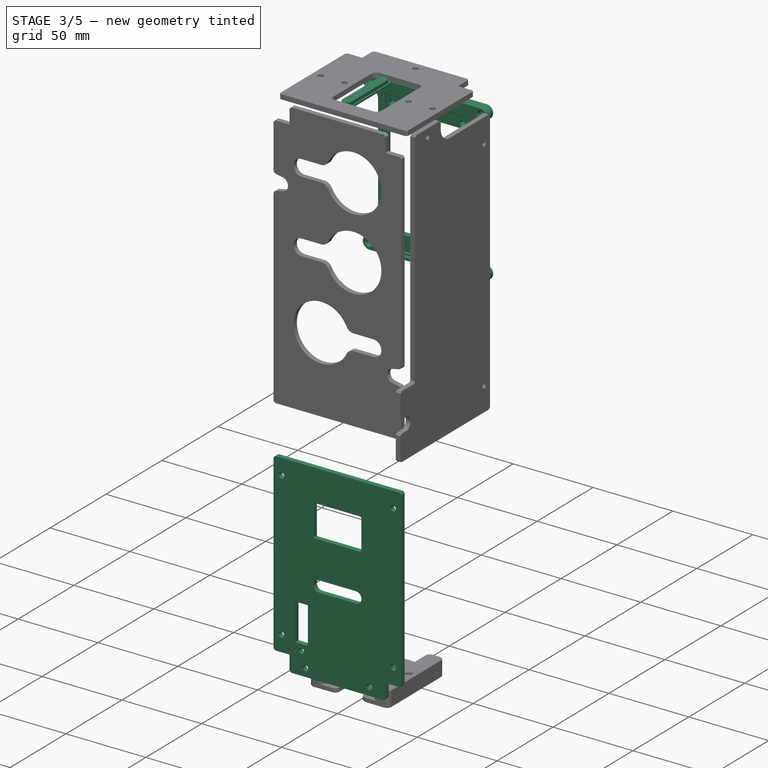
[diagram: stage 3 of 5 — iso view after this stage's code; geometry added in this stage tinted green]
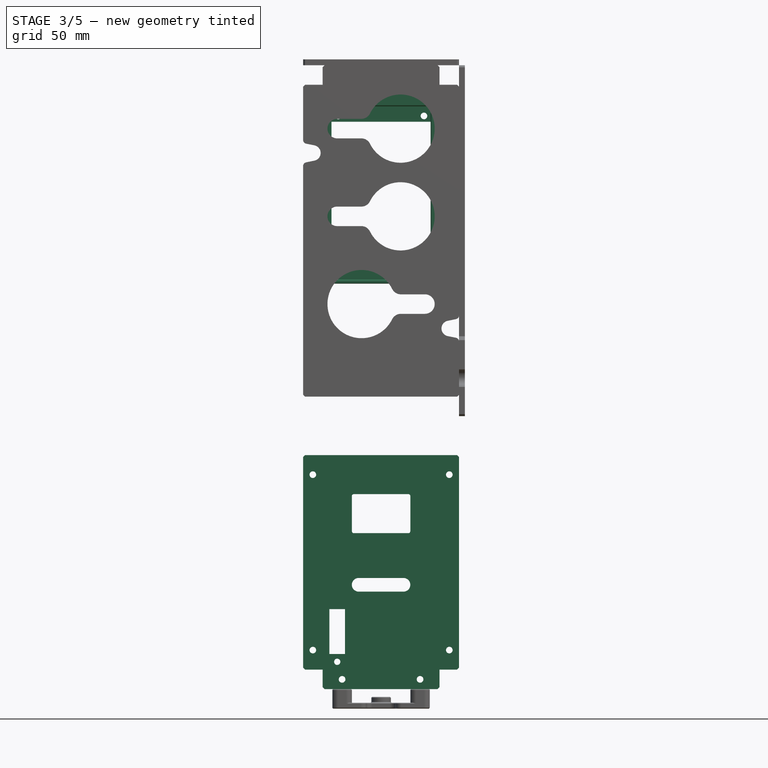
[diagram: stage 3 of 5 — front view after this stage's code; geometry added in this stage tinted green]
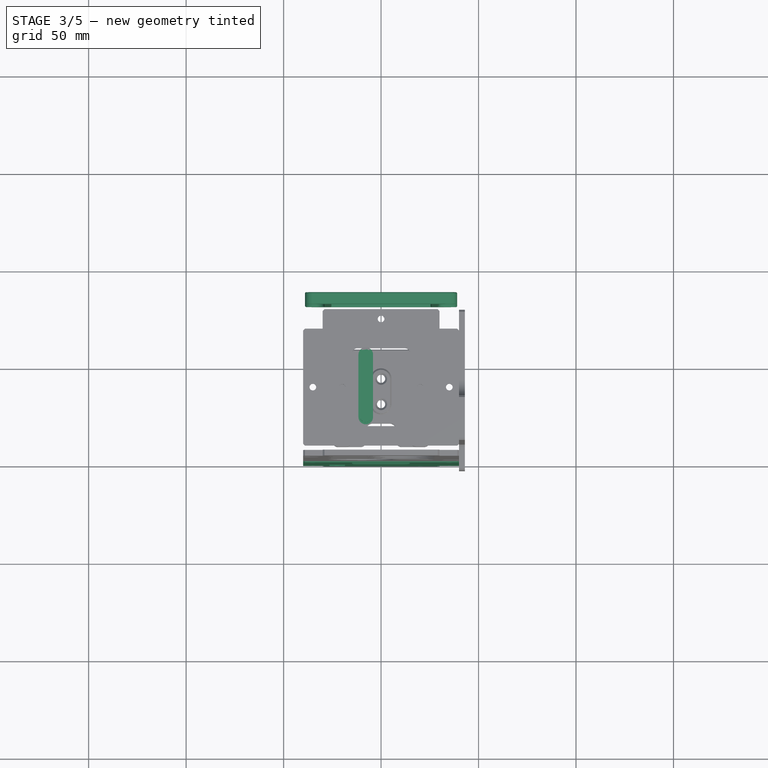
[diagram: stage 3 of 5 — top view after this stage's code; geometry added in this stage tinted green]
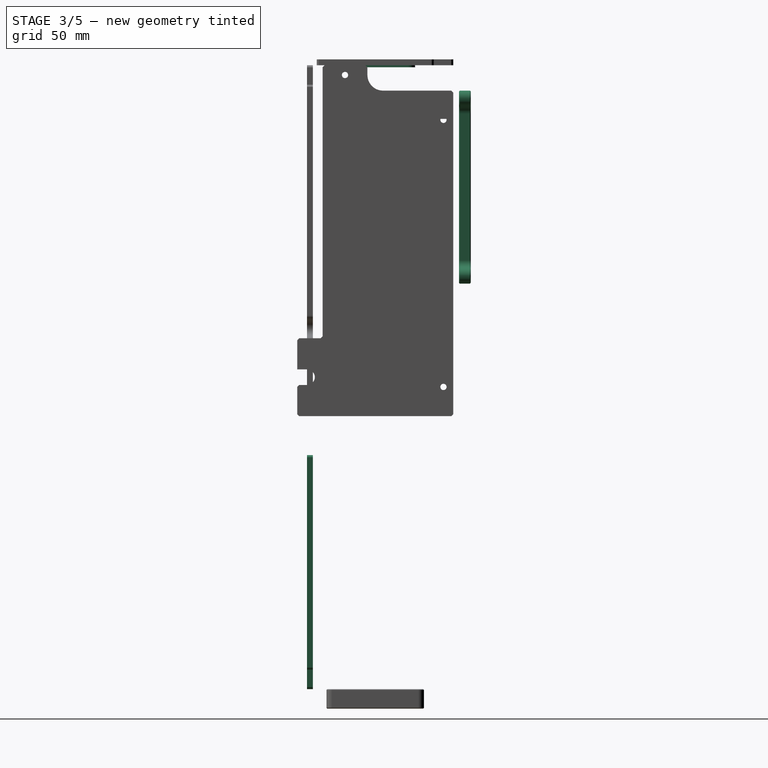
[diagram: stage 3 of 5 — right view after this stage's code; geometry added in this stage tinted green]
FEATURE [PartDesign::Body] Body072  label="CarterTop"
  AutoGroupSolids = false
  ClaimAllChildren = false
  ExportMode = 0
  Group = -> [Sketch152,Pad084,Chamfer055]
  InvalidShape = false
  Origin = -> Origin155
  Placement = pos=(0,35,320) rot=(0,0,1;0rad)
  SingleSolid = true
  Tip = -> Chamfer055
  TreeRank = 0
  ValidateShape = true
  _ExportChildren = -> [Pad084,Chamfer055]
  _GroupVersion = 1
FEATURE [Sketcher::SketchObject] Sketch151
  ArcFitTolerance = 0
  AttachmentSupport = -> [XZ_Plane088]
  ExternalBSplineMaxDegree = 0
  ExternalBSplineTolerance = 0
  FullyConstrained = true
  InternalTolerance = 1e-06
  InvalidShape = false
  MakeInternals = false
  MapMode = 5
  Placement = pos=(0,0,0) rot=(1,0,0;1.5708rad)
  Support = -> [XZ_Plane088]
  TreeRank = 0
  ValidateShape = true
  sketch-geometry (22):
    g0: LineSegment StartX=-30 StartY=0 StartZ=0 EndX=30 EndY=0 EndZ=0
    g1: LineSegment StartX=30 StartY=0 StartZ=0 EndX=30 EndY=10 EndZ=0
    g2: LineSegment StartX=30 StartY=10 StartZ=0 EndX=40 EndY=10 EndZ=0
    g3: LineSegment StartX=40 StartY=10 StartZ=0 EndX=40 EndY=120 EndZ=0
    g4: LineSegment StartX=40 StartY=120 StartZ=0 EndX=-40 EndY=120 EndZ=0
    g5: LineSegment StartX=-40 StartY=120 StartZ=0 EndX=-40 EndY=10 EndZ=0
    g6: LineSegment StartX=-40 StartY=10 StartZ=0 EndX=-30 EndY=10 EndZ=0
    g7: LineSegment StartX=-30 StartY=10 StartZ=0 EndX=-30 EndY=0 EndZ=0
    g8: LineSegment StartX=-15 StartY=100 StartZ=0 EndX=15 EndY=100 EndZ=0
    g9: LineSegment StartX=15 StartY=100 StartZ=0 EndX=15 EndY=80 EndZ=0
    g10: LineSegment StartX=15 StartY=80 StartZ=0 EndX=-15 EndY=80 EndZ=0
    g11: LineSegment StartX=-15 StartY=80 StartZ=0 EndX=-15 EndY=100 EndZ=0
    g12: ArcOfCircle CenterX=-11.5 CenterY=53.5 CenterZ=0 NormalX=0 NormalY=0 NormalZ=1 AngleXU=0 Radius=3.5 StartAngle=1.5708 EndAngle=4.71239
    g13: ArcOfCircle CenterX=11.5 CenterY=53.5 CenterZ=0 NormalX=0 NormalY=0 NormalZ=1 AngleXU=0 Radius=3.5 StartAngle=4.71239 EndAngle=7.85398
    g14: LineSegment StartX=-11.5 StartY=50 StartZ=0 EndX=11.5 EndY=50 EndZ=0
    g15: LineSegment StartX=-11.5 StartY=57 StartZ=0 EndX=11.5 EndY=57 EndZ=0
    g16: Circle CenterX=-35 CenterY=110 CenterZ=0 NormalX=0 NormalY=0 NormalZ=1 AngleXU=0 Radius=1.7
    g17: Circle CenterX=-35 CenterY=20 CenterZ=0 NormalX=0 NormalY=0 NormalZ=1 AngleXU=0 Radius=1.7
    g18: Circle CenterX=-20 CenterY=5 CenterZ=0 NormalX=0 NormalY=0 NormalZ=1 AngleXU=0 Radius=1.7
    g19: Circle CenterX=20 CenterY=5 CenterZ=0 NormalX=0 NormalY=0 NormalZ=1 AngleXU=0 Radius=1.7
    g20: Circle CenterX=35 CenterY=20 CenterZ=0 NormalX=0 NormalY=0 NormalZ=1 AngleXU=0 Radius=1.7
    g21: Circle CenterX=35 CenterY=110 CenterZ=0 NormalX=0 NormalY=0 NormalZ=1 AngleXU=0 Radius=1.7
  constraints (54):
    c: PointOnObject(g0,g-1)
    c: Coincident(g0,g1)
    c: Coincident(g1,g2)
    c: Horizontal(g2)
    c: Coincident(g2,g3)
    c: Vertical(g3)
    c: Coincident(g3,g4)
    c: Horizontal(g4)
    c: Coincident(g4,g5)
    c: Vertical(g5)
    c: Coincident(g5,g6)
    c: Horizontal(g6)
    c: Coincident(g6,g7)
    c: Coincident(g7,g0)
    c: Vertical(g7)
    c: Vertical(g1)
    c: Equal(g1,g2)
    c: Equal(g2,g6)
    c: Equal(g6,g7)
    c: DistanceX(g6,g6) = 10
    c: DistanceX(g0,g0) = 60
    c: Symmetric(g0,g0,g-1)
    c: DistanceY(g4) = 120
    c: Coincident(g8,g9)
    c: Coincident(g9,g10)
    c: Coincident(g10,g11)
    c: Coincident(g11,g8)
    c: Horizontal(g10)
    c: Vertical(g9)
    c: Vertical(g11)
    c: Symmetric(g8,g8,g-2)
    c: DistanceY(g8) = 100
    c: DistanceX(g8,g8) = 30
    c: DistanceY(g11,g11) = 20
    c: Tangent(g12,g15) = 1.5708
    c: Tangent(g12,g14) = -1.5708
    c: Tangent(g14,g13) = -1.5708
    c: Tangent(g15,g13) = 1.5708
    c: Horizontal(g14)
    c: Symmetric(g13,g12,g-2)
    c: DistanceY(g13) = 50
    c: DistanceY(g13) = 57
    c: Tangent(g9,g13)
    c: Diameter(g21) = 3.4
    c: Equal(g21, g16-g20) x5
    c: DistanceY(g16,g4) = 10
    c: Symmetric(g16,g21,g-2)
    c: Symmetric(g17,g20,g-2)
    c: Symmetric(g19,g18,g-2)
    c: DistanceY(g0,g18) = 5
    c: DistanceX(g0,g18) = 10
    c: DistanceY(g5,g17) = 10
    c: DistanceX(g5,g17) = 5
    c: DistanceX(g4,g16) = 5
FEATURE [PartDesign::Pad] Pad083
  AddSubType = 0
  AutoTaperInnerAngle = false
  CheckUpToFaceLimits = true
  ClaimChildren = false
  Direction = (1,1,1)
  Fit = 0
  FitJoin = 0
  InnerFit = 0
  InnerFitJoin = 0
  InvalidShape = false
  Length = 3
  Length2 = 100
  Linearize = true
  NewSolid = false
  Placement = pos=(0,0,0) rot=(1,0,0;1.5708rad)
  Profile = -> Sketch151
  Refine = true
  Reversed = true
  Suppress = false
  TaperInnerAngle = 0
  TaperInnerAngleRev = 0
  TreeRank = 0
  Type = 0
  ValidateShape = true
  _ProfileBasedVersion = 1
FEATURE [PartDesign::Chamfer] Chamfer054
  AddSubType = 0
  Angle = 45
  Base = -> Pad083 [Edge11,Edge14,Edge17,Edge1,Edge2,Edge8]
  BaseFeature = -> Pad083
  ChamferType = 0
  FlipDirection = false
  InvalidShape = false
  NewSolid = false
  Placement = pos=(0,0,0) rot=(1,0,0;1.5708rad)
  Refine = true
  Size = 1
  Size2 = 1
  SupportTransform = false
  Suppress = false
  TreeRank = 0
  UseAllEdges = false
  ValidateShape = true
FEATURE [PartDesign::Fillet] Fillet055
  AddSubType = 0
  Base = -> Chamfer054 [Edge73,Edge74,Edge71,Edge72]
  BaseFeature = -> Chamfer054
  InvalidShape = false
  NewSolid = false
  Placement = pos=(0,0,0) rot=(1,0,0;1.5708rad)
  Radius = 1
  Refine = true
  SupportTransform = false
  Suppress = false
  TreeRank = 0
  UseAllEdges = false
  ValidateShape = true
FEATURE [PartDesign::Body] Body088  label="SupportPololuPOL4079"
  AutoGroupSolids = false
  ClaimAllChildren = false
  ExportMode = 0
  Group = -> [Import,Sketch191,Pad101,Sketch192,Pocket033,Sketch193,Pad102,Sketch194,Pad103,Sketch195,Pocket034,Sketch196,Pocket035,Chamfer066,Chamfer067,Chamfer068,Chamfer069]
  InvalidShape = false
  Origin = -> Origin176
  SingleSolid = true
  Tip = -> Chamfer069
  TreeRank = 429
  ValidateShape = true
  _ExportChildren = -> [Import,Pad101,Pocket033,Pad102,Pad103,Pocket034,Pocket035,Chamfer066,Chamfer067,Chamfer068,Chamfer069]
  _GroupVersion = 1
FEATURE [Part::SubShapeBinder] Import003  label="Import003(Chamfer069)"
  BindCopyOnChange = 0
  BindMode = 0
  ClaimChildren = false
  Context = -> <external ../robots_2023.FCStd>#Part001 [Link001.Group001.Link003.Part004.Body071.Import003.]
  EdgeTolerance = 1e-06
  FillStyle = 0
  Fuse = false
  InvalidShape = false
  MakeFace = false
  MergeEdges = true
  OffsetFill = false
  OffsetIntersection = false
  OffsetJoinType = 0
  OffsetOpenResult = false
  Outline = false
  PartialLoad = false
  Relative = true
  SplitEdges = false
  Support = -> [Body088[Chamfer069.]]
  TightBound = false
  TreeRank = 448
  ValidateShape = true
  _Version = 8
FEATURE [Sketcher::SketchObject] Sketch197
  ArcFitTolerance = 1e-06
  AttachmentSupport = -> [XZ_Plane088]
  ExternalBSplineMaxDegree = 5
  ExternalBSplineTolerance = 0.0001
  ExternalGeometry = -> [Import003]
  FullyConstrained = true
  InternalTolerance = 1e-06
  InvalidShape = false
  MakeInternals = true
  MapMode = 5
  Placement = pos=(0,0,0) rot=(1,0,0;1.5708rad)
  Support = -> [XZ_Plane088]
  TreeRank = 447
  ValidateShape = true
  sketch-geometry (6):
    g0: LineSegment StartX=-26.5 StartY=41 StartZ=0 EndX=-18.5 EndY=41 EndZ=0
    g1: LineSegment StartX=-18.5 StartY=41 StartZ=0 EndX=-18.5 EndY=18 EndZ=0
    g2: LineSegment StartX=-18.5 StartY=18 StartZ=0 EndX=-26.5 EndY=18 EndZ=0
    g3: LineSegment StartX=-26.5 StartY=18 StartZ=0 EndX=-26.5 EndY=41 EndZ=0
    g4: LineSegment [constr] StartX=-22.5 StartY=41 StartZ=0 EndX=-22.5 EndY=14 EndZ=0
    g5: Circle CenterX=-22.5 CenterY=14 CenterZ=0 NormalX=0 NormalY=0 NormalZ=1 AngleXU=0 Radius=1.6
  constraints (16):
    c: Coincident(g0,g1)
    c: Coincident(g1,g2)
    c: Coincident(g2,g3)
    c: Coincident(g3,g0)
    c: Horizontal(g0)
    c: Horizontal(g2)
    c: Vertical(g1)
    c: Vertical(g3)
    c: PointOnObject(g2,g-3)
    c: Coincident(g4,g-4)
    c: Vertical(g4)
    c: Symmetric(g0,g0,g4)
    c: DistanceX(g0,g0) = 8
    c: DistanceY(g1,g1) = 23
    c: Coincident(g5,g-4)
    c: Diameter(g5) = 3.2
FEATURE [PartDesign::Pocket] Pocket036
  AddSubType = 1
  AutoTaperInnerAngle = true
  BaseFeature = -> Fillet055
  CheckUpToFaceLimits = true
  ClaimChildren = false
  Direction = (1,1,1)
  Fit = 0
  FitJoin = 0
  InnerFit = 0
  InnerFitJoin = 0
  InvalidShape = false
  Length = 5
  Length2 = 100
  Linearize = true
  NewSolid = false
  Profile = -> Sketch197
  Refine = true
  Suppress = false
  TaperInnerAngle = 0
  TaperInnerAngleRev = 0
  TreeRank = 449
  Type = 0
  ValidateShape = true
  _ProfileBasedVersion = 1
  _Version = 1
FEATURE [PartDesign::Body] Body071  label="CarterMoteur"
  AutoGroupSolids = false
  ClaimAllChildren = false
  ExportMode = 0
  Group = -> [Sketch151,Pad083,Chamfer054,Fillet055,Sketch197,Import003,Pocket036,Fillet067]
  InvalidShape = false
  Origin = -> Origin154
  Placement = pos=(6.56498e-06,75,1.43051e-06) rot=(0,0,1;0rad)
  SingleSolid = true
  Tip = -> Fillet067
  TreeRank = 0
  ValidateShape = true
  _ExportChildren = -> [Pad083,Chamfer054,Fillet055,Import003,Pocket036,Fillet067]
  _GroupVersion = 1
FEATURE [App::Part] Part004  label="Carters"
  ClaimAllChildren = false
  ExportMode = 1
  Group = -> [Body071]
  Origin = -> Origin031
  TreeRank = 0
  _ExportChildren = -> [Body071]
  _GroupVersion = 1
FEATURE [App::Part] Part005  label="ColonneMoteur"
  ClaimAllChildren = false
  ExportMode = 1
  Group = -> [Part004,Part,Part002,Part003,Link025,Body088]
  Origin = -> Origin032
  TreeRank = 0
  _ExportChildren = -> [Part004,Part,Part002,Part003,Link025,Body088]
  _GroupVersion = 1
FEATURE [TechDraw::DrawProjGroupItem] ProjItem001  label="Front001"
  CoarseView = false
  Direction = (0,1,0)
  Focus = 100
  HardHidden = false
  IsoCount = 0
  IsoHidden = false
  IsoVisible = false
  LockPosition = true
  Perspective = false
  Rotation = 0
  RotationVector = (-1,0,0)
  ScaleType = 2
  ScrubCount = 0
  SeamHidden = false
  SeamVisible = true
  SmoothHidden = false
  SmoothVisible = true
  Source = -> [Body071]
  TreeRank = 0
  Type = 0
  X = 0
  XDirection = (-1,0,0)
  Y = 0
FEATURE [TechDraw::DrawProjGroup] ProjGroup001
  Anchor = -> ProjItem001
  AutoDistribute = true
  LockPosition = false
  ProjectionType = 0
  Rotation = 0
  ScaleType = 0
  Source = -> [Body071]
  TreeRank = 0
  Views = -> [ProjItem001]
  X = 43.2673
  Y = 147.419
  spacingX = 15
  spacingY = 15
FEATURE [TechDraw::DrawPage] Page001  label="Laser3mmCarterMoteur"
  KeepUpdated = true
  NextBalloonIndex = 1
  ProjectionType = 0
  Template = -> Template001
  TreeRank = 0
  Views = -> [ProjGroup001]
FEATURE [App::Link] Link028  label="PanelUsb (GrabCAD)"
  AutoLinkLabel = true
  AutoPlacement = true
  LinkPlacement = pos=(22.25,25,328) rot=(0,-1,0;1.5708rad)
  LinkedObject = -> <external generic-hardware.FCStd>#Solid002
  Placement = pos=(22.25,25,328) rot=(0,-1,0;1.5708rad)
  SyncGroupVisibility = false
  TreeRank = 496
  _LinkVersion = 1
FEATURE [App::Link] Link029  label="Link029(PanelUsb (GrabCAD))"
  AutoLinkLabel = true
  AutoPlacement = true
  LinkPlacement = pos=(6.99996,25,328) rot=(0,-1,0;1.5708rad)
  LinkedObject = -> Link028
  Placement = pos=(6.99996,25,328) rot=(0,-1,0;1.5708rad)
  SyncGroupVisibility = false
  TreeRank = 497
  _LinkVersion = 1
FEATURE [App::VRMLObject] Ihm_2024  label="Ihm-2024"
  Resources = Ihm_2024/ | Ihm_2024/ | Ihm_2024/ | Ihm_2024/ | Ihm_2024/
  TreeRank = 505
FEATURE [App::Part] Part012  label="IhmPcb - 2024"
  ClaimAllChildren = false
  ExportMode = 1
  Group = -> [Ihm_2024]
  Origin = -> Origin181
  Placement = pos=(0,35,314) rot=(0,0,1;1.5708rad)
  TreeRank = 501
  _ExportChildren = -> [Ihm_2024]
  _GroupVersion = 1
FEATURE [PartDesign::FeatureBase] Clone001
  BaseFeature = -> Body072
  FixShape = 1
  InvalidShape = false
  NewSolid = false
  Placement = pos=(0,35,320) rot=(0,0,1;0rad)
  Suppress = false
  TreeRank = 515
  ValidateShape = false
FEATURE [Sketcher::SketchObject] Sketch203
  ArcFitTolerance = 1e-06
  AttachmentSupport = -> [Clone001]
  ExternalBSplineMaxDegree = 5
  ExternalBSplineTolerance = 0.0001
  ExternalGeometry = -> [Clone001]
  FixShape = 1
  FullyConstrained = true
  InternalTolerance = 1e-06
  InvalidShape = false
  MakeInternals = false
  MapMode = 5
  Placement = pos=(0,35,323) rot=(0,0,1;0rad)
  Support = -> [Clone001]
  TreeRank = 517
  ValidateShape = false
  sketch-geometry (3):
    g0: Circle CenterX=-23.9 CenterY=24.4 CenterZ=0 NormalX=0 NormalY=0 NormalZ=1 AngleXU=0 Radius=1.6
    g1: Circle CenterX=24.1 CenterY=24.4 CenterZ=0 NormalX=0 NormalY=0 NormalZ=1 AngleXU=0 Radius=1.6
    g2: Circle CenterX=-7.9 CenterY=-23.6 CenterZ=0 NormalX=0 NormalY=0 NormalZ=1 AngleXU=0 Radius=1.6
  constraints (9):
    c: DistanceX(g1,g-6) = 5.9
    c: Diameter(g1) = 3.2
    c: DistanceY(g1,g-6) = 5.6
    c: DistanceX(g-3,g0) = 6.1
    c: Equal(g2,g0)
    c: Equal(g0,g1)
    c: DistanceY(g0,g-3) = 5.6
    c: DistanceY(g-4,g2) = 6.4
    c: DistanceX(g-3,g2) = 22.1
FEATURE [PartDesign::Pocket] Pocket039
  AddSubType = 1
  AlongSketchNormal = false
  AutoTaperInnerAngle = true
  BaseFeature = -> Clone001
  CheckUpToFaceLimits = true
  ClaimChildren = false
  Direction = (0,0,-1)
  Fit = 0
  FitJoin = 0
  FixShape = 1
  InnerFit = 0
  InnerFitJoin = 0
  InvalidShape = false
  Length = 5
  Length2 = 10
  Linearize = true
  NewSolid = false
  Profile = -> Sketch203
  ReferenceAxis = -> Sketch203 [N_Axis]
  Refine = true
  Suppress = false
  TaperInnerAngle = 0
  TaperInnerAngleRev = 0
  TreeRank = 518
  Type = 1
  ValidateShape = false
  _ProfileBasedVersion = 1
  _Version = 1
FEATURE [Part::SubShapeBinder] Import004  label="Import004(*PanelUsb (GrabCAD))"
  BindCopyOnChange = 0
  BindMode = 0
  ClaimChildren = false
  Context = -> Group001 [Part011.Body091.Import004.]
  EdgeTolerance = 1e-06
  FillStyle = 0
  FixShape = 1
  Fuse = false
  InvalidShape = false
  MakeFace = false
  MergeEdges = true
  OffsetFill = false
  OffsetIntersection = false
  OffsetJoinType = 0
  OffsetOpenResult = false
  Outline = false
  PartialLoad = false
  Relative = true
  SplitEdges = false
  Support = -> [Link029]
  TightBound = false
  TreeRank = 520
  ValidateShape = false
  _Version = 8
FEATURE [Part::SubShapeBinder] Import005  label="Import005(PanelUsb (GrabCAD))"
  BindCopyOnChange = 0
  BindMode = 0
  ClaimChildren = false
  Context = -> Group001 [Part011.Body091.Import005.]
  EdgeTolerance = 1e-06
  FillStyle = 0
  FixShape = 1
  Fuse = false
  InvalidShape = false
  MakeFace = false
  MergeEdges = true
  OffsetFill = false
  OffsetIntersection = false
  OffsetJoinType = 0
  OffsetOpenResult = false
  Outline = false
  PartialLoad = false
  Relative = true
  SplitEdges = false
  Support = -> [Link028]
  TightBound = false
  TreeRank = 521
  ValidateShape = false
  _Version = 8
FEATURE [Sketcher::SketchObject] Sketch204
  ArcFitTolerance = 1e-06
  AttachmentSupport = -> [Pocket039]
  ExternalBSplineMaxDegree = 5
  ExternalBSplineTolerance = 0.0001
  ExternalGeometry = -> [Import004,Import005]
  FixShape = 1
  FullyConstrained = true
  InternalTolerance = 1e-06
  InvalidShape = false
  MakeInternals = false
  MapMode = 5
  Placement = pos=(0,0,323) rot=(0,0,1;0rad)
  Support = -> [Pocket039]
  TreeRank = 519
  ValidateShape = false
  sketch-geometry (13):
    g0: LineSegment StartX=-0.800044 StartY=38.7 StartZ=0 EndX=30.05 EndY=38.7 EndZ=0
    g1: LineSegment StartX=30.05 StartY=38.7 StartZ=0 EndX=30.05 EndY=15.7 EndZ=0
    g2: LineSegment StartX=30.05 StartY=15.7 StartZ=0 EndX=-0.800044 EndY=15.7 EndZ=0
    g3: LineSegment StartX=-0.800044 StartY=15.7 StartZ=0 EndX=-0.800044 EndY=38.7 EndZ=0
    g4: Circle CenterX=6.99996 CenterY=42.2 CenterZ=0 NormalX=0 NormalY=0 NormalZ=1 AngleXU=0 Radius=1.6
    g5: Circle CenterX=22.25 CenterY=42.2 CenterZ=0 NormalX=0 NormalY=0 NormalZ=1 AngleXU=0 Radius=1.6
    g6: Circle CenterX=6.99996 CenterY=12.2 CenterZ=0 NormalX=0 NormalY=0 NormalZ=1 AngleXU=0 Radius=1.6
    g7: Circle CenterX=22.25 CenterY=12.2 CenterZ=0 NormalX=0 NormalY=0 NormalZ=1 AngleXU=0 Radius=1.6
    g8: LineSegment [constr] StartX=6.99996 StartY=42.2 StartZ=0 EndX=22.25 EndY=42.2 EndZ=0
    g9: LineSegment [constr] StartX=22.25 StartY=42.2 StartZ=0 EndX=22.25 EndY=12.2 EndZ=0
    g10: LineSegment [constr] StartX=22.25 StartY=12.2 StartZ=0 EndX=6.99996 EndY=12.2 EndZ=0
    g11: LineSegment [constr] StartX=6.99996 StartY=12.2 StartZ=0 EndX=6.99996 EndY=42.2 EndZ=0
    g12: LineSegment [constr] StartX=-0.800044 StartY=27.2 StartZ=0 EndX=30.05 EndY=27.2 EndZ=0
  constraints (34):
    c: Coincident(g0,g1)
    c: Coincident(g1,g2)
    c: Coincident(g2,g3)
    c: Coincident(g3,g0)
    c: Horizontal(g0)
    c: Horizontal(g2)
    c: Vertical(g1)
    c: Vertical(g3)
    c: DistanceX(g-4,g1) = 0.3
    c: DistanceY(g1,g-4) = 0.3
    c: DistanceX(g0,g-3) = 0.3
    c: Equal(g6,g7)
    c: Equal(g6,g4)
    c: Equal(g6,g5)
    c: Diameter(g6) = 3.2
    c: DistanceY(g1,g1) = 23
    c: Coincident(g8,g9)
    c: Coincident(g9,g10)
    c: Coincident(g10,g11)
    c: Coincident(g11,g8)
    c: Horizontal(g8)
    c: Horizontal(g10)
    c: Vertical(g9)
    c: Vertical(g11)
    c: Coincident(g8,g4)
    c: Coincident(g9,g7)
    c: Coincident(g6,g10)
    c: Coincident(g8,g5)
    c: PointOnObject(g-5,g9)
    c: PointOnObject(g-6,g11)
    c: PointOnObject(g12,g3)
    c: Symmetric(g1,g0,g12)
    c: Symmetric(g7,g5,g12)
    c: DistanceY(g9,g9) = 30
FEATURE [PartDesign::Pocket] Pocket040
  AddSubType = 1
  AlongSketchNormal = false
  AutoTaperInnerAngle = true
  BaseFeature = -> Pocket039
  CheckUpToFaceLimits = true
  ClaimChildren = false
  Direction = (0,0,-1)
  Fit = 0
  FitJoin = 0
  FixShape = 1
  InnerFit = 0
  InnerFitJoin = 0
  InvalidShape = false
  Length = 5
  Length2 = 10
  Linearize = true
  NewSolid = false
  Profile = -> Sketch204
  ReferenceAxis = -> Sketch204 [N_Axis]
  Refine = true
  Suppress = false
  TaperInnerAngle = 0
  TaperInnerAngleRev = 0
  TreeRank = 522
  Type = 1
  ValidateShape = false
  _ProfileBasedVersion = 1
  _Version = 1
FEATURE [Sketcher::SketchObject] Sketch205
  ArcFitTolerance = 1e-06
  AttachmentSupport = -> [Pocket040]
  ExternalBSplineMaxDegree = 5
  ExternalBSplineTolerance = 0.0001
  FixShape = 1
  FullyConstrained = true
  InternalTolerance = 1e-06
  InvalidShape = false
  MakeInternals = false
  MapMode = 5
  Placement = pos=(0,0,323) rot=(0,0,1;0rad)
  Support = -> [Pocket040]
  TreeRank = 523
  ValidateShape = false
  sketch-geometry (8):
    g0: LineSegment StartX=-25.7536 StartY=55.6513 StartZ=0 EndX=-12.1083 EndY=55.6513 EndZ=0
    g1: LineSegment StartX=-12.1083 StartY=55.6513 StartZ=0 EndX=-12.1083 EndY=24.3652 EndZ=0
    g2: LineSegment StartX=-12.1083 StartY=24.3652 StartZ=0 EndX=-25.7536 EndY=24.3652 EndZ=0
    g3: LineSegment StartX=-25.7536 StartY=24.3652 StartZ=0 EndX=-25.7536 EndY=55.6513 EndZ=0
    g4: LineSegment StartX=-24.1455 StartY=20.5549 StartZ=0 EndX=-13.6365 EndY=20.5549 EndZ=0
    g5: LineSegment StartX=-13.6365 StartY=20.5549 StartZ=0 EndX=-13.6365 EndY=7.64626 EndZ=0
    g6: LineSegment StartX=-13.6365 StartY=7.64626 StartZ=0 EndX=-24.1455 EndY=7.64626 EndZ=0
    g7: LineSegment StartX=-24.1455 StartY=7.64626 StartZ=0 EndX=-24.1455 EndY=20.5549 EndZ=0
  constraints (24):
    c: Coincident(g0,g1)
    c: Coincident(g1,g2)
    c: Coincident(g2,g3)
    c: Coincident(g3,g0)
    c: Horizontal(g0)
    c: Horizontal(g2)
    c: Vertical(g1)
    c: Vertical(g3)
    c: Coincident(g4,g5)
    c: Coincident(g5,g6)
    c: Coincident(g6,g7)
    c: Coincident(g7,g4)
    c: Horizontal(g4)
    c: Horizontal(g6)
    c: Vertical(g5)
    c: Vertical(g7)
    c: Block(g0)
    c: Block(g1)
    c: Block(g2)
    c: Block(g3)
    c: Block(g4)
    c: Block(g7)
    c: Block(g6)
    c: Block(g5)
FEATURE [PartDesign::Pocket] Pocket041
  AddSubType = 1
  AlongSketchNormal = false
  AutoTaperInnerAngle = true
  BaseFeature = -> Pocket040
  CheckUpToFaceLimits = true
  ClaimChildren = false
  Direction = (0,0,-1)
  Fit = 0
  FitJoin = 0
  FixShape = 1
  InnerFit = 0
  InnerFitJoin = 0
  InvalidShape = false
  Length = 5
  Length2 = 10
  Linearize = true
  NewSolid = false
  Profile = -> Sketch205
  ReferenceAxis = -> Sketch205 [N_Axis]
  Refine = true
  Suppress = false
  TaperInnerAngle = 0
  TaperInnerAngleRev = 0
  TreeRank = 524
  Type = 1
  ValidateShape = false
  _ProfileBasedVersion = 1
  _Version = 1
FEATURE [Sketcher::SketchObject] Sketch206
  ArcFitTolerance = 1e-06
  AttachmentSupport = -> [Pocket041]
  ExternalBSplineMaxDegree = 5
  ExternalBSplineTolerance = 0.0001
  FixShape = 1
  FullyConstrained = true
  InternalTolerance = 1e-06
  InvalidShape = false
  MakeInternals = false
  MapMode = 5
  Placement = pos=(0,0,323) rot=(0,0,1;0rad)
  Support = -> [Pocket041]
  TreeRank = 525
  ValidateShape = false
  sketch-geometry (4):
    g0: ArcOfCircle CenterX=-7.86425 CenterY=51.7332 CenterZ=0 NormalX=0 NormalY=0 NormalZ=1 AngleXU=0 Radius=2.75 StartAngle=2e-16 EndAngle=3.14159
    g1: ArcOfCircle CenterX=-7.86425 CenterY=19.7332 CenterZ=0 NormalX=0 NormalY=0 NormalZ=1 AngleXU=0 Radius=2.75 StartAngle=3.14159 EndAngle=6.28319
    g2: LineSegment StartX=-10.6142 StartY=51.7332 StartZ=0 EndX=-10.6142 EndY=19.7332 EndZ=0
    g3: LineSegment StartX=-5.11425 StartY=19.7332 StartZ=0 EndX=-5.11425 EndY=51.7332 EndZ=0
  constraints (9):
    c: Tangent(g0,g2) = -1.5708
    c: Tangent(g2,g1) = -1.5708
    c: Tangent(g1,g3) = -1.5708
    c: Tangent(g3,g0) = -1.5708
    c: Equal(g0,g1)
    c: Vertical(g2)
    c: Diameter(g0) = 5.5
    c: DistanceY(g1,g0) = 32
    c: Block(g3)
FEATURE [PartDesign::Pocket] Pocket042
  AddSubType = 1
  AlongSketchNormal = false
  AutoTaperInnerAngle = true
  BaseFeature = -> Pocket041
  CheckUpToFaceLimits = true
  ClaimChildren = false
  Direction = (0,0,-1)
  Fit = 0
  FitJoin = 0
  FixShape = 1
  InnerFit = 0
  InnerFitJoin = 0
  InvalidShape = false
  Length = 5
  Length2 = 10
  Linearize = true
  NewSolid = false
  Profile = -> Sketch206
  ReferenceAxis = -> Sketch206 [N_Axis]
  Refine = true
  Suppress = false
  TaperInnerAngle = 0
  TaperInnerAngleRev = 0
  TreeRank = 526
  Type = 1
  ValidateShape = false
  _ProfileBasedVersion = 1
  _Version = 1
FEATURE [PartDesign::Body] Body091  label="CarterIHM-V2"
  AutoGroupSolids = false
  BaseFeature = -> Body072
  ClaimAllChildren = false
  ExportMode = 0
  FixShape = 1
  Group = -> [Clone001,Sketch203,Pocket039,Sketch204,Import004,Import005,Pocket040,Sketch205,Pocket041,Sketch206,Pocket042]
  InvalidShape = false
  Origin = -> Origin182
  SingleSolid = true
  Tip = -> Pocket042
  TreeRank = 516
  ValidateShape = false
  _ExportChildren = -> [Clone001,Pocket039,Import004,Import005,Pocket040,Pocket041,Pocket042]
  _GroupVersion = 1
FEATURE [PartDesign::SubShapeBinder] Binder  label="Binder(Pocket042)"
  BindCopyOnChange = 0
  BindMode = 0
  ClaimChildren = false
  Context = -> Group001 [Part011.Body092.Binder.]
  EdgeTolerance = 1e-06
  FillStyle = 0
  FixShape = 1
  Fuse = false
  InvalidShape = false
  MakeFace = true
  MergeEdges = true
  OffsetFill = false
  OffsetIntersection = false
  OffsetJoinType = 0
  OffsetOpenResult = false
  Outline = false
  PartialLoad = false
  Relative = true
  SplitEdges = false
  Support = -> [Body091[Pocket042.Face5]]
  TightBound = false
  TreeRank = 537
  ValidateShape = false
  _Version = 8
FEATURE [Sketcher::SketchObject] Sketch207
  ArcFitTolerance = 1e-06
  AttachmentOffset = pos=(0,0,-1) rot=(0,0,1;0rad)
  AttachmentSupport = -> [Binder]
  ExternalBSplineMaxDegree = 5
  ExternalBSplineTolerance = 0.0001
  ExternalGeometry = -> [Binder]
  FixShape = 1
  FullyConstrained = true
  InternalTolerance = 1e-06
  InvalidShape = false
  MakeInternals = false
  MapMode = 5
  Placement = pos=(0,0,322) rot=(0,0,1;0rad)
  Support = -> [Binder]
  TreeRank = 538
  ValidateShape = false
FEATURE [PartDesign::Pad] Pad107
  AddSubType = 0
  AlongSketchNormal = false
  AutoTaperInnerAngle = true
  CheckUpToFaceLimits = true
  ClaimChildren = false
  Direction = (0,0,1)
  Fit = 0
  FitJoin = 0
  FixShape = 1
  InnerFit = 0
  InnerFitJoin = 0
  InvalidShape = false
  Length = 3
  Length2 = 10
  Linearize = true
  NewSolid = false
  Profile = -> Sketch207
  ReferenceAxis = -> Sketch207 [N_Axis]
  Refine = true
  Reversed = true
  Suppress = false
  TaperInnerAngle = 0
  TaperInnerAngleRev = 0
  TreeRank = 539
  Type = 0
  ValidateShape = false
  _ProfileBasedVersion = 1
FEATURE [Sketcher::SketchObject] Sketch208
  ArcFitTolerance = 1e-06
  AttachmentSupport = -> [Pad107]
  ExternalBSplineMaxDegree = 5
  ExternalBSplineTolerance = 0.0001
  ExternalGeometry = -> [Pad107]
  FixShape = 1
  FullyConstrained = true
  InternalTolerance = 1e-06
  InvalidShape = false
  MakeInternals = false
  MapMode = 5
  Placement = pos=(0,0,319) rot=(1,0,0;3.14159rad)
  Support = -> [Pad107]
  TreeRank = 540
  ValidateShape = false
  sketch-geometry (4):
    g0: ArcOfCircle CenterX=-7.86425 CenterY=-19.7332 CenterZ=0 NormalX=0 NormalY=0 NormalZ=1 AngleXU=0 Radius=3.75 StartAngle=5e-16 EndAngle=3.14159
    g1: ArcOfCircle CenterX=-7.86425 CenterY=-51.7332 CenterZ=0 NormalX=0 NormalY=0 NormalZ=1 AngleXU=0 Radius=3.75 StartAngle=3.14159 EndAngle=6.28319
    g2: LineSegment StartX=-11.6142 StartY=-19.7332 StartZ=0 EndX=-11.6142 EndY=-51.7332 EndZ=0
    g3: LineSegment StartX=-4.11425 StartY=-51.7332 StartZ=0 EndX=-4.11425 EndY=-19.7332 EndZ=0
  constraints (8):
    c: Tangent(g0,g2) = -1.5708
    c: Tangent(g2,g1) = -1.5708
    c: Tangent(g1,g3) = -1.5708
    c: Tangent(g3,g0) = -1.5708
    c: Equal(g0,g1)
    c: Coincident(g0,g-3)
    c: Coincident(g1,g-4)
    c: DistanceX(g0,g-3) = 1
FEATURE [PartDesign::Pad] Pad108
  AddSubType = 0
  AlongSketchNormal = false
  AutoTaperInnerAngle = true
  BaseFeature = -> Pad107
  CheckUpToFaceLimits = true
  ClaimChildren = false
  Direction = (0,0,-1)
  Fit = 0
  FitJoin = 0
  FixShape = 1
  InnerFit = 0
  InnerFitJoin = 0
  InvalidShape = false
  Length = 1
  Length2 = 10
  Linearize = true
  NewSolid = false
  Profile = -> Sketch208
  ReferenceAxis = -> Sketch208 [N_Axis]
  Refine = true
  Reversed = true
  Suppress = false
  TaperInnerAngle = 0
  TaperInnerAngleRev = 0
  TreeRank = 541
  Type = 0
  ValidateShape = false
  _ProfileBasedVersion = 1
FEATURE [PartDesign::SubShapeBinder] Binder001  label="Binder001(Pocket029)"
  BindCopyOnChange = 0
  BindMode = 0
  ClaimChildren = false
  Context = -> <external ../table_2024.FCStd>#Group [Link.Link.Group002.Link044.Body093.Binder001.]
  EdgeTolerance = 1e-06
  FillStyle = 0
  FixShape = 1
  Fuse = false
  InvalidShape = false
  MakeFace = true
  MergeEdges = true
  OffsetFill = false
  OffsetIntersection = false
  OffsetJoinType = 0
  OffsetOpenResult = false
  Outline = false
  PartialLoad = false
  Relative = true
  SplitEdges = false
  Support = -> [Body086[Pocket029.Face5]]
  TightBound = false
  TreeRank = 607
  ValidateShape = false
  _Version = 8
FEATURE [Sketcher::SketchObject] Sketch210
  ArcFitTolerance = 1e-06
  AttachmentSupport = -> [Binder001]
  ExternalBSplineMaxDegree = 5
  ExternalBSplineTolerance = 0.0001
  ExternalGeometry = -> [Binder001]
  FixShape = 1
  FullyConstrained = true
  InternalTolerance = 1e-06
  InvalidShape = false
  MakeInternals = false
  MapMode = 5
  Placement = pos=(0,78,0) rot=(0,0.707107,0.707107;3.14159rad)
  Support = -> [Binder001]
  TreeRank = 608
  ValidateShape = false
  sketch-geometry (12):
    g0: Circle CenterX=-22 CenterY=217.92 CenterZ=0 NormalX=0 NormalY=0 NormalZ=1 AngleXU=0 Radius=1.7
    g1: Circle CenterX=22 CenterY=217.92 CenterZ=0 NormalX=0 NormalY=0 NormalZ=1 AngleXU=0 Radius=1.7
    g2: Circle CenterX=22 CenterY=294 CenterZ=0 NormalX=0 NormalY=0 NormalZ=1 AngleXU=0 Radius=1.7
    g3: Circle CenterX=-22 CenterY=294 CenterZ=0 NormalX=0 NormalY=0 NormalZ=1 AngleXU=0 Radius=1.7
    g4: LineSegment StartX=-25.4 StartY=291 StartZ=0 EndX=25.4 EndY=291 EndZ=0
    g5: LineSegment StartX=25.4 StartY=291 StartZ=0 EndX=25.4 EndY=221 EndZ=0
    g6: LineSegment StartX=25.4 StartY=221 StartZ=0 EndX=-25.4 EndY=221 EndZ=0
    g7: LineSegment StartX=-25.4 StartY=221 StartZ=0 EndX=-25.4 EndY=291 EndZ=0
    g8: LineSegment StartX=-29.4 StartY=307 StartZ=0 EndX=29.4 EndY=307 EndZ=0
    g9: LineSegment StartX=29.4 StartY=307 StartZ=0 EndX=29.4 EndY=208 EndZ=0
    g10: LineSegment StartX=29.4 StartY=208 StartZ=0 EndX=-29.4 EndY=208 EndZ=0
    g11: LineSegment StartX=-29.4 StartY=208 StartZ=0 EndX=-29.4 EndY=307 EndZ=0
  constraints (32):
    c: Coincident(g0,g-5)
    c: Coincident(g1,g-6)
    c: Coincident(g2,g-4)
    c: Coincident(g3,g-3)
    c: Equal(g3,g2)
    c: Equal(g3,g0)
    c: Equal(g3,g1)
    c: Diameter(g3) = 3.4
    c: Coincident(g4,g5)
    c: Coincident(g5,g6)
    c: Coincident(g6,g7)
    c: Coincident(g7,g4)
    c: Horizontal(g4)
    c: Horizontal(g6)
    c: Vertical(g5)
    c: Vertical(g7)
    c: DistanceY(g-7,g4) = 0.4
    c: DistanceY(g6,g-7) = 0.4
    c: DistanceX(g6,g-7) = 0.4
    c: DistanceX(g-8,g5) = 0.4
    c: Coincident(g8,g9)
    c: Coincident(g9,g10)
    c: Coincident(g10,g11)
    c: Coincident(g11,g8)
    c: Horizontal(g8)
    c: Horizontal(g10)
    c: Vertical(g9)
    c: Vertical(g11)
    c: DistanceX(g5,g9) = 4
    c: DistanceX(g10,g6) = 4
    c: DistanceY(g8,g-10) = 3
    c: DistanceY(g-9,g9) = 1
FEATURE [PartDesign::Pad] Pad109
  AddSubType = 0
  AlongSketchNormal = false
  AutoTaperInnerAngle = true
  CheckUpToFaceLimits = true
  ClaimChildren = false
  Direction = (0,1,-2e-16)
  Fit = 0
  FitJoin = 0
  FixShape = 1
  InnerFit = 0
  InnerFitJoin = 0
  InvalidShape = false
  Length = 6
  Length2 = 10
  Linearize = true
  NewSolid = false
  Profile = -> Sketch210
  ReferenceAxis = -> Sketch210 [N_Axis]
  Refine = true
  Suppress = false
  TaperInnerAngle = 0
  TaperInnerAngleRev = 0
  TreeRank = 609
  Type = 0
  ValidateShape = false
  _ProfileBasedVersion = 1
FEATURE [Sketcher::SketchObject] Sketch211
  ArcFitTolerance = 1e-06
  AttachmentSupport = -> [Pad109]
  ExternalBSplineMaxDegree = 5
  ExternalBSplineTolerance = 0.0001
  ExternalGeometry = -> [Pad109]
  FixShape = 1
  FullyConstrained = true
  InternalTolerance = 1e-06
  InvalidShape = false
  MakeInternals = false
  MapMode = 5
  Placement = pos=(0,78,-2.51e-14) rot=(1,0,0;1.5708rad)
  Support = -> [Pad109]
  TreeRank = 610
  ValidateShape = false
  sketch-geometry (10):
    g0: ArcOfCircle CenterX=-29.4 CenterY=303 CenterZ=0 NormalX=0 NormalY=0 NormalZ=1 AngleXU=0 Radius=4 StartAngle=4.71239 EndAngle=7.85398
    g1: ArcOfCircle CenterX=-35 CenterY=303 CenterZ=0 NormalX=0 NormalY=0 NormalZ=1 AngleXU=0 Radius=4 StartAngle=1.5708 EndAngle=4.71239
    g2: LineSegment StartX=-29.4 StartY=307 StartZ=0 EndX=-35 EndY=307 EndZ=0
    g3: LineSegment StartX=-35 StartY=299 StartZ=0 EndX=-29.4 EndY=299 EndZ=0
    g4: ArcOfCircle CenterX=-29.4 CenterY=212 CenterZ=0 NormalX=0 NormalY=0 NormalZ=1 AngleXU=0 Radius=4 StartAngle=4.71239 EndAngle=7.85398
    g5: ArcOfCircle CenterX=-35 CenterY=212 CenterZ=0 NormalX=0 NormalY=0 NormalZ=1 AngleXU=0 Radius=4 StartAngle=1.5708 EndAngle=4.71239
    g6: LineSegment StartX=-29.4 StartY=216 StartZ=0 EndX=-35 EndY=216 EndZ=0
    g7: LineSegment StartX=-35 StartY=208 StartZ=0 EndX=-29.4 EndY=208 EndZ=0
    g8: Circle CenterX=-35 CenterY=303 CenterZ=0 NormalX=0 NormalY=0 NormalZ=1 AngleXU=0 Radius=2.1
    g9: Circle CenterX=-35 CenterY=212 CenterZ=0 NormalX=0 NormalY=0 NormalZ=1 AngleXU=0 Radius=2.1
  constraints (22):
    c: Tangent(g0,g2) = -1.5708
    c: Tangent(g2,g1) = -1.5708
    c: Tangent(g1,g3) = -1.5708
    c: Tangent(g3,g0) = -1.5708
    c: Equal(g0,g1)
    c: Horizontal(g2)
    c: Coincident(g0,g-4)
    c: Tangent(g4,g6) = -1.5708
    c: Tangent(g6,g5) = -1.5708
    c: Tangent(g5,g7) = -1.5708
    c: Tangent(g7,g4) = -1.5708
    c: Equal(g4,g5)
    c: Horizontal(g6)
    c: Coincident(g4,g-4)
    c: Equal(g5,g1)
    c: Vertical(g5,g1)
    c: Diameter(g1) = 8
    c: Coincident(g8,g1)
    c: Coincident(g9,g5)
    c: Equal(g9,g8)
    c: Diameter(g9) = 4.2
    c: DistanceX(g5,g-1) = 35
FEATURE [PartDesign::Pad] Pad110
  AddSubType = 0
  AlongSketchNormal = false
  AutoTaperInnerAngle = true
  BaseFeature = -> Pad109
  CheckUpToFaceLimits = true
  ClaimChildren = false
  Direction = (0,-1,2e-16)
  Fit = 0
  FitJoin = 0
  FixShape = 1
  InnerFit = 0
  InnerFitJoin = 0
  InvalidShape = false
  Length = 6
  Length2 = 10
  Linearize = true
  NewSolid = false
  Profile = -> Sketch211
  ReferenceAxis = -> Sketch211 [N_Axis]
  Refine = true
  Reversed = true
  Suppress = false
  TaperInnerAngle = 0
  TaperInnerAngleRev = 0
  TreeRank = 611
  Type = 0
  ValidateShape = false
  _ProfileBasedVersion = 1
FEATURE [PartDesign::Mirrored] Mirrored
  AddSubType = 0
  BaseFeature = -> Pad110
  CopyShape = false
  FixShape = 1
  InvalidShape = false
  MirrorPlane = -> YZ_Plane114
  NewSolid = false
  OriginalSubs = -> [Pad110]
  Originals = -> [Pad110]
  ParallelTransform = true
  Refine = true
  SubTransform = true
  Suppress = false
  TreeRank = 612
  ValidateShape = false
  _Version = 3
FEATURE [Sketcher::SketchObject] Sketch212
  ArcFitTolerance = 1e-06
  AttachmentSupport = -> [Mirrored]
  ExternalBSplineMaxDegree = 5
  ExternalBSplineTolerance = 0.0001
  ExternalGeometry = -> [Mirrored]
  FixShape = 1
  FullyConstrained = true
  InternalTolerance = 1e-06
  InvalidShape = false
  MakeInternals = false
  MapMode = 5
  Placement = pos=(0,78,-2.29e-14) rot=(1,0,0;1.5708rad)
  Support = -> [Mirrored]
  TreeRank = 613
  ValidateShape = false
  sketch-geometry (4):
    g0: LineSegment StartX=-25.4 StartY=299 StartZ=0 EndX=25.4 EndY=299 EndZ=0
    g1: LineSegment StartX=25.4 StartY=299 StartZ=0 EndX=25.4 EndY=210 EndZ=0
    g2: LineSegment StartX=25.4 StartY=210 StartZ=0 EndX=-25.4 EndY=210 EndZ=0
    g3: LineSegment StartX=-25.4 StartY=210 StartZ=0 EndX=-25.4 EndY=299 EndZ=0
  constraints (12):
    c: Coincident(g0,g1)
    c: Coincident(g1,g2)
    c: Coincident(g2,g3)
    c: Coincident(g3,g0)
    c: Horizontal(g0)
    c: Horizontal(g2)
    c: Vertical(g1)
    c: Vertical(g3)
    c: PointOnObject(g-4,g1)
    c: PointOnObject(g-3,g3)
    c: DistanceY(g-3,g0) = 8
    c: DistanceY(g2,g-3) = 11
FEATURE [PartDesign::Pocket] Pocket044
  AddSubType = 1
  AlongSketchNormal = false
  AutoTaperInnerAngle = true
  BaseFeature = -> Mirrored
  CheckUpToFaceLimits = true
  ClaimChildren = false
  Direction = (0,1,-2e-16)
  Fit = 0
  FitJoin = 0
  FixShape = 1
  InnerFit = 0
  InnerFitJoin = 0
  InvalidShape = false
  Length = 2
  Length2 = 10
  Linearize = true
  NewSolid = false
  Profile = -> Sketch212
  ReferenceAxis = -> Sketch212 [N_Axis]
  Refine = true
  Suppress = false
  TaperInnerAngle = 0
  TaperInnerAngleRev = 0
  TreeRank = 614
  Type = 0
  ValidateShape = false
  _ProfileBasedVersion = 1
  _Version = 1
FEATURE [Sketcher::SketchObject] Sketch213
  ArcFitTolerance = 1e-06
  AttachmentSupport = -> [Pocket044]
  ExternalBSplineMaxDegree = 5
  ExternalBSplineTolerance = 0.0001
  ExternalGeometry = -> [Binder001]
  FixShape = 1
  FullyConstrained = true
  InternalTolerance = 1e-06
  InvalidShape = false
  MakeInternals = false
  MapMode = 5
  Placement = pos=(0,80,-2.55e-14) rot=(1,0,0;1.5708rad)
  Support = -> [Pocket044]
  TreeRank = 615
  ValidateShape = false
  sketch-geometry (4):
    g0: ArcOfCircle CenterX=-16.5 CenterY=213.4 CenterZ=0 NormalX=0 NormalY=0 NormalZ=1 AngleXU=0 Radius=2.5 StartAngle=1.5708 EndAngle=4.71239
    g1: ArcOfCircle CenterX=16.5 CenterY=213.4 CenterZ=0 NormalX=0 NormalY=0 NormalZ=1 AngleXU=0 Radius=2.5 StartAngle=4.71239 EndAngle=7.85398
    g2: LineSegment StartX=-16.5 StartY=210.9 StartZ=0 EndX=16.5 EndY=210.9 EndZ=0
    g3: LineSegment StartX=16.5 StartY=215.9 StartZ=0 EndX=-16.5 EndY=215.9 EndZ=0
  constraints (10):
    c: Tangent(g0,g2) = -1.5708
    c: Tangent(g2,g1) = -1.5708
    c: Tangent(g1,g3) = -1.5708
    c: Tangent(g3,g0) = -1.5708
    c: Equal(g0,g1)
    c: Horizontal(g2)
    c: DistanceX(g1,g-3) = 8.5
    c: DistanceX(g-4,g0) = 8.5
    c: DistanceY(g1,g-3) = 8
    c: Diameter(g1) = 5
FEATURE [PartDesign::Pocket] Pocket045
  AddSubType = 1
  AlongSketchNormal = false
  AutoTaperInnerAngle = true
  BaseFeature = -> Pocket044
  CheckUpToFaceLimits = true
  ClaimChildren = false
  Direction = (0,1,-2e-16)
  Fit = 0
  FitJoin = 0
  FixShape = 1
  InnerFit = 0
  InnerFitJoin = 0
  InvalidShape = false
  Length = 2
  Length2 = 10
  Linearize = true
  NewSolid = false
  Profile = -> Sketch213
  ReferenceAxis = -> Sketch213 [N_Axis]
  Refine = true
  Suppress = false
  TaperInnerAngle = 0
  TaperInnerAngleRev = 0
  TreeRank = 616
  Type = 0
  ValidateShape = false
  _ProfileBasedVersion = 1
  _Version = 1
FEATURE [PartDesign::Chamfer] Chamfer073
  AddSubType = 0
  Angle = 45
  Base = -> Pocket043 [Edge62,Edge66,Edge68,Edge74,Edge79,Edge76,Edge77,Edge75,Edge73,Edge67,Edge7,Edge65,Edge1,Edge8]
  BaseFeature = -> Pocket043
  ChamferType = 0
  FixShape = 1
  FlipDirection = false
  InvalidShape = false
  NewSolid = false
  Refine = true
  Size = 1
  Size2 = 1
  SupportTransform = false
  Suppress = false
  TreeRank = 617
  UseAllEdges = false
  ValidateShape = false
FEATURE [PartDesign::Fillet] Fillet
  AddSubType = 0
  Base = -> Pocket045 [Edge54,Edge56,Edge6,Edge1]
  BaseFeature = -> Pocket045
  FixShape = 1
  InvalidShape = false
  NewSolid = false
  Radius = 4
  Refine = true
  SupportTransform = false
  Suppress = false
  TreeRank = 618
  UseAllEdges = false
  ValidateShape = false
FEATURE [PartDesign::Chamfer] Chamfer074
  AddSubType = 0
  Angle = 45
  Base = -> Fillet [Face5,Face2]
  BaseFeature = -> Fillet
  ChamferType = 0
  FixShape = 1
  FlipDirection = false
  InvalidShape = false
  NewSolid = false
  Refine = true
  Size = 0.4
  Size2 = 1
  SupportTransform = false
  Suppress = false
  TreeRank = 619
  UseAllEdges = false
  ValidateShape = false
FEATURE [PartDesign::Body] Body093  label="SpacerTFT"
  AutoGroupSolids = false
  ClaimAllChildren = false
  ExportMode = 0
  FixShape = 1
  Group = -> [Binder001,Sketch210,Pad109,Sketch211,Pad110,Mirrored,Sketch212,Pocket044,Sketch213,Pocket045,Fillet,Chamfer074]
  InvalidShape = false
  Origin = -> Origin186
  SingleSolid = true
  Tip = -> Chamfer074
  TreeRank = 606
  ValidateShape = false
  _ExportChildren = -> [Binder001,Pad109,Pad110,Mirrored,Pocket044,Pocket045,Fillet,Chamfer074]
  _GroupVersion = 1
FEATURE [Sketcher::SketchObject] Sketch214
  ArcFitTolerance = 1e-06
  AttachmentSupport = -> [Chamfer073]
  ExternalBSplineMaxDegree = 5
  ExternalBSplineTolerance = 0.0001
  ExternalGeometry = -> [Chamfer073]
  FixShape = 1
  FullyConstrained = true
  InternalTolerance = 1e-06
  InvalidShape = false
  MakeInternals = false
  MapMode = 5
  Placement = pos=(0,3,0) rot=(0,0.707107,0.707107;3.14159rad)
  Support = -> [Chamfer073]
  TreeRank = 620
  ValidateShape = false
  sketch-geometry (8):
    g0: Circle CenterX=35 CenterY=212 CenterZ=0 NormalX=0 NormalY=0 NormalZ=1 AngleXU=0 Radius=1.6
    g1: Circle CenterX=-35 CenterY=212 CenterZ=0 NormalX=0 NormalY=0 NormalZ=1 AngleXU=0 Radius=1.6
    g2: Circle CenterX=-35 CenterY=303 CenterZ=0 NormalX=0 NormalY=0 NormalZ=1 AngleXU=0 Radius=1.6
    g3: Circle CenterX=35 CenterY=303 CenterZ=0 NormalX=0 NormalY=0 NormalZ=1 AngleXU=0 Radius=1.6
    g4: LineSegment [constr] StartX=-35 StartY=303 StartZ=0 EndX=35 EndY=303 EndZ=0
    g5: LineSegment [constr] StartX=35 StartY=303 StartZ=0 EndX=35 EndY=212 EndZ=0
    g6: LineSegment [constr] StartX=35 StartY=212 StartZ=0 EndX=-35 EndY=212 EndZ=0
    g7: LineSegment [constr] StartX=-35 StartY=212 StartZ=0 EndX=-35 EndY=303 EndZ=0
  constraints (19):
    c: Coincident(g4,g5)
    c: Coincident(g5,g6)
    c: Coincident(g6,g7)
    c: Coincident(g7,g4)
    c: Horizontal(g6)
    c: Vertical(g5)
    c: Vertical(g7)
    c: Coincident(g4,g2)
    c: Coincident(g5,g0)
    c: Coincident(g3,g4)
    c: Coincident(g1,g6)
    c: Equal(g1,g0)
    c: Equal(g1,g3)
    c: Equal(g1,g2)
    c: Diameter(g1) = 3.2
    c: DistanceX(g-1,g3) = 35
    c: Symmetric(g3,g2,g-2)
    c: DistanceY(g5,g5) = 91
    c: DistanceY(g-3,g0) = 5
FEATURE [PartDesign::Pocket] Pocket046
  AddSubType = 1
  AlongSketchNormal = false
  AutoTaperInnerAngle = true
  BaseFeature = -> Chamfer073
  CheckUpToFaceLimits = true
  ClaimChildren = false
  Direction = (0,-1,2e-16)
  Fit = 0
  FitJoin = 0
  FixShape = 1
  InnerFit = 0
  InnerFitJoin = 0
  InvalidShape = false
  Length = 5
  Length2 = 10
  Linearize = true
  NewSolid = false
  Profile = -> Sketch214
  ReferenceAxis = -> Sketch214 [N_Axis]
  Refine = true
  Suppress = false
  TaperInnerAngle = 0
  TaperInnerAngleRev = 0
  TreeRank = 621
  Type = 1
  ValidateShape = false
  _ProfileBasedVersion = 1
  _Version = 1
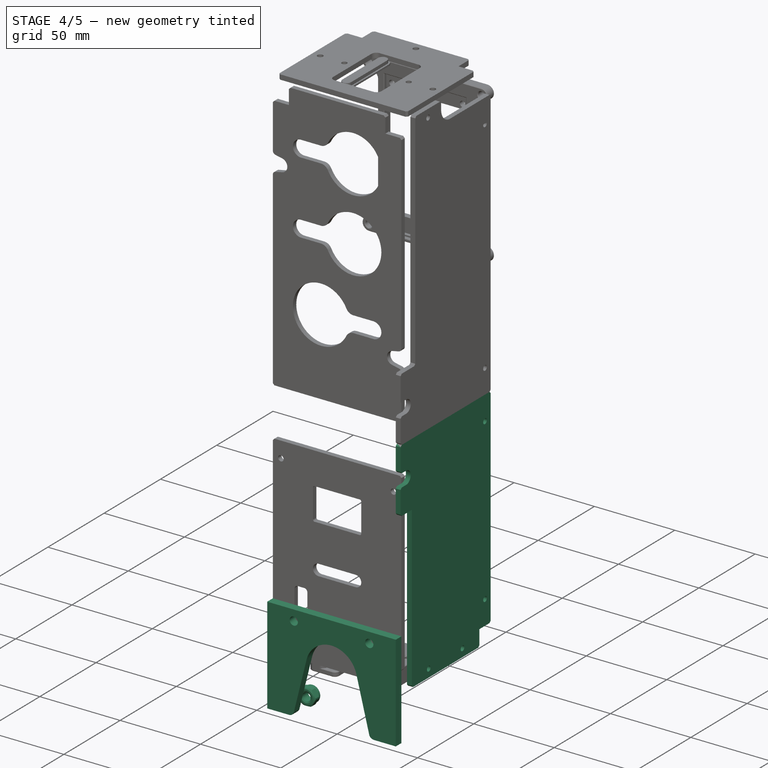
[diagram: stage 4 of 5 — iso view after this stage's code; geometry added in this stage tinted green]
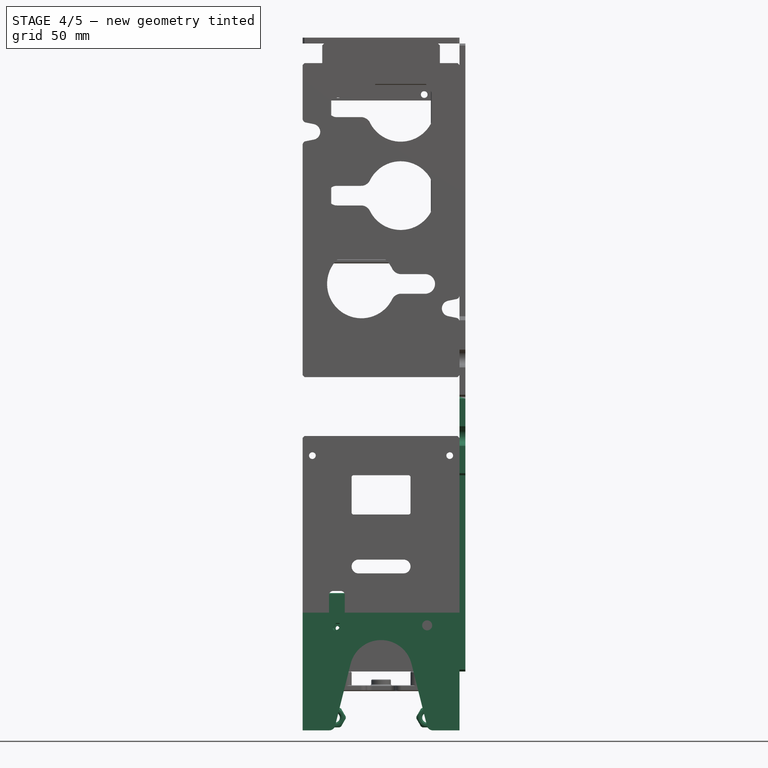
[diagram: stage 4 of 5 — front view after this stage's code; geometry added in this stage tinted green]
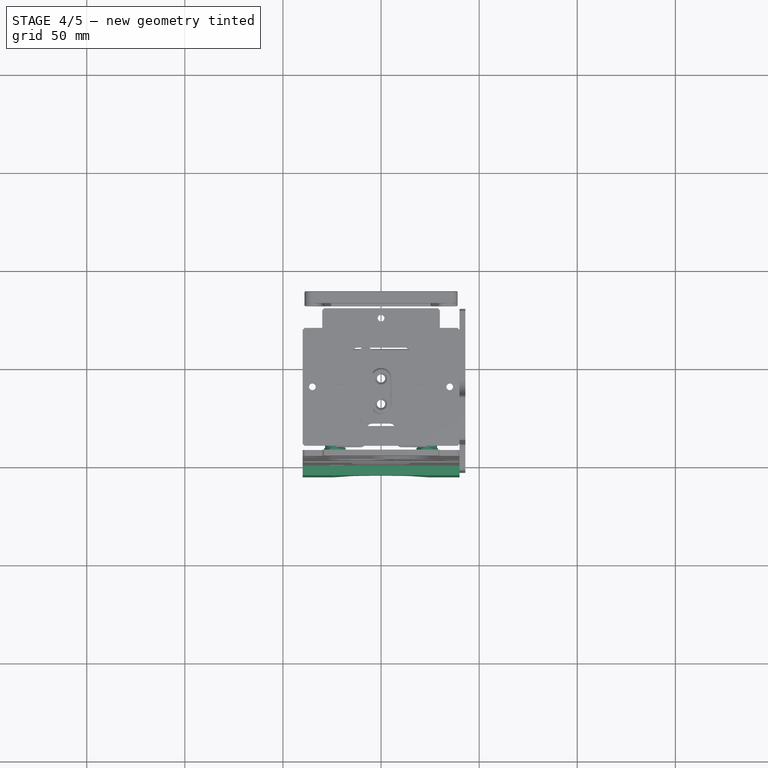
[diagram: stage 4 of 5 — top view after this stage's code; geometry added in this stage tinted green]
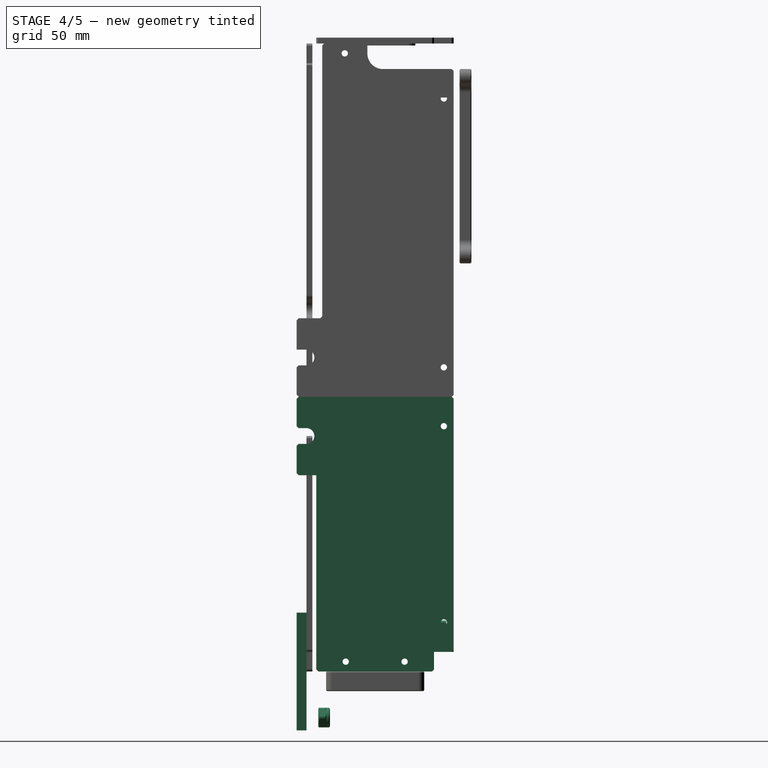
[diagram: stage 4 of 5 — right view after this stage's code; geometry added in this stage tinted green]
FEATURE [Sketcher::SketchObject] Sketch027
  ArcFitTolerance = 0
  AttachmentSupport = -> [XZ_Plane023]
  ExternalBSplineMaxDegree = 0
  ExternalBSplineTolerance = 0
  FullyConstrained = true
  InternalTolerance = 1e-06
  InvalidShape = false
  MakeInternals = false
  MapMode = 5
  Placement = pos=(0,0,0) rot=(1,0,0;1.5708rad)
  Support = -> [XZ_Plane023]
  TreeRank = 0
  ValidateShape = true
  sketch-geometry (16):
    g0: LineSegment StartX=-40 StartY=30 StartZ=0 EndX=40 EndY=30 EndZ=0
    g1: LineSegment StartX=40 StartY=30 StartZ=0 EndX=40 EndY=-30 EndZ=0
    g2: LineSegment [constr] StartX=40 StartY=-30 StartZ=0 EndX=-40 EndY=-30 EndZ=0
    g3: LineSegment StartX=-40 StartY=-30 StartZ=0 EndX=-40 EndY=30 EndZ=0
    g4: Circle [constr] CenterX=-23.4943 CenterY=-23.5 CenterZ=0 NormalX=0 NormalY=0 NormalZ=1 AngleXU=0 Radius=2.55
    g5: Circle CenterX=-23.4943 CenterY=23.5 CenterZ=0 NormalX=0 NormalY=0 NormalZ=1 AngleXU=0 Radius=2.55
    g6: Circle CenterX=23.4943 CenterY=23.5 CenterZ=0 NormalX=0 NormalY=0 NormalZ=1 AngleXU=0 Radius=2.55
    g7: Circle [constr] CenterX=23.4943 CenterY=-23.5 CenterZ=0 NormalX=0 NormalY=0 NormalZ=1 AngleXU=0 Radius=2.55
    g8: Circle [constr] CenterX=1e-16 CenterY=-5e-16 CenterZ=0 NormalX=0 NormalY=0 NormalZ=1 AngleXU=0 Radius=33.23
    g9: LineSegment StartX=-40 StartY=-30 StartZ=0 EndX=-24 EndY=-30 EndZ=0
    g10: LineSegment StartX=-24 StartY=-30 StartZ=0 EndX=-15.5215 EndY=3.88384 EndZ=0
    g11: LineSegment StartX=40 StartY=-30 StartZ=0 EndX=24 EndY=-30 EndZ=0
    g12: LineSegment StartX=24 StartY=-30 StartZ=0 EndX=15.5215 EndY=3.88384 EndZ=0
    g13: ArcOfCircle CenterX=1e-16 CenterY=-5e-16 CenterZ=0 NormalX=0 NormalY=0 NormalZ=1 AngleXU=0 Radius=16 StartAngle=0.245189 EndAngle=2.8964
    g14: LineSegment [constr] StartX=-22.3735 StartY=-23.5 StartZ=0 EndX=-23.4943 EndY=-23.5 EndZ=0
    g15: LineSegment [constr] StartX=-22.3735 StartY=-23.5 StartZ=0 EndX=-20.9443 EndY=-23.5 EndZ=0
  constraints (39):
    c: Coincident(g0,g1)
    c: Coincident(g1,g2)
    c: Coincident(g2,g3)
    c: Coincident(g3,g0)
    c: Horizontal(g0)
    c: Vertical(g3)
    c: Symmetric(g1,g2,g-2)
    c: DistanceX(g2,g2) = 80
    c: Symmetric(g0,g2,g-1)
    c: DistanceY(g1,g1) = 60
    c: Equal(g7,g4)
    c: Equal(g4,g5)
    c: Equal(g5,g6)
    c: Diameter(g6) = 5.1
    c: Symmetric(g6,g7,g-1)
    c: Symmetric(g6,g5,g-2)
    c: Symmetric(g5,g4,g-1)
    c: PointOnObject(g5,g8)
    c: DistanceY(g7,g6) = 47
    c: Symmetric(g6,g4,g8)
    c: Diameter(g8) = 66.46
    c: Coincident(g3,g9)
    c: PointOnObject(g9,g2)
    c: Coincident(g9,g10)
    c: Coincident(g1,g11)
    c: PointOnObject(g11,g2)
    c: Coincident(g11,g12)
    c: Coincident(g13,g8)
    c: Tangent(g13,g12) = -1.5708
    c: Tangent(g13,g10) = 1.5708
    c: Equal(g9,g11)
    c: Diameter(g13) = 32
    c: PointOnObject(g14,g10)
    c: Coincident(g14,g4)
    c: Horizontal(g14)
    c: Coincident(g15,g14)
    c: PointOnObject(g15,g14)
    c: PointOnObject(g15,g4)
    c: DistanceX(g9,g9) = 16
FEATURE [PartDesign::Pad] Pad018
  AddSubType = 0
  AutoTaperInnerAngle = false
  CheckUpToFaceLimits = true
  ClaimChildren = false
  Direction = (1,1,1)
  Fit = 0
  FitJoin = 0
  InnerFit = 0
  InnerFitJoin = 0
  InvalidShape = false
  Length = 5
  Length2 = 100
  Linearize = true
  NewSolid = false
  Placement = pos=(0,0,0) rot=(1,0,0;1.5708rad)
  Profile = -> Sketch027
  Refine = true
  Suppress = false
  TaperInnerAngle = 0
  TaperInnerAngleRev = 0
  TreeRank = 0
  Type = 0
  ValidateShape = true
  _ProfileBasedVersion = 1
FEATURE [PartDesign::Fillet] Fillet007
  AddSubType = 0
  Base = -> Pad018 [Edge2,Edge14]
  BaseFeature = -> Pad018
  InvalidShape = false
  NewSolid = false
  Placement = pos=(0,0,0) rot=(1,0,0;1.5708rad)
  Radius = 3
  Refine = true
  SupportTransform = false
  Suppress = false
  TreeRank = 0
  UseAllEdges = false
  ValidateShape = true
FEATURE [Sketcher::SketchObject] Sketch028
  ArcFitTolerance = 0
  AttachmentSupport = -> [XZ_Plane024]
  ExternalBSplineMaxDegree = 0
  ExternalBSplineTolerance = 0
  FullyConstrained = true
  InternalTolerance = 1e-06
  InvalidShape = false
  MakeInternals = false
  MapMode = 5
  Placement = pos=(0,0,0) rot=(1,0,0;1.5708rad)
  Support = -> [XZ_Plane024]
  TreeRank = 0
  ValidateShape = true
  sketch-geometry (13):
    g0: Circle CenterX=0 CenterY=0 CenterZ=0 NormalX=0 NormalY=0 NormalZ=1 AngleXU=0 Radius=20
    g1: Circle CenterX=-23.5 CenterY=23.5 CenterZ=0 NormalX=0 NormalY=0 NormalZ=1 AngleXU=0 Radius=2.55
    g2: Circle CenterX=23.5 CenterY=23.5 CenterZ=0 NormalX=0 NormalY=0 NormalZ=1 AngleXU=0 Radius=2.55
    g3: Circle CenterX=23.5 CenterY=-23.5 CenterZ=0 NormalX=0 NormalY=0 NormalZ=1 AngleXU=0 Radius=2.55
    g4: Circle CenterX=-23.5 CenterY=-23.5 CenterZ=0 NormalX=0 NormalY=0 NormalZ=1 AngleXU=0 Radius=2.55
    g5: LineSegment [constr] StartX=-23.5 StartY=23.5 StartZ=0 EndX=23.5 EndY=23.5 EndZ=0
    g6: LineSegment [constr] StartX=23.5 StartY=23.5 StartZ=0 EndX=23.5 EndY=-23.5 EndZ=0
    g7: LineSegment [constr] StartX=23.5 StartY=-23.5 StartZ=0 EndX=-23.5 EndY=-23.5 EndZ=0
    g8: LineSegment [constr] StartX=-23.5 StartY=-23.5 StartZ=0 EndX=-23.5 EndY=23.5 EndZ=0
    g9: LineSegment StartX=-28.5 StartY=28.5 StartZ=0 EndX=28.5 EndY=28.5 EndZ=0
    g10: LineSegment StartX=28.5 StartY=28.5 StartZ=0 EndX=28.5 EndY=-28.5 EndZ=0
    g11: LineSegment StartX=28.5 StartY=-28.5 StartZ=0 EndX=-28.5 EndY=-28.5 EndZ=0
    g12: LineSegment StartX=-28.5 StartY=-28.5 StartZ=0 EndX=-28.5 EndY=28.5 EndZ=0
  constraints (31):
    c: Coincident(g0,g-1)
    c: Diameter(g0) = 40
    c: Coincident(g5,g6)
    c: Coincident(g6,g7)
    c: Coincident(g7,g8)
    c: Coincident(g8,g5)
    c: Horizontal(g5)
    c: Horizontal(g7)
    c: Vertical(g6)
    c: Vertical(g8)
    c: Coincident(g5,g1)
    c: Coincident(g6,g3)
    c: Coincident(g7,g4)
    c: Coincident(g2,g5)
    c: Symmetric(g2,g4,g0)
    c: Equal(g5,g8)
    c: Equal(g2,g1)
    c: Equal(g1,g4)
    c: Equal(g4,g3)
    c: Diameter(g3) = 5.1
    c: DistanceX(g5,g5) = 47
    c: Coincident(g9,g10)
    c: Coincident(g10,g11)
    c: Coincident(g11,g12)
    c: Coincident(g12,g9)
    c: Horizontal(g9)
    c: Vertical(g10)
    c: Symmetric(g9,g11,g0)
    c: Symmetric(g9,g10,g0)
    c: Equal(g9,g12)
    c: DistanceX(g9,g9) = 57
FEATURE [PartDesign::Pad] Pad019
  AddSubType = 0
  AutoTaperInnerAngle = false
  CheckUpToFaceLimits = true
  ClaimChildren = false
  Direction = (1,1,1)
  Fit = 0
  FitJoin = 0
  InnerFit = 0
  InnerFitJoin = 0
  InvalidShape = false
  Length = 3
  Length2 = 100
  Linearize = true
  NewSolid = false
  Placement = pos=(0,0,0) rot=(1,0,0;1.5708rad)
  Profile = -> Sketch028
  Refine = true
  Suppress = false
  TaperInnerAngle = 0
  TaperInnerAngleRev = 0
  TreeRank = 0
  Type = 0
  ValidateShape = true
  _ProfileBasedVersion = 1
FEATURE [PartDesign::Fillet] Fillet006
  AddSubType = 0
  Base = -> Pad019 [Edge1,Edge2,Edge8,Edge5]
  BaseFeature = -> Pad019
  InvalidShape = false
  NewSolid = false
  Placement = pos=(0,0,0) rot=(1,0,0;1.5708rad)
  Radius = 3
  Refine = true
  SupportTransform = false
  Suppress = false
  TreeRank = 0
  UseAllEdges = false
  ValidateShape = true
FEATURE [Part::FeaturePython] Nut003  label="M6-Nut014"  # Fasteners workbench fastener (typed FeaturePython)
  InvalidShape = false
  Placement = pos=(23.5,6,-23.5) rot=(-1,0,0;1.5708rad)
  TreeRank = 0
  ValidateShape = true
  baseObject = -> Body018 [Edge14]
  diameter = 4
  invert = true
  leftHanded = false
  matchOuter = false
  offset = 6
  thread = false
  type = 5
FEATURE [Part::FeaturePython] Nut004  label="M6-Nut015"  # Fasteners workbench fastener (typed FeaturePython)
  InvalidShape = false
  Placement = pos=(-23.5,6,-23.5) rot=(-1,0,0;1.5708rad)
  TreeRank = 0
  ValidateShape = true
  baseObject = -> Body018 [Edge13]
  diameter = 4
  invert = true
  leftHanded = false
  matchOuter = false
  offset = 6
  thread = false
  type = 5
FEATURE [App::Part] Part006  label="StructureMakerbeam"
  ClaimAllChildren = false
  ExportMode = 1
  Group = -> [Link002,Link003,Link004,Link005,Link006,Link007,Link008,Link009,Link010,Link011,Link012,Link013,Link014,Link015,Link016,Link017,Link018,Link019,Link020]
  Origin = -> Origin156
  TreeRank = 0
  _ExportChildren = -> [Link002,Link003,Link004,Link005,Link006,Link007,Link008,Link009,Link010,Link011,Link012,Link013,Link014,Link015,Link016,Link017,Link018,Link019,Link020]
  _GroupVersion = 1
FEATURE [App::Link] Link021  label="Link021(SupportGauche3D)"
  AutoLinkLabel = true
  AutoPlacement = true
  LinkPlacement = pos=(-30,-5.00004,99.9998) rot=(0,0,1;1.5708rad)
  LinkedObject = -> <external structures.FCStd>#Part004
  Placement = pos=(-30,-5.00004,99.9998) rot=(0,0,1;1.5708rad)
  SyncGroupVisibility = false
  TreeRank = 0
  _LinkVersion = 1
FEATURE [App::Link] Link022  label="Link022(SupportDroit3D)"
  AutoLinkLabel = true
  AutoPlacement = true
  LinkPlacement = pos=(30,-5.00002,100) rot=(0,0,-1;1.5708rad)
  LinkedObject = -> <external structures.FCStd>#Part005
  Placement = pos=(30,-5.00002,100) rot=(0,0,-1;1.5708rad)
  SyncGroupVisibility = false
  TreeRank = 0
  _LinkVersion = 1
FEATURE [App::Link] Link023  label="Link023(PartSideModule)"
  AutoLinkLabel = true
  AutoPlacement = true
  LinkPlacement = pos=(0,-45,15) rot=(0,0,1;0rad)
  LinkedObject = -> <external structures.FCStd>#Part006
  Placement = pos=(0,-45,15) rot=(0,0,1;0rad)
  SyncGroupVisibility = false
  TreeRank = 0
  _LinkVersion = 1
FEATURE [App::Link] Link024  label="Link024(PartSideModule)"
  AutoLinkLabel = true
  AutoPlacement = true
  LinkPlacement = pos=(0,-45,245) rot=(0,0,1;0rad)
  LinkedObject = -> <external structures.FCStd>#Part006
  Placement = pos=(0,-45,245) rot=(0,0,1;0rad)
  SyncGroupVisibility = false
  TreeRank = 0
  _LinkVersion = 1
FEATURE [App::Part] Part003  label="Structure"
  ClaimAllChildren = false
  ExportMode = 1
  Group = -> [Part006,Link021,Link022,Link023,Link024]
  Origin = -> Origin030
  Placement = pos=(0,-1.19209e-06,10) rot=(0,0,1;0rad)
  TreeRank = 0
  _ExportChildren = -> [Part006,Link021,Link022,Link023,Link024]
  _GroupVersion = 1
FEATURE [App::Link] Link025  label="Link025(Poignee)"
  AutoLinkLabel = true
  AutoPlacement = true
  LinkPlacement = pos=(-3.40949e-06,39,315) rot=(1,0,0;0rad)
  LinkedObject = -> <external structures.FCStd>#Part
  Placement = pos=(-3.40949e-06,39,315) rot=(1,0,0;0rad)
  SyncGroupVisibility = false
  TreeRank = 0
  _LinkVersion = 1
FEATURE [TechDraw::DrawSVGTemplate] Template
  Height = 210
  Orientation = 1
  TreeRank = 0
  Width = 297
FEATURE [TechDraw::DrawProjGroupItem] ProjItem  label="Front"
  CoarseView = false
  Direction = (0,0,1)
  Focus = 100
  HardHidden = false
  IsoCount = 0
  IsoHidden = false
  IsoVisible = false
  LockPosition = true
  Perspective = false
  Rotation = 0
  RotationVector = (0,1,0)
  ScaleType = 2
  ScrubCount = 0
  SeamHidden = false
  SeamVisible = true
  SmoothHidden = false
  SmoothVisible = true
  Source = -> [Body072]
  TreeRank = 0
  Type = 0
  X = 0
  XDirection = (0,1,0)
  Y = 0
FEATURE [TechDraw::DrawProjGroup] ProjGroup
  Anchor = -> ProjItem
  AutoDistribute = true
  LockPosition = false
  ProjectionType = 0
  Rotation = 0
  ScaleType = 0
  Source = -> [Body072]
  TreeRank = 0
  Views = -> [ProjItem]
  X = 39.1213
  Y = 167.196
  spacingX = 15
  spacingY = 15
FEATURE [TechDraw::DrawPage] Page  label="Laser3mmCarterTop"
  KeepUpdated = true
  NextBalloonIndex = 1
  ProjectionType = 0
  Template = -> Template
  TreeRank = 0
  Views = -> [ProjGroup]
FEATURE [TechDraw::DrawSVGTemplate] Template001
  Height = 210
  Orientation = 1
  TreeRank = 0
  Width = 297
FEATURE [Sketcher::SketchObject] Sketch153
  ArcFitTolerance = 0
  AttachmentOffset = pos=(0,0,40) rot=(0,0,1;0rad)
  AttachmentSupport = -> [YZ_Plane091]
  ExternalBSplineMaxDegree = 0
  ExternalBSplineTolerance = 0
  FullyConstrained = true
  InternalTolerance = 1e-06
  InvalidShape = false
  MakeInternals = false
  MapMode = 5
  Placement = pos=(40,-8.9e-15,8.9e-15) rot=(0.57735,0.57735,0.57735;2.0944rad)
  Support = -> [YZ_Plane091]
  TreeRank = 26
  ValidateShape = true
  sketch-geometry (16):
    g0: LineSegment StartX=-5 StartY=140 StartZ=0 EndX=75 EndY=140 EndZ=0
    g1: LineSegment StartX=75 StartY=140 StartZ=0 EndX=75 EndY=10 EndZ=0
    g2: LineSegment StartX=75 StartY=10 StartZ=0 EndX=65 EndY=10 EndZ=0
    g3: LineSegment StartX=65 StartY=10 StartZ=0 EndX=65 EndY=5.15e-14 EndZ=0
    g4: LineSegment StartX=65 StartY=5.19e-14 StartZ=0 EndX=5 EndY=0 EndZ=0
    g5: LineSegment StartX=5 StartY=0 StartZ=0 EndX=5 EndY=100 EndZ=0
    g6: LineSegment StartX=5 StartY=100 StartZ=0 EndX=-5 EndY=100 EndZ=0
    g7: LineSegment StartX=-5 StartY=100 StartZ=0 EndX=-5 EndY=116 EndZ=0
    g8: Circle CenterX=20 CenterY=5 CenterZ=0 NormalX=0 NormalY=0 NormalZ=1 AngleXU=0 Radius=1.6
    g9: Circle CenterX=50 CenterY=5 CenterZ=0 NormalX=0 NormalY=0 NormalZ=1 AngleXU=0 Radius=1.6
    g10: Circle CenterX=70 CenterY=25 CenterZ=0 NormalX=0 NormalY=0 NormalZ=1 AngleXU=0 Radius=1.6
    g11: Circle CenterX=70 CenterY=125 CenterZ=0 NormalX=0 NormalY=0 NormalZ=1 AngleXU=0 Radius=1.6
    g12: ArcOfCircle CenterX=-1.37292e-11 CenterY=120 CenterZ=0 NormalX=0 NormalY=0 NormalZ=1 AngleXU=0 Radius=4 StartAngle=4.71239 EndAngle=7.85398
    g13: LineSegment StartX=-5 StartY=116 StartZ=0 EndX=-4.11307e-11 EndY=116 EndZ=0
    g14: LineSegment StartX=-3.5766e-12 StartY=124 StartZ=0 EndX=-5 EndY=124 EndZ=0
    g15: LineSegment StartX=-5 StartY=124 StartZ=0 EndX=-5 EndY=140 EndZ=0
  constraints (47):
    c: Horizontal(g0)
    c: Coincident(g0,g1)
    c: Vertical(g1)
    c: Coincident(g1,g2)
    c: Coincident(g2,g3)
    c: PointOnObject(g3,g-1)
    c: Vertical(g3)
    c: Coincident(g3,g4)
    c: PointOnObject(g4,g-1)
    c: Coincident(g4,g5)
    c: Vertical(g5)
    c: Coincident(g5,g6)
    c: Horizontal(g6)
    c: Coincident(g6,g7)
    c: Coincident(g15,g0)
    c: Vertical(g7)
    c: DistanceY(g6) = 100
    c: DistanceY(g0) = 140
    c: DistanceX(g6,g6) = 10
    c: DistanceX(g5) = 5
    c: DistanceX(g0,g0) = 80
    c: Equal(g2,g3)
    c: Horizontal(g2)
    c: DistanceX(g2,g2) = 10
    c: Equal(g9,g8)
    c: Equal(g8,g10)
    c: Equal(g10,g11)
    c: Diameter(g11) = 3.2
    c: Vertical(g11,g10)
    c: Horizontal(g8,g9)
    c: DistanceX(g9,g3) = 15
    c: DistanceX(g4,g8) = 15
    c: DistanceY(g8) = 5
    c: DistanceX(g10,g1) = 5
    c: DistanceY(g1,g10) = 15
    c: DistanceY(g11,g0) = 15
    c: Tangent(g13,g12) = -1.5708
    c: Tangent(g12,g14) = -1.5708
    c: Horizontal(g14)
    c: Radius(g12) = 4
    c: Equal(g15,g7)
    c: Vertical(g15)
    c: Coincident(g14,g15)
    c: PointOnObject(g7,g15)
    c: DistanceX(g14,g14) = 5
    c: Coincident(g13,g7)
    c: Horizontal(g13)
FEATURE [PartDesign::Pad] Pad085
  AddSubType = 0
  AlongSketchNormal = false
  AutoTaperInnerAngle = false
  CheckUpToFaceLimits = true
  ClaimChildren = false
  Direction = (1,-2e-16,3e-16)
  Fit = 0
  FitJoin = 0
  InnerFit = 0
  InnerFitJoin = 0
  InvalidShape = false
  Length = 3
  Length2 = 100
  Linearize = true
  NewSolid = false
  Placement = pos=(0,0,0) rot=(0.57735,0.57735,0.57735;2.0944rad)
  Profile = -> Sketch153
  Refine = true
  Suppress = false
  TaperInnerAngle = 0
  TaperInnerAngleRev = 0
  TreeRank = 27
  Type = 0
  ValidateShape = true
  _ProfileBasedVersion = 1
FEATURE [PartDesign::Chamfer] Chamfer056
  AddSubType = 0
  Angle = 45
  Base = -> Pad085 [Edge1,Edge32,Edge23,Edge20,Edge2,Edge5,Edge11,Edge14]
  BaseFeature = -> Pad085
  ChamferType = 0
  FlipDirection = false
  InvalidShape = false
  NewSolid = false
  Placement = pos=(0,0,0) rot=(0.57735,0.57735,0.57735;2.0944rad)
  Refine = true
  Size = 1
  Size2 = 1
  SupportTransform = false
  Suppress = false
  TreeRank = 28
  UseAllEdges = false
  ValidateShape = true
FEATURE [TechDraw::DrawSVGTemplate] Template014
  Height = 210
  Orientation = 1
  TreeRank = 384
  Width = 297
FEATURE [TechDraw::DrawSVGTemplate] Template015
  Height = 210
  Orientation = 1
  TreeRank = 390
  Width = 297
FEATURE [TechDraw::DrawProjGroupItem] ProjItem016  label="Front016"
  CoarseView = false
  Direction = (0,0,1)
  Focus = 100
  HardHidden = false
  IsoCount = 0
  IsoHidden = false
  IsoVisible = false
  LockPosition = true
  Perspective = false
  Rotation = 0
  RotationVector = (0,1,0)
  ScaleType = 2
  ScrubCount = 0
  SeamHidden = false
  SeamVisible = true
  SmoothHidden = false
  SmoothVisible = true
  TreeRank = 393
  Type = 0
  X = 0
  XDirection = (0,1,0)
  Y = 0
FEATURE [TechDraw::DrawProjGroup] ProjGroup016
  Anchor = -> ProjItem016
  AutoDistribute = true
  LockPosition = false
  ProjectionType = 0
  Rotation = 0
  ScaleType = 0
  TreeRank = 394
  Views = -> [ProjItem016]
  X = 14.285
  Y = 193.483
  spacingX = 15
  spacingY = 15
FEATURE [TechDraw::DrawPage] Page015  label="Laser3mmDiffuseur"
  KeepUpdated = true
  NextBalloonIndex = 1
  ProjectionType = 0
  Template = -> Template015
  TreeRank = 391
  Views = -> [ProjGroup016]
FEATURE [Part::SubShapeBinder] Import  label="Import(Chamfer001)"
  BindCopyOnChange = 0
  BindMode = 0
  ClaimChildren = false
  Context = -> <external ../robots_2023.FCStd>#Part001 [Link001.Group001.Link003.Body088.Import.]
  EdgeTolerance = 1e-06
  FillStyle = 0
  Fuse = false
  InvalidShape = false
  MakeFace = false
  MergeEdges = true
  OffsetFill = false
  OffsetIntersection = false
  OffsetJoinType = 0
  OffsetOpenResult = false
  Outline = false
  PartialLoad = false
  Relative = true
  SplitEdges = false
  Support = -> [Part[Body014.Chamfer001.]]
  TightBound = false
  TreeRank = 430
  ValidateShape = true
  _Version = 8
FEATURE [Sketcher::SketchObject] Sketch191
  ArcFitTolerance = 1e-06
  AttachmentSupport = -> [Import]
  ExternalBSplineMaxDegree = 5
  ExternalBSplineTolerance = 0.0001
  FullyConstrained = true
  InternalTolerance = 1e-06
  InvalidShape = false
  MakeInternals = true
  MapMode = 5
  Placement = pos=(0,65,1.44e-14) rot=(0,0.707107,0.707107;3.14159rad)
  Support = -> [Import]
  TreeRank = 431
  ValidateShape = true
  sketch-geometry (6):
    g0: LineSegment StartX=30 StartY=10 StartZ=0 EndX=15 EndY=10 EndZ=0
    g1: LineSegment StartX=15 StartY=10 StartZ=0 EndX=15 EndY=40 EndZ=0
    g2: LineSegment StartX=15 StartY=40 StartZ=0 EndX=30 EndY=40 EndZ=0
    g3: LineSegment StartX=30 StartY=40 StartZ=0 EndX=30 EndY=10 EndZ=0
    g4: Circle CenterX=22.5 CenterY=14 CenterZ=0 NormalX=0 NormalY=0 NormalZ=1 AngleXU=0 Radius=2.1
    g5: LineSegment [constr] StartX=22.5 StartY=10 StartZ=0 EndX=22.5 EndY=40 EndZ=0
  constraints (18):
    c: Coincident(g0,g1)
    c: Coincident(g1,g2)
    c: Coincident(g2,g3)
    c: Coincident(g3,g0)
    c: Horizontal(g0)
    c: Horizontal(g2)
    c: Vertical(g1)
    c: Vertical(g3)
    c: DistanceX(g2,g2) = 15
    c: DistanceY(g1,g1) = 30
    c: DistanceX(g-1,g0) = 30
    c: DistanceY(g-1,g0) = 10
    c: PointOnObject(g5,g0)
    c: Vertical(g5)
    c: Symmetric(g1,g2,g5)
    c: PointOnObject(g4,g5)
    c: Diameter(g4) = 4.2
    c: DistanceY(g5,g4) = 4
FEATURE [PartDesign::Pad] Pad101
  AddSubType = 0
  AlongSketchNormal = false
  AutoTaperInnerAngle = true
  CheckUpToFaceLimits = true
  ClaimChildren = false
  Direction = (0,1,2e-16)
  Fit = 0
  FitJoin = 0
  InnerFit = 0
  InnerFitJoin = 0
  InvalidShape = false
  Length = 10
  Length2 = 100
  Linearize = true
  NewSolid = false
  Profile = -> Sketch191
  Refine = true
  Suppress = false
  TaperInnerAngle = 0
  TaperInnerAngleRev = 0
  TreeRank = 432
  Type = 0
  ValidateShape = true
  _ProfileBasedVersion = 1
FEATURE [Sketcher::SketchObject] Sketch192
  ArcFitTolerance = 1e-06
  AttachmentSupport = -> [Pad101]
  ExternalBSplineMaxDegree = 5
  ExternalBSplineTolerance = 0.0001
  ExternalGeometry = -> [Pad101]
  FullyConstrained = true
  InternalTolerance = 1e-06
  InvalidShape = false
  MakeInternals = true
  MapMode = 5
  Placement = pos=(0,75,3.62e-14) rot=(0,0.707107,0.707107;3.14159rad)
  Support = -> [Pad101]
  TreeRank = 433
  ValidateShape = true
  sketch-geometry (4):
    g0: LineSegment StartX=15 StartY=40 StartZ=0 EndX=30 EndY=40 EndZ=0
    g1: LineSegment StartX=30 StartY=40 StartZ=0 EndX=30 EndY=18 EndZ=0
    g2: LineSegment StartX=30 StartY=18 StartZ=0 EndX=15 EndY=18 EndZ=0
    g3: LineSegment StartX=15 StartY=18 StartZ=0 EndX=15 EndY=40 EndZ=0
  constraints (10):
    c: Coincident(g0,g1)
    c: Coincident(g1,g2)
    c: Coincident(g2,g3)
    c: Coincident(g3,g0)
    c: Horizontal(g2)
    c: Vertical(g1)
    c: Vertical(g3)
    c: Coincident(g0,g-3)
    c: Coincident(g0,g-3)
    c: DistanceY(g-4,g2) = 8
FEATURE [PartDesign::Pocket] Pocket033
  AddSubType = 1
  AutoTaperInnerAngle = true
  BaseFeature = -> Pad101
  CheckUpToFaceLimits = true
  ClaimChildren = false
  Direction = (1,1,1)
  Fit = 0
  FitJoin = 0
  InnerFit = 0
  InnerFitJoin = 0
  InvalidShape = false
  Length = 8
  Length2 = 100
  Linearize = true
  NewSolid = false
  Profile = -> Sketch192
  Refine = true
  Suppress = false
  TaperInnerAngle = 0
  TaperInnerAngleRev = 0
  TreeRank = 434
  Type = 0
  ValidateShape = true
  _ProfileBasedVersion = 1
  _Version = 1
FEATURE [Sketcher::SketchObject] Sketch193
  ArcFitTolerance = 1e-06
  AttachmentSupport = -> [Pocket033]
  ExternalBSplineMaxDegree = 5
  ExternalBSplineTolerance = 0.0001
  ExternalGeometry = -> [Pocket033]
  FullyConstrained = true
  InternalTolerance = 1e-06
  InvalidShape = false
  MakeInternals = true
  MapMode = 5
  Placement = pos=(0,67,0) rot=(0,0.707107,0.707107;3.14159rad)
  Support = -> [Pocket033]
  TreeRank = 435
  ValidateShape = true
  sketch-geometry (4):
    g0: LineSegment StartX=15 StartY=18 StartZ=0 EndX=30 EndY=18 EndZ=0
    g1: LineSegment StartX=30 StartY=18 StartZ=0 EndX=30 EndY=26 EndZ=0
    g2: LineSegment StartX=30 StartY=26 StartZ=0 EndX=15 EndY=26 EndZ=0
    g3: LineSegment StartX=15 StartY=26 StartZ=0 EndX=15 EndY=18 EndZ=0
  constraints (10):
    c: Coincident(g0,g1)
    c: Coincident(g1,g2)
    c: Coincident(g2,g3)
    c: Coincident(g3,g0)
    c: Horizontal(g2)
    c: Vertical(g1)
    c: Vertical(g3)
    c: Coincident(g0,g-3)
    c: Coincident(g0,g-3)
    c: DistanceY(g3,g3) = 8
FEATURE [PartDesign::Pad] Pad102
  AddSubType = 0
  AlongSketchNormal = false
  AutoTaperInnerAngle = true
  BaseFeature = -> Pocket033
  CheckUpToFaceLimits = true
  ClaimChildren = false
  Direction = (0,1,-2e-16)
  Fit = 0
  FitJoin = 0
  InnerFit = 0
  InnerFitJoin = 0
  InvalidShape = false
  Length = 1.5
  Length2 = 100
  Linearize = true
  NewSolid = false
  Profile = -> Sketch193
  Refine = true
  Suppress = false
  TaperInnerAngle = 0
  TaperInnerAngleRev = 0
  TreeRank = 436
  Type = 0
  ValidateShape = true
  _ProfileBasedVersion = 1
FEATURE [Sketcher::SketchObject] Sketch194
  ArcFitTolerance = 1e-06
  AttachmentSupport = -> [Pad102]
  ExternalBSplineMaxDegree = 5
  ExternalBSplineTolerance = 0.0001
  ExternalGeometry = -> [Pad102]
  FullyConstrained = true
  InternalTolerance = 1e-06
  InvalidShape = false
  MakeInternals = true
  MapMode = 5
  Placement = pos=(0,-8e-15,18) rot=(0,0,1;0rad)
  Support = -> [Pad102]
  TreeRank = 437
  ValidateShape = true
  sketch-geometry (4):
    g0: LineSegment [constr] StartX=0 StartY=75 StartZ=0 EndX=-22.5 EndY=75 EndZ=0
    g1: LineSegment [constr] StartX=-22.5 StartY=75 StartZ=0 EndX=-1.1511e-12 EndY=-45 EndZ=0
    g2: LineSegment StartX=-30 StartY=68.5 StartZ=0 EndX=-15 EndY=71.3125 EndZ=0
    g3: LineSegment StartX=-15 StartY=71.3125 StartZ=0 EndX=-15 EndY=68.5 EndZ=0
  constraints (11):
    c: PointOnObject(g0,g-2)
    c: Horizontal(g0)
    c: Coincident(g1,g0)
    c: PointOnObject(g1,g-2)
    c: DistanceY(g1,g0) = 120
    c: Symmetric(g-3,g-3,g0)
    c: Coincident(g2,g-4)
    c: Coincident(g3,g2)
    c: Coincident(g3,g-4)
    c: Vertical(g3)
    c: Perpendicular(g1,g2)
FEATURE [PartDesign::Pad] Pad103
  AddSubType = 0
  AlongSketchNormal = false
  AutoTaperInnerAngle = true
  BaseFeature = -> Pad102
  CheckUpToFaceLimits = true
  ClaimChildren = false
  Direction = (0,-4e-16,1)
  Fit = 0
  FitJoin = 0
  InnerFit = 0
  InnerFitJoin = 0
  InvalidShape = false
  Length = 10
  Length2 = 100
  Linearize = true
  NewSolid = false
  Profile = -> Sketch194
  Refine = true
  Suppress = false
  TaperInnerAngle = 0
  TaperInnerAngleRev = 0
  TreeRank = 438
  Type = 3
  UpToFace = -> Pad102 [Face9]
  ValidateShape = true
  _ProfileBasedVersion = 1
FEATURE [Sketcher::SketchObject] Sketch195
  ArcFitTolerance = 1e-06
  AttachmentSupport = -> [Pad103]
  ExternalBSplineMaxDegree = 5
  ExternalBSplineTolerance = 0.0001
  ExternalGeometry = -> [Pad103]
  FullyConstrained = true
  InternalTolerance = 1e-06
  InvalidShape = false
  MakeInternals = true
  MapMode = 5
  Placement = pos=(-13.4264,71.6075,3.18e-14) rot=(-0.065577,0.705585,0.705585;3.27256rad)
  Support = -> [Pad103]
  TreeRank = 439
  ValidateShape = true
  sketch-geometry (2):
    g0: LineSegment [constr] StartX=1.60101 StartY=26 StartZ=0 EndX=16.8624 EndY=18 EndZ=0
    g1: Circle CenterX=9.2317 CenterY=22 CenterZ=0 NormalX=0 NormalY=0 NormalZ=1 AngleXU=0 Radius=1.2
  constraints (4):
    c: Coincident(g0,g-3)
    c: Coincident(g0,g-4)
    c: Diameter(g1) = 2.4
    c: Symmetric(g-3,g-4,g1)
FEATURE [PartDesign::Pocket] Pocket034
  AddSubType = 1
  AutoTaperInnerAngle = true
  BaseFeature = -> Pad103
  CheckUpToFaceLimits = true
  ClaimChildren = false
  Direction = (1,1,1)
  Fit = 0
  FitJoin = 0
  InnerFit = 0
  InnerFitJoin = 0
  InvalidShape = false
  Length = 5
  Length2 = 100
  Linearize = true
  NewSolid = false
  Profile = -> Sketch195
  Refine = true
  Suppress = false
  TaperInnerAngle = 0
  TaperInnerAngleRev = 0
  TreeRank = 440
  Type = 1
  ValidateShape = true
  _ProfileBasedVersion = 1
  _Version = 1
FEATURE [Sketcher::SketchObject] Sketch196
  ArcFitTolerance = 1e-06
  AttachmentOffset = pos=(0,0,-3) rot=(0,0,1;0rad)
  AttachmentSupport = -> [Pocket034]
  ExternalBSplineMaxDegree = 5
  ExternalBSplineTolerance = 0.0001
  ExternalGeometry = -> [Pocket034]
  FullyConstrained = true
  InternalTolerance = 1e-06
  InvalidShape = false
  MakeInternals = true
  MapMode = 5
  Placement = pos=(-12.8735,68.6589,3e-14) rot=(-0.065577,0.705585,0.705585;3.27256rad)
  Support = -> [Pocket034]
  TreeRank = 441
  ValidateShape = true
  sketch-geometry (7):
    g0: LineSegment StartX=6.63363 StartY=22 StartZ=0 EndX=7.93267 EndY=19.75 EndZ=0
    g1: LineSegment StartX=7.93267 StartY=19.75 StartZ=0 EndX=10.5307 EndY=19.75 EndZ=0
    g2: LineSegment StartX=10.5307 StartY=19.75 StartZ=0 EndX=11.8298 EndY=22 EndZ=0
    g3: LineSegment StartX=11.8298 StartY=22 StartZ=0 EndX=10.5307 EndY=24.25 EndZ=0
    g4: LineSegment StartX=10.5307 StartY=24.25 StartZ=0 EndX=7.93267 EndY=24.25 EndZ=0
    g5: LineSegment StartX=7.93267 StartY=24.25 StartZ=0 EndX=6.63363 EndY=22 EndZ=0
    g6: Circle [constr] CenterX=9.2317 CenterY=22 CenterZ=0 NormalX=0 NormalY=0 NormalZ=1 AngleXU=0 Radius=2.59808
  constraints (16):
    c: Coincident(g0,g1)
    c: Coincident(g1,g2)
    c: Coincident(g2,g3)
    c: Coincident(g3,g4)
    c: Coincident(g4,g5)
    c: Coincident(g5,g0)
    c: Equal(g0, g1-g5) x5
    c: PointOnObject(g0,g6)
    c: PointOnObject(g1,g6)
    c: PointOnObject(g2,g6)
    c: PointOnObject(g3,g6)
    c: PointOnObject(g4,g6)
    c: PointOnObject(g5,g6)
    c: Coincident(g6,g-3)
    c: Horizontal(g4)
    c: DistanceY(g1,g3) = 4.5
FEATURE [PartDesign::Pocket] Pocket035
  AddSubType = 1
  AutoTaperInnerAngle = true
  BaseFeature = -> Pocket034
  CheckUpToFaceLimits = true
  ClaimChildren = false
  Direction = (1,1,1)
  Fit = 0
  FitJoin = 0
  InnerFit = 0
  InnerFitJoin = 0
  InvalidShape = false
  Length = 5
  Length2 = 100
  Linearize = true
  NewSolid = false
  Profile = -> Sketch196
  Refine = true
  Suppress = false
  TaperInnerAngle = 0
  TaperInnerAngleRev = 0
  TreeRank = 442
  Type = 0
  ValidateShape = true
  _ProfileBasedVersion = 1
  _Version = 1
FEATURE [PartDesign::Chamfer] Chamfer066
  AddSubType = 0
  Angle = 45
  Base = -> Pocket035 [Edge2,Edge1,Edge18,Edge6]
  BaseFeature = -> Pocket035
  ChamferType = 0
  FlipDirection = false
  InvalidShape = false
  NewSolid = false
  Refine = true
  Size = 2
  Size2 = 1
  SupportTransform = false
  Suppress = false
  TreeRank = 443
  UseAllEdges = false
  ValidateShape = true
FEATURE [PartDesign::Chamfer] Chamfer067
  AddSubType = 0
  Angle = 45
  Base = -> Chamfer066 [Edge26,Edge58]
  BaseFeature = -> Chamfer066
  ChamferType = 0
  FlipDirection = false
  InvalidShape = false
  NewSolid = false
  Refine = true
  Size = 0.5
  Size2 = 1
  SupportTransform = false
  Suppress = false
  TreeRank = 444
  UseAllEdges = false
  ValidateShape = true
FEATURE [PartDesign::Chamfer] Chamfer068
  AddSubType = 0
  Angle = 45
  Base = -> Chamfer067 [Edge27,Edge20,Edge26,Edge21]
  BaseFeature = -> Chamfer067
  ChamferType = 0
  FlipDirection = false
  InvalidShape = false
  NewSolid = false
  Refine = true
  Size = 1
  Size2 = 1
  SupportTransform = false
  Suppress = false
  TreeRank = 445
  UseAllEdges = false
  ValidateShape = true
FEATURE [PartDesign::Chamfer] Chamfer069
  AddSubType = 0
  Angle = 45
  Base = -> Chamfer068 [Face12]
  BaseFeature = -> Chamfer068
  ChamferType = 0
  FlipDirection = false
  InvalidShape = false
  NewSolid = false
  Refine = true
  Size = 0.4
  Size2 = 1
  SupportTransform = false
  Suppress = false
  TreeRank = 446
  UseAllEdges = false
  ValidateShape = true
FEATURE [PartDesign::Fillet] Fillet067
  AddSubType = 0
  Base = -> Pocket036 [Edge75,Edge77,Edge72,Edge74]
  BaseFeature = -> Pocket036
  InvalidShape = false
  NewSolid = false
  Radius = 2
  Refine = true
  SupportTransform = false
  Suppress = false
  TreeRank = 450
  UseAllEdges = false
  ValidateShape = true
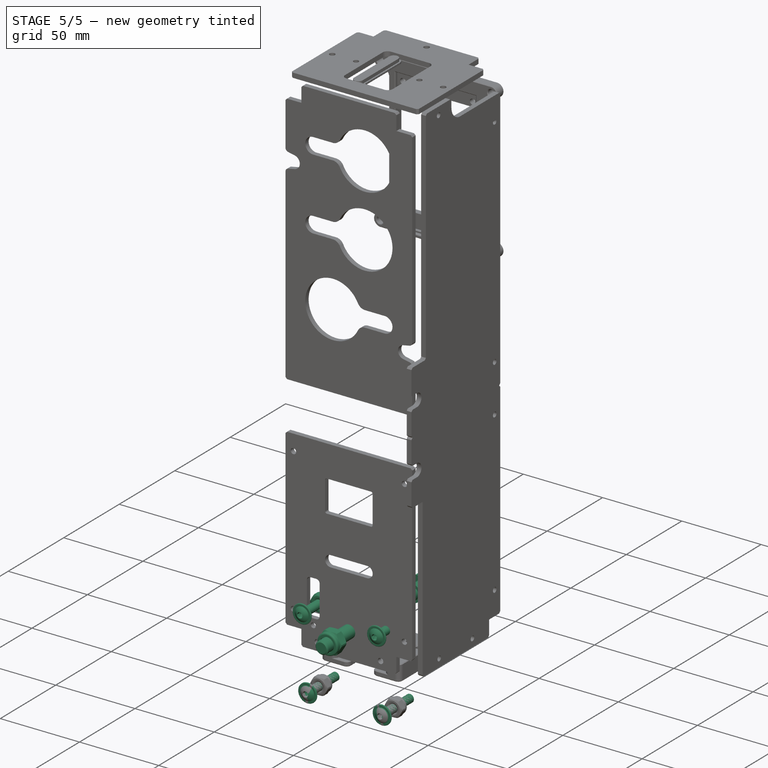
[diagram: stage 5 of 5 — iso view after this stage's code; geometry added in this stage tinted green]
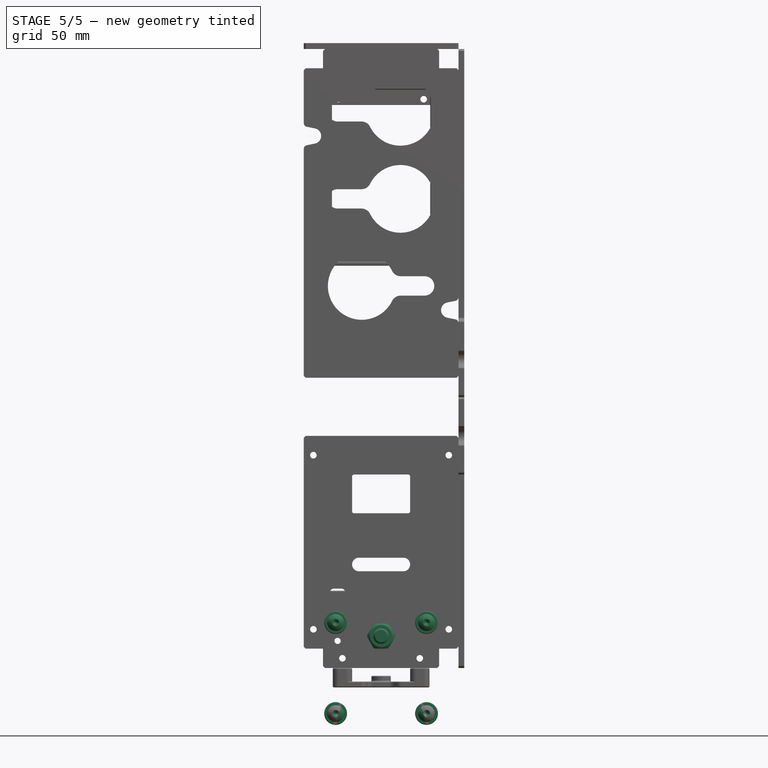
[diagram: stage 5 of 5 — front view after this stage's code; geometry added in this stage tinted green]
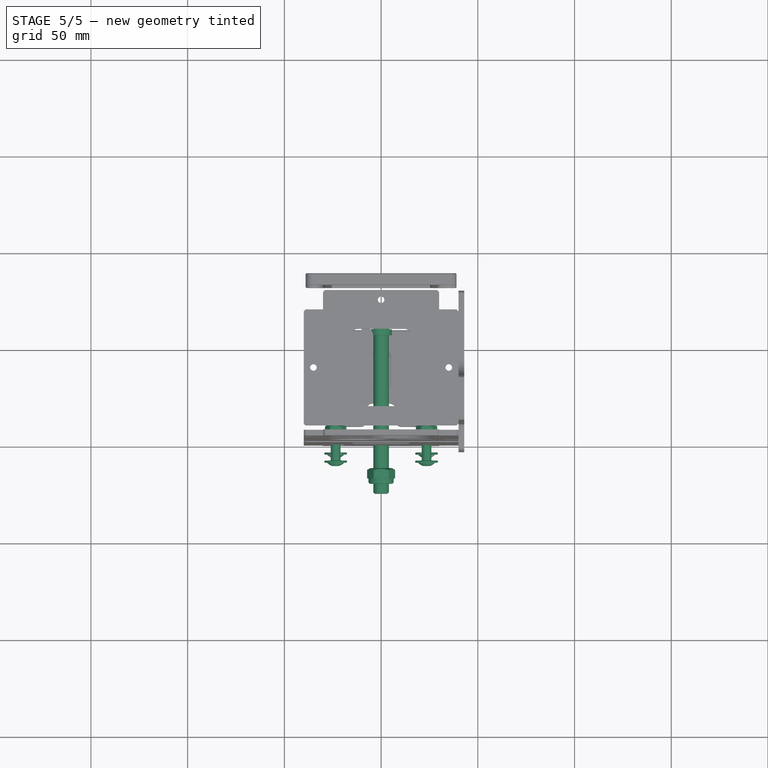
[diagram: stage 5 of 5 — top view after this stage's code; geometry added in this stage tinted green]
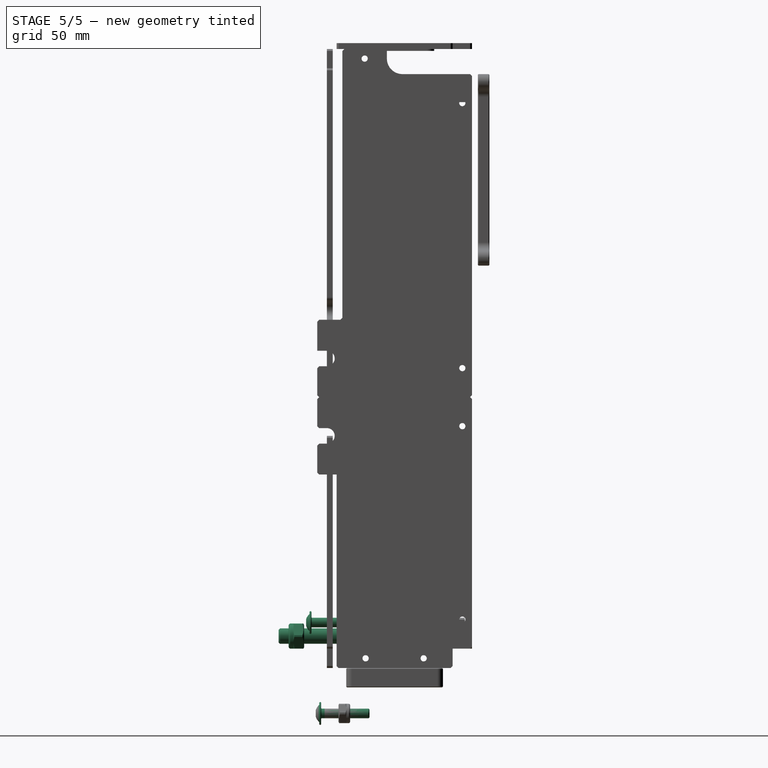
[diagram: stage 5 of 5 — right view after this stage's code; geometry added in this stage tinted green]
FEATURE [PartDesign::Plane] DatumPlane001
  AttachmentOffset = pos=(0,0,-65) rot=(0,0,1;0rad)
  AttachmentSupport = -> [XZ_Plane017]
  InvalidShape = false
  Length = 100
  MapMode = 5
  MinimumLength = 10
  MinimumWidth = 10
  Placement = pos=(0,65,1.44e-14) rot=(1,0,0;1.5708rad)
  ResizeMode = 1
  Support = -> [XZ_Plane017]
  TreeRank = 0
  ValidateShape = true
  Width = 100
FEATURE [Sketcher::SketchObject] Sketch023
  ArcFitTolerance = 0
  AttachmentSupport = -> [DatumPlane001]
  ExternalBSplineMaxDegree = 0
  ExternalBSplineTolerance = 0
  FullyConstrained = true
  InternalTolerance = 1e-06
  InvalidShape = false
  MakeInternals = false
  MapMode = 5
  Placement = pos=(0,65,1.44e-14) rot=(1,0,0;1.5708rad)
  Support = -> [DatumPlane001]
  TreeRank = 0
  ValidateShape = true
  sketch-geometry (8):
    g0: LineSegment StartX=-30 StartY=0 StartZ=0 EndX=-30 EndY=10 EndZ=0
    g1: LineSegment StartX=-30 StartY=10 StartZ=0 EndX=-40 EndY=10 EndZ=0
    g2: LineSegment StartX=-40 StartY=10 StartZ=0 EndX=-40 EndY=30 EndZ=0
    g3: LineSegment StartX=-40 StartY=30 StartZ=0 EndX=40 EndY=30 EndZ=0
    g4: LineSegment StartX=40 StartY=30 StartZ=0 EndX=40 EndY=10 EndZ=0
    g5: LineSegment StartX=40 StartY=10 StartZ=0 EndX=30 EndY=10 EndZ=0
    g6: LineSegment StartX=30 StartY=10 StartZ=0 EndX=30 EndY=3.60814e-11 EndZ=0
    g7: LineSegment StartX=30 StartY=3.60814e-11 StartZ=0 EndX=-30 EndY=0 EndZ=0
  constraints (22):
    c: PointOnObject(g0,g-1)
    c: Vertical(g0)
    c: Coincident(g0,g1)
    c: Horizontal(g1)
    c: Coincident(g1,g2)
    c: Vertical(g2)
    c: Coincident(g2,g3)
    c: Horizontal(g3)
    c: Coincident(g3,g4)
    c: Vertical(g4)
    c: Coincident(g4,g5)
    c: Horizontal(g5)
    c: Coincident(g5,g6)
    c: Vertical(g6)
    c: Coincident(g6,g7)
    c: Coincident(g7,g0)
    c: Symmetric(g0,g6,g-1)
    c: DistanceX(g7,g7) = 60
    c: DistanceY(g0,g0) = 10
    c: Symmetric(g1,g4,g-2)
    c: Equal(g1,g0)
    c: DistanceY(g6,g3) = 30
FEATURE [PartDesign::Pad] Pad015
  AddSubType = 0
  AutoTaperInnerAngle = false
  CheckUpToFaceLimits = true
  ClaimChildren = false
  Direction = (1,1,1)
  Fit = 0
  FitJoin = 0
  InnerFit = 0
  InnerFitJoin = 0
  InvalidShape = false
  Length = 5
  Length2 = 100
  Linearize = true
  NewSolid = false
  Placement = pos=(0,65,1.44e-14) rot=(1,0,0;1.5708rad)
  Profile = -> Sketch023
  Refine = true
  Suppress = false
  TaperInnerAngle = 0
  TaperInnerAngleRev = 0
  TreeRank = 0
  Type = 0
  ValidateShape = true
  _ProfileBasedVersion = 1
FEATURE [Sketcher::SketchObject] Sketch024
  ArcFitTolerance = 0
  AttachmentSupport = -> [DatumPlane001]
  ExternalBSplineMaxDegree = 0
  ExternalBSplineTolerance = 0
  ExternalGeometry = -> [Pad015]
  FullyConstrained = true
  InternalTolerance = 1e-06
  InvalidShape = false
  MakeInternals = false
  MapMode = 5
  Placement = pos=(0,65,1.44e-14) rot=(1,0,0;1.5708rad)
  Support = -> [DatumPlane001]
  TreeRank = 0
  ValidateShape = true
  sketch-geometry (5):
    g0: Circle CenterX=0 CenterY=16.5 CenterZ=0 NormalX=0 NormalY=0 NormalZ=1 AngleXU=0 Radius=4
    g1: Circle CenterX=-35 CenterY=20 CenterZ=0 NormalX=0 NormalY=0 NormalZ=1 AngleXU=0 Radius=1.75
    g2: Circle CenterX=35 CenterY=20 CenterZ=0 NormalX=0 NormalY=0 NormalZ=1 AngleXU=0 Radius=1.75
    g3: LineSegment [constr] StartX=-35 StartY=10 StartZ=0 EndX=-35 EndY=30 EndZ=0
    g4: LineSegment [constr] StartX=-30 StartY=5 StartZ=0 EndX=30 EndY=5 EndZ=0
  constraints (13):
    c: PointOnObject(g0,g-2)
    c: DistanceY(g-1,g0) = 16.5
    c: Diameter(g0) = 8
    c: Vertical(g3)
    c: Symmetric(g-3,g-4,g3)
    c: Symmetric(g1,g2,g-2)
    c: PointOnObject(g3,g-7)
    c: Symmetric(g3,g3,g1)
    c: Equal(g1,g2)
    c: Diameter(g1) = 3.5
    c: PointOnObject(g4,g-4)
    c: Horizontal(g4)
    c: Symmetric(g-6,g-5,g4)
FEATURE [PartDesign::Pocket] Pocket009
  AddSubType = 1
  AutoTaperInnerAngle = false
  BaseFeature = -> Pad015
  CheckUpToFaceLimits = true
  ClaimChildren = false
  Direction = (1,1,1)
  Fit = 0
  FitJoin = 0
  InnerFit = 0
  InnerFitJoin = 0
  InvalidShape = false
  Length = 5
  Length2 = 100
  Linearize = true
  NewSolid = false
  Placement = pos=(0,65,1.44e-14) rot=(1,0,0;1.5708rad)
  Profile = -> Sketch024
  Refine = true
  Reversed = true
  Suppress = false
  TaperInnerAngle = 0
  TaperInnerAngleRev = 0
  TreeRank = 0
  Type = 1
  ValidateShape = true
  _ProfileBasedVersion = 1
  _Version = 0
FEATURE [PartDesign::Chamfer] Chamfer001
  AddSubType = 0
  Angle = 45
  Base = -> Pocket009 [Edge29,Edge30,Edge5,Edge1,Edge8,Edge28]
  BaseFeature = -> Pocket009
  ChamferType = 0
  FlipDirection = false
  InvalidShape = false
  NewSolid = false
  Placement = pos=(0,65,1.44e-14) rot=(1,0,0;1.5708rad)
  Refine = true
  Size = 1
  Size2 = 1
  SupportTransform = false
  Suppress = false
  TreeRank = 0
  UseAllEdges = false
  ValidateShape = true
FEATURE [PartDesign::Body] Body014  label="PlaqueExterneSupportRoue"
  AutoGroupSolids = false
  ClaimAllChildren = false
  ExportMode = 0
  Group = -> [DatumPlane001,Sketch023,Pad015,Sketch024,Pocket009,Chamfer001]
  InvalidShape = false
  Origin = -> Origin020
  SingleSolid = true
  Tip = -> Chamfer001
  TreeRank = 0
  ValidateShape = true
  _ExportChildren = -> [DatumPlane001,Pad015,Pocket009,Chamfer001]
  _GroupVersion = 1
FEATURE [Part::FeaturePython] Screw004  label="M8x90-Screw"  # Fasteners workbench fastener (typed FeaturePython)
  InvalidShape = false
  Placement = pos=(0,65,16.5) rot=(-1,0,0;1.5708rad)
  TreeRank = 0
  ValidateShape = true
  baseObject = -> Body014 [?Edge21]
  diameter = 9
  invert = true
  leftHanded = false
  length = 18
  lengthCustom = 90
  matchOuter = false
  offset = 0
  thread = false
  type = 26
FEATURE [PartDesign::Plane] DatumPlane002
  AttachmentOffset = pos=(0,0,-60) rot=(0,0,1;0rad)
  AttachmentSupport = -> [XZ_Plane018]
  InvalidShape = false
  Length = 100
  MapMode = 5
  MinimumLength = 10
  MinimumWidth = 10
  Placement = pos=(0,60,1.33e-14) rot=(1,0,0;1.5708rad)
  ResizeMode = 1
  Support = -> [XZ_Plane018]
  TreeRank = 0
  ValidateShape = true
  Width = 100
FEATURE [Sketcher::SketchObject] Sketch025
  ArcFitTolerance = 0
  AttachmentSupport = -> [DatumPlane002]
  ExternalBSplineMaxDegree = 0
  ExternalBSplineTolerance = 0
  FullyConstrained = true
  InternalTolerance = 1e-06
  InvalidShape = false
  MakeInternals = false
  MapMode = 5
  Placement = pos=(0,60,1.33e-14) rot=(1,0,0;1.5708rad)
  Support = -> [DatumPlane002]
  TreeRank = 0
  ValidateShape = true
  sketch-geometry (2):
    g0: Circle CenterX=0 CenterY=16.5 CenterZ=0 NormalX=0 NormalY=0 NormalZ=1 AngleXU=0 Radius=4
    g1: Circle CenterX=0 CenterY=16.5 CenterZ=0 NormalX=0 NormalY=0 NormalZ=1 AngleXU=0 Radius=5.5
  constraints (5):
    c: DistanceY(g-1,g0) = 16.5
    c: PointOnObject(g0,g-2)
    c: Coincident(g1,g0)
    c: Diameter(g0) = 8
    c: Diameter(g1) = 11
FEATURE [PartDesign::Pad] Pad016
  AddSubType = 0
  AutoTaperInnerAngle = false
  CheckUpToFaceLimits = true
  ClaimChildren = false
  Direction = (1,1,1)
  Fit = 0
  FitJoin = 0
  InnerFit = 0
  InnerFitJoin = 0
  InvalidShape = false
  Length = 3
  Length2 = 100
  Linearize = true
  NewSolid = false
  Placement = pos=(0,60,1.33e-14) rot=(1,0,0;1.5708rad)
  Profile = -> Sketch025
  Refine = true
  Suppress = false
  TaperInnerAngle = 0
  TaperInnerAngleRev = 0
  TreeRank = 0
  Type = 0
  ValidateShape = true
  _ProfileBasedVersion = 1
FEATURE [PartDesign::Body] Body015  label="RondelleLaser3mm"
  AutoGroupSolids = false
  ClaimAllChildren = false
  ExportMode = 0
  Group = -> [DatumPlane002,Sketch025,Pad016]
  InvalidShape = false
  Origin = -> Origin021
  SingleSolid = true
  Tip = -> Pad016
  TreeRank = 0
  ValidateShape = true
  _ExportChildren = -> [DatumPlane002,Pad016]
  _GroupVersion = 1
FEATURE [PartDesign::Plane] DatumPlane003
  AttachmentOffset = pos=(0,0,5) rot=(0,0,1;0rad)
  AttachmentSupport = -> [XZ_Plane020]
  InvalidShape = false
  Length = 100
  MapMode = 5
  MinimumLength = 10
  MinimumWidth = 10
  Placement = pos=(0,-5,-1.1e-15) rot=(1,0,0;1.5708rad)
  ResizeMode = 1
  Support = -> [XZ_Plane020]
  TreeRank = 0
  ValidateShape = true
  Width = 100
FEATURE [Sketcher::SketchObject] Sketch026
  ArcFitTolerance = 0
  AttachmentSupport = -> [DatumPlane003]
  ExternalBSplineMaxDegree = 0
  ExternalBSplineTolerance = 0
  FullyConstrained = true
  InternalTolerance = 1e-06
  InvalidShape = false
  MakeInternals = false
  MapMode = 5
  Placement = pos=(0,-5,-1.1e-15) rot=(1,0,0;1.5708rad)
  Support = -> [DatumPlane003]
  TreeRank = 0
  ValidateShape = true
  sketch-geometry (24):
    g0: LineSegment [constr] StartX=-40 StartY=0 StartZ=0 EndX=40 EndY=0 EndZ=0
    g1: LineSegment [constr] StartX=40 StartY=0 StartZ=0 EndX=40 EndY=45 EndZ=0
    g2: LineSegment [constr] StartX=40 StartY=45 StartZ=0 EndX=-40 EndY=45 EndZ=0
    g3: LineSegment [constr] StartX=-40 StartY=45 StartZ=0 EndX=-40 EndY=0 EndZ=0
    g4: Circle CenterX=0 CenterY=16.5 CenterZ=0 NormalX=0 NormalY=0 NormalZ=1 AngleXU=0 Radius=4
    g5: LineSegment StartX=-40 StartY=45 StartZ=0 EndX=-30 EndY=45 EndZ=0
    g6: LineSegment StartX=-30 StartY=45 StartZ=0 EndX=-15 EndY=30 EndZ=0
    g7: LineSegment StartX=-15 StartY=30 StartZ=0 EndX=15 EndY=30 EndZ=0
    g8: LineSegment StartX=15 StartY=30 StartZ=0 EndX=30 EndY=45 EndZ=0
    g9: LineSegment StartX=30 StartY=45 StartZ=0 EndX=40 EndY=45 EndZ=0
    g10: LineSegment StartX=-40 StartY=45 StartZ=0 EndX=-40 EndY=10 EndZ=0
    g11: LineSegment StartX=-30 StartY=0 StartZ=0 EndX=30 EndY=0 EndZ=0
    g12: LineSegment StartX=40 StartY=10 StartZ=0 EndX=40 EndY=45 EndZ=0
    g13: LineSegment StartX=-40 StartY=10 StartZ=0 EndX=-35 EndY=10 EndZ=0
    g14: LineSegment StartX=-30 StartY=0 StartZ=0 EndX=-30 EndY=5 EndZ=0
    g15: LineSegment StartX=30 StartY=0 StartZ=0 EndX=30 EndY=5 EndZ=0
    g16: LineSegment StartX=40 StartY=10 StartZ=0 EndX=35 EndY=10 EndZ=0
    g17: ArcOfCircle CenterX=-35 CenterY=5 CenterZ=0 NormalX=0 NormalY=0 NormalZ=1 AngleXU=0 Radius=5 StartAngle=1e-16 EndAngle=1.5708
    g18: ArcOfCircle CenterX=35 CenterY=5 CenterZ=0 NormalX=0 NormalY=0 NormalZ=1 AngleXU=0 Radius=5 StartAngle=1.5708 EndAngle=3.14159
    g19: LineSegment [constr] StartX=-35 StartY=10 StartZ=0 EndX=-35 EndY=45 EndZ=0
    g20: Circle CenterX=-35 CenterY=16 CenterZ=0 NormalX=0 NormalY=0 NormalZ=1 AngleXU=0 Radius=1.6
    g21: Circle CenterX=-35 CenterY=39 CenterZ=0 NormalX=0 NormalY=0 NormalZ=1 AngleXU=0 Radius=1.6
    g22: Circle CenterX=35 CenterY=39 CenterZ=0 NormalX=0 NormalY=0 NormalZ=1 AngleXU=0 Radius=1.6
    g23: Circle CenterX=35 CenterY=16 CenterZ=0 NormalX=0 NormalY=0 NormalZ=1 AngleXU=0 Radius=1.6
  constraints (64):
    c: Coincident(g0,g1)
    c: Coincident(g1,g2)
    c: Coincident(g2,g3)
    c: Coincident(g3,g0)
    c: Horizontal(g2)
    c: Vertical(g1)
    c: Vertical(g3)
    c: PointOnObject(g0,g-1)
    c: Symmetric(g0,g0,g-2)
    c: DistanceX(g0,g0) = 80
    c: PointOnObject(g4,g-2)
    c: DistanceY(g4) = 16.5
    c: Diameter(g4) = 8
    c: Coincident(g5,g3)
    c: PointOnObject(g5,g2)
    c: Coincident(g5,g6)
    c: Coincident(g6,g7)
    c: Coincident(g7,g8)
    c: PointOnObject(g8,g2)
    c: Coincident(g8,g9)
    c: Coincident(g9,g1)
    c: Equal(g9,g5)
    c: DistanceX(g5,g5) = 10
    c: DistanceY(g6) = 30
    c: DistanceY(g3) = 45
    c: Symmetric(g6,g7,g-2)
    c: Angle(g2,g8) = 0.785398
    c: Coincident(g10,g5)
    c: PointOnObject(g10,g3)
    c: PointOnObject(g11,g0)
    c: Coincident(g12,g9)
    c: Symmetric(g10,g12,g-2)
    c: Symmetric(g11,g11,g-2)
    c: Coincident(g13,g10)
    c: Horizontal(g13)
    c: Coincident(g14,g11)
    c: Vertical(g14)
    c: Coincident(g15,g11)
    c: Vertical(g15)
    c: Coincident(g16,g12)
    c: Horizontal(g16)
    c: DistanceY(g0,g12) = 10
    c: DistanceX(g0,g11) = 10
    c: Equal(g14,g15)
    c: Equal(g13,g16)
    c: Equal(g14,g13)
    c: Coincident(g17,g13)
    c: Coincident(g18,g15)
    c: Tangent(g18,g16) = -1.5708
    c: Tangent(g17,g14) = -1.5708
    c: DistanceX(g16,g12) = 5
    c: Coincident(g19,g13)
    c: PointOnObject(g19,g5)
    c: Vertical(g19)
    c: PointOnObject(g20,g19)
    c: PointOnObject(g21,g19)
    c: Symmetric(g23,g20,g-2)
    c: Symmetric(g21,g22,g-2)
    c: Equal(g21,g20)
    c: Equal(g20,g23)
    c: Equal(g23,g22)
    c: Diameter(g21) = 3.2
    c: DistanceY(g21,g19) = 6
    c: DistanceY(g13,g20) = 6
FEATURE [PartDesign::Pad] Pad017
  AddSubType = 0
  AutoTaperInnerAngle = false
  CheckUpToFaceLimits = true
  ClaimChildren = false
  Direction = (1,1,1)
  Fit = 0
  FitJoin = 0
  InnerFit = 0
  InnerFitJoin = 0
  InvalidShape = false
  Length = 5
  Length2 = 100
  Linearize = true
  NewSolid = false
  Placement = pos=(0,-5,-1.1e-15) rot=(1,0,0;1.5708rad)
  Profile = -> Sketch026
  Refine = true
  Suppress = false
  TaperInnerAngle = 0
  TaperInnerAngleRev = 0
  TreeRank = 0
  Type = 0
  ValidateShape = true
  _ProfileBasedVersion = 1
FEATURE [PartDesign::Chamfer] Chamfer002
  AddSubType = 0
  Angle = 45
  Base = -> Pad017 [Edge11,Edge8,Edge1,Edge29,Edge26,Edge38,Edge14,Edge23]
  BaseFeature = -> Pad017
  ChamferType = 0
  FlipDirection = false
  InvalidShape = false
  NewSolid = false
  Placement = pos=(0,-5,-1.1e-15) rot=(1,0,0;1.5708rad)
  Refine = true
  Size = 1
  Size2 = 1
  SupportTransform = false
  Suppress = false
  TreeRank = 0
  UseAllEdges = false
  ValidateShape = true
FEATURE [PartDesign::Body] Body016  label="PlaqueInterneSupportRoue"
  AutoGroupSolids = false
  ClaimAllChildren = false
  ExportMode = 0
  Group = -> [DatumPlane003,Sketch026,Pad017,Chamfer002]
  InvalidShape = false
  Origin = -> Origin023
  SingleSolid = true
  Tip = -> Chamfer002
  TreeRank = 0
  ValidateShape = true
  _ExportChildren = -> [DatumPlane003,Pad017,Chamfer002]
  _GroupVersion = 1
FEATURE [Part::FeaturePython] Nut  label="M8-Nut"  # Fasteners workbench fastener (typed FeaturePython)
  InvalidShape = false
  Placement = pos=(0,-11.8,16.5) rot=(1,0,0;1.5708rad)
  TreeRank = 0
  ValidateShape = true
  baseObject = -> Washer [Edge1]
  diameter = 6
  invert = false
  leftHanded = false
  matchOuter = false
  offset = 0
  thread = false
  type = 5
FEATURE [Part::FeaturePython] Washer  label="M8-Washer"  # Fasteners workbench fastener (typed FeaturePython)
  InvalidShape = false
  Placement = pos=(0,-10,16.5) rot=(1,0,0;1.5708rad)
  TreeRank = 0
  ValidateShape = true
  baseObject = -> Body016 [Edge54]
  diameter = 8
  invert = false
  matchOuter = false
  offset = 0
  type = 3
FEATURE [App::Link] Link  label="Link(OmniWheelequipedV2)"
  AutoLinkLabel = true
  AutoPlacement = true
  LinkPlacement = pos=(0,56.2,16.5) rot=(0,1,0;0rad)
  LinkedObject = -> <external omniwheel.FCStd>#Part016
  Placement = pos=(0,56.2,16.5) rot=(0,1,0;0rad)
  SyncGroupVisibility = false
  TreeRank = 0
  _LinkVersion = 1
FEATURE [App::Part] Part  label="Ensemble Roue"
  ClaimAllChildren = false
  ExportMode = 1
  Group = -> [Link,Body014,Screw004,Body015,Body016,Nut,Washer]
  Origin = -> Origin
  TreeRank = 0
  _ExportChildren = -> [Link,Body014,Screw004,Body015,Body016,Nut,Washer]
  _GroupVersion = 1
FEATURE [Part::FeaturePython] Screw007  label="M5x25-Screw036"  # Fasteners workbench fastener (typed FeaturePython)
  InvalidShape = false
  Placement = pos=(23.4943,-3,-23.5) rot=(1,0,0;1.5708rad)
  TreeRank = 0
  ValidateShape = true
  baseObject = -> Body017 [?Edge45]
  diameter = 3
  invert = false
  leftHanded = false
  length = 6
  lengthCustom = 25
  matchOuter = false
  offset = -5
  thread = false
  type = 39
FEATURE [Sketcher::SketchObject] Sketch029
  ArcFitTolerance = 0
  AttachmentSupport = -> [XZ_Plane023]
  ExternalBSplineMaxDegree = 0
  ExternalBSplineTolerance = 0
  ExternalGeometry = -> [Fillet007]
  FullyConstrained = true
  InternalTolerance = 1e-06
  InvalidShape = false
  MakeInternals = false
  MapMode = 5
  Placement = pos=(0,0,0) rot=(1,0,0;1.5708rad)
  Support = -> [XZ_Plane023]
  TreeRank = 0
  ValidateShape = true
  sketch-geometry (4):
    g0: Circle CenterX=-35 CenterY=22 CenterZ=0 NormalX=0 NormalY=0 NormalZ=1 AngleXU=0 Radius=1.6
    g1: Circle CenterX=-35 CenterY=-22 CenterZ=0 NormalX=0 NormalY=0 NormalZ=1 AngleXU=0 Radius=1.6
    g2: Circle CenterX=35 CenterY=-22 CenterZ=0 NormalX=0 NormalY=0 NormalZ=1 AngleXU=0 Radius=1.6
    g3: Circle CenterX=35 CenterY=22 CenterZ=0 NormalX=0 NormalY=0 NormalZ=1 AngleXU=0 Radius=1.6
  constraints (9):
    c: Equal(g0,g1)
    c: Equal(g1,g2)
    c: Equal(g2,g3)
    c: Diameter(g0) = 3.2
    c: Symmetric(g0,g1,g-1)
    c: Symmetric(g2,g3,g-1)
    c: Symmetric(g0,g3,g-2)
    c: DistanceX(g-4,g0) = 5
    c: DistanceY(g0,g-4) = 8
FEATURE [PartDesign::Pocket] Pocket010
  AddSubType = 1
  AutoTaperInnerAngle = false
  BaseFeature = -> Fillet007
  CheckUpToFaceLimits = true
  ClaimChildren = false
  Direction = (1,1,1)
  Fit = 0
  FitJoin = 0
  InnerFit = 0
  InnerFitJoin = 0
  InvalidShape = false
  Length = 5
  Length2 = 100
  Linearize = true
  NewSolid = false
  Placement = pos=(0,0,0) rot=(1,0,0;1.5708rad)
  Profile = -> Sketch029
  Refine = true
  Reversed = true
  Suppress = false
  TaperInnerAngle = 0
  TaperInnerAngleRev = 0
  TreeRank = 0
  Type = 1
  ValidateShape = true
  _ProfileBasedVersion = 1
  _Version = 0
FEATURE [PartDesign::Chamfer] Chamfer003
  AddSubType = 0
  Angle = 45
  Base = -> Pocket010 [Edge38,Edge3,Edge40,Edge22]
  BaseFeature = -> Pocket010
  ChamferType = 0
  FlipDirection = false
  InvalidShape = false
  NewSolid = false
  Placement = pos=(0,0,0) rot=(1,0,0;1.5708rad)
  Refine = true
  Size = 2
  Size2 = 1
  SupportTransform = false
  Suppress = false
  TreeRank = 0
  UseAllEdges = false
  ValidateShape = true
FEATURE [Sketcher::SketchObject] Sketch030
  ArcFitTolerance = 0
  AttachmentSupport = -> [XZ_Plane023]
  ExternalBSplineMaxDegree = 0
  ExternalBSplineTolerance = 0
  FullyConstrained = true
  InternalTolerance = 1e-06
  InvalidShape = false
  MakeInternals = false
  MapMode = 5
  Placement = pos=(0,0,0) rot=(1,0,0;1.5708rad)
  Support = -> [XZ_Plane023]
  TreeRank = 0
  ValidateShape = true
  sketch-geometry (8):
    g0: ArcOfCircle CenterX=-23.5 CenterY=-23.5 CenterZ=0 NormalX=0 NormalY=0 NormalZ=1 AngleXU=0 Radius=7 StartAngle=2.64609 EndAngle=3.14159
    g1: ArcOfCircle CenterX=23.5 CenterY=-23.5 CenterZ=0 NormalX=0 NormalY=0 NormalZ=1 AngleXU=0 Radius=7 StartAngle=1e-16 EndAngle=0.495503
    g2: LineSegment StartX=-30.5 StartY=-23.5 StartZ=0 EndX=-30.5 EndY=-30 EndZ=0
    g3: LineSegment StartX=-30.5 StartY=-30 StartZ=0 EndX=30.5 EndY=-30 EndZ=0
    g4: LineSegment StartX=30.5 StartY=-23.5 StartZ=0 EndX=30.5 EndY=-30 EndZ=0
    g5: LineSegment StartX=-29.6581 StartY=-20.1717 StartZ=0 EndX=-14.5155 EndY=7.84533 EndZ=0
    g6: ArcOfCircle CenterX=0 CenterY=0 CenterZ=0 NormalX=0 NormalY=0 NormalZ=1 AngleXU=0 Radius=16.5 StartAngle=0.495503 EndAngle=2.64609
    g7: LineSegment StartX=14.5155 StartY=7.84533 StartZ=0 EndX=29.6581 EndY=-20.1717 EndZ=0
  constraints (18):
    c: DistanceX(g0,g1) = 47
    c: DistanceY(g0,g-1) = 23.5
    c: Diameter(g0) = 14
    c: Coincident(g3,g2)
    c: Coincident(g4,g3)
    c: Vertical(g4)
    c: Coincident(g6,g-1)
    c: Tangent(g7,g6) = 1.5708
    c: Tangent(g7,g1) = 1.5708
    c: Tangent(g6,g5) = 1.5708
    c: Tangent(g2,g0) = -1.5708
    c: Tangent(g5,g0) = 1.5708
    c: Tangent(g4,g1) = 1.5708
    c: Symmetric(g3,g2,g-2)
    c: DistanceY(g3,g6) = 30
    c: Vertical(g2)
    c: Symmetric(g1,g0,g-2)
    c: Diameter(g6) = 33
FEATURE [PartDesign::Pocket] Pocket011
  AddSubType = 1
  AutoTaperInnerAngle = false
  BaseFeature = -> Chamfer003
  CheckUpToFaceLimits = true
  ClaimChildren = false
  Direction = (1,1,1)
  Fit = 0
  FitJoin = 0
  InnerFit = 0
  InnerFitJoin = 0
  InvalidShape = false
  Length = 5
  Length2 = 100
  Linearize = true
  NewSolid = false
  Placement = pos=(0,0,0) rot=(1,0,0;1.5708rad)
  Profile = -> Sketch030
  Refine = true
  Reversed = true
  Suppress = false
  TaperInnerAngle = 0
  TaperInnerAngleRev = 0
  TreeRank = 0
  Type = 1
  ValidateShape = true
  _ProfileBasedVersion = 1
  _Version = 0
FEATURE [PartDesign::Chamfer] Chamfer004
  AddSubType = 0
  Angle = 45
  Base = -> Pocket011 [Edge54,Edge2]
  BaseFeature = -> Pocket011
  ChamferType = 0
  FlipDirection = false
  InvalidShape = false
  NewSolid = false
  Placement = pos=(0,0,0) rot=(1,0,0;1.5708rad)
  Refine = true
  Size = 2
  Size2 = 1
  SupportTransform = false
  Suppress = false
  TreeRank = 0
  UseAllEdges = false
  ValidateShape = true
FEATURE [PartDesign::Body] Body017  label="SupportMoteur5mm"
  AutoGroupSolids = false
  ClaimAllChildren = false
  ExportMode = 0
  Group = -> [Sketch027,Pad018,Fillet007,Sketch029,Pocket010,Chamfer003,Sketch030,Pocket011,Chamfer004]
  InvalidShape = false
  Origin = -> Origin026
  Placement = pos=(0,-3,0) rot=(0,0,1;0rad)
  SingleSolid = true
  Tip = -> Chamfer004
  TreeRank = 0
  ValidateShape = true
  _ExportChildren = -> [Pad018,Fillet007,Pocket010,Chamfer003,Pocket011,Chamfer004]
  _GroupVersion = 1
FEATURE [Part::FeaturePython] Nut001  label="M6-Nut"  # Fasteners workbench fastener (typed FeaturePython)
  InvalidShape = false
  Placement = pos=(-23.5,6,23.5) rot=(-1,0,0;1.5708rad)
  TreeRank = 0
  ValidateShape = true
  baseObject = -> Body018 [Edge16]
  diameter = 4
  invert = true
  leftHanded = false
  matchOuter = false
  offset = 6
  thread = false
  type = 5
FEATURE [PartDesign::Body] Body018  label="SupportMoteur3mm"
  AutoGroupSolids = false
  ClaimAllChildren = false
  ExportMode = 0
  Group = -> [Sketch028,Pad019,Fillet006]
  InvalidShape = false
  Origin = -> Origin027
  SingleSolid = true
  Tip = -> Fillet006
  TreeRank = 0
  ValidateShape = true
  _ExportChildren = -> [Pad019,Fillet006]
  _GroupVersion = 1
FEATURE [Part::FeaturePython] Nut002  label="M6-Nut013"  # Fasteners workbench fastener (typed FeaturePython)
  InvalidShape = false
  Placement = pos=(23.5,6,23.5) rot=(-1,0,0;1.5708rad)
  TreeRank = 0
  ValidateShape = true
  baseObject = -> Body018 [Edge15]
  diameter = 4
  invert = true
  leftHanded = false
  matchOuter = false
  offset = 6
  thread = false
  type = 5
FEATURE [Part::FeaturePython] Screw005  label="M5x25-Screw"  # Fasteners workbench fastener (typed FeaturePython)
  InvalidShape = false
  Placement = pos=(-23.4943,-8,23.5) rot=(1,0,0;1.5708rad)
  TreeRank = 0
  ValidateShape = true
  diameter = 3
  invert = false
  leftHanded = false
  length = 6
  lengthCustom = 25
  matchOuter = false
  offset = 0
  thread = false
  type = 39
FEATURE [Part::FeaturePython] Screw006  label="M5x25-Screw037"  # Fasteners workbench fastener (typed FeaturePython)
  InvalidShape = false
  Placement = pos=(23.4943,-8,23.5) rot=(1,0,0;1.5708rad)
  TreeRank = 0
  ValidateShape = true
  baseObject = -> Body017 [Edge31]
  diameter = 3
  invert = false
  leftHanded = false
  length = 6
  lengthCustom = 25
  matchOuter = false
  offset = 0
  thread = false
  type = 39
FEATURE [Part::FeaturePython] Screw008  label="M5x25-Screw038"  # Fasteners workbench fastener (typed FeaturePython)
  InvalidShape = false
  Placement = pos=(-23.4943,-3,-23.5) rot=(1,0,0;1.5708rad)
  TreeRank = 0
  ValidateShape = true
  baseObject = -> Body017 [?Edge42]
  diameter = 3
  invert = false
  leftHanded = false
  length = 6
  lengthCustom = 25
  matchOuter = false
  offset = -5
  thread = false
  type = 39
FEATURE [PartDesign::Body] Body011  label="Jardiniere"
  AutoGroupSolids = false
  ClaimAllChildren = false
  ExportMode = 0
  FixShape = 1
  Group = -> [Sketch003,Pad003,Sketch004,Pocket]
  InvalidShape = false
  Origin = -> Origin016
  Placement = pos=(0,578,0) rot=(0,0,1;0rad)
  SingleSolid = true
  Tip = -> Pocket
  TreeRank = 131
  ValidateShape = false
  _ExportChildren = -> [Pad003,Pocket]
  _GroupVersion = 1
FEATURE [App::Link] Link002  label="Link002(Jardiniere)"
  AutoLinkLabel = true
  AutoPlacement = true
  LinkPlacement = pos=(0,2050,0) rot=(0,0,1;0rad)
  LinkedObject = -> Body011
  Placement = pos=(0,2050,0) rot=(0,0,1;0rad)
  SyncGroupVisibility = false
  TreeRank = 136
  _LinkVersion = 1
FEATURE [App::Link] Link003  label="Link003(Jardiniere)"
  AutoLinkLabel = true
  AutoPlacement = true
  LinkPlacement = pos=(797,3.67761e-05,0) rot=(0,0,1;1.5708rad)
  LinkedObject = -> Body011
  Placement = pos=(797,3.67761e-05,0) rot=(0,0,1;1.5708rad)
  SyncGroupVisibility = false
  TreeRank = 137
  _LinkVersion = 1
FEATURE [App::Link] Link004  label="Link004(*Jardiniere)"
  AutoLinkLabel = true
  AutoPlacement = true
  LinkPlacement = pos=(1572,0.000129163,0) rot=(0,0,1;1.5708rad)
  LinkedObject = -> Link003
  Placement = pos=(1572,0.000129163,0) rot=(0,0,1;1.5708rad)
  SyncGroupVisibility = false
  TreeRank = 138
  _LinkVersion = 1
FEATURE [App::Link] Link005  label="Link005(*Jardiniere)"
  AutoLinkLabel = true
  AutoPlacement = true
  LinkPlacement = pos=(428,3000,0) rot=(0,0,-1;1.5708rad)
  LinkedObject = -> Link003
  Placement = pos=(428,3000,0) rot=(0,0,-1;1.5708rad)
  SyncGroupVisibility = false
  TreeRank = 139
  _LinkVersion = 1
FEATURE [App::Link] Link006  label="Link006(*Jardiniere)"
  AutoLinkLabel = true
  AutoPlacement = true
  LinkPlacement = pos=(1203,3000,0) rot=(0,0,-1;1.5708rad)
  LinkedObject = -> Link004
  Placement = pos=(1203,3000,0) rot=(0,0,-1;1.5708rad)
  SyncGroupVisibility = false
  TreeRank = 140
  _LinkVersion = 1
FEATURE [App::Part] Part  label="Jardinieres"
  ClaimAllChildren = false
  ExportMode = 1
  Group = -> [Body011,Link002,Link003,Link004,Link005,Link006]
  Origin = -> Origin017
  TreeRank = 143
  _ExportChildren = -> [Body011,Link002,Link003,Link004,Link005,Link006]
  _GroupVersion = 1
FEATURE [Part::Feature] Solid  label="Panneau"
  FixShape = 1
  InvalidShape = false
  Placement = pos=(0,-15,100.6) rot=(0,0,1;2.26893rad)
  TreeRank = 144
  ValidateShape = false
  shape: bbox 140.9 x 140.9 x 34 mm, 21 faces (baked)
FEATURE [Part::Feature] Solid001  label="Support Panneau"
  FixShape = 1
  InvalidShape = false
  Placement = pos=(0,-15,45) rot=(0,0,1;0rad)
  TreeRank = 145
  ValidateShape = false
  shape: bbox 60 x 22.5 x 50 mm, 29 faces (baked)
FEATURE [Part::FeaturePython] Washer  label="M6-Rondelle"  # Fasteners workbench fastener (typed FeaturePython)
  FixShape = 1
  InvalidShape = false
  Placement = pos=(0,-15,70) rot=(0,0,1;0rad)
  TreeRank = 161
  ValidateShape = false
  baseObject = -> Solid001 [Edge23]
  diameter = 7
  invert = false
  matchOuter = false
  offset = 0
  type = 5
FEATURE [Part::FeaturePython] Nut  label="M6-Écrou"  # Fasteners workbench fastener (typed FeaturePython)
  FixShape = 1
  InvalidShape = false
  Placement = pos=(0,-15,88.1) rot=(0,0,1;0rad)
  TreeRank = 163
  ValidateShape = false
  baseObject = -> Solid [Edge33]
  diameter = 4
  invert = true
  leftHanded = false
  matchOuter = false
  offset = 0
  thread = false
  type = 21
FEATURE [Part::FeaturePython] Screw  label="M6x50-Vis"  # Fasteners workbench fastener (typed FeaturePython)
  FixShape = 1
  InvalidShape = false
  Placement = pos=(0,-15,50) rot=(-1,0,0;3.14159rad)
  TreeRank = 164
  ValidateShape = false
  baseObject = -> Solid001 [Edge63]
  diameter = 7
  invert = true
  leftHanded = false
  length = 11
  lengthCustom = 50
  matchOuter = false
  offset = 0
  thread = false
  type = 48
FEATURE [App::Part] Part004  label="Panneau Solaire"
  ClaimAllChildren = false
  ExportMode = 1
  Group = -> [Solid,Solid001,Washer,Nut,Screw]
  Origin = -> Origin018
  Placement = pos=(2022,275,0) rot=(0,0,1;1.5708rad)
  TreeRank = 148
  _ExportChildren = -> [Solid,Solid001,Washer,Nut,Screw]
  _GroupVersion = 1
FEATURE [App::Link] Link007  label="Link007(Panneau Solaire)"
  AutoLinkLabel = true
  AutoPlacement = true
  LinkPlacement = pos=(2022,500,0) rot=(0,0,1;1.5708rad)
  LinkedObject = -> Part004
  Placement = pos=(2022,500,0) rot=(0,0,1;1.5708rad)
  SyncGroupVisibility = false
  TreeRank = 165
  _LinkVersion = 1
FEATURE [App::Link] Link008  label="Link008(*Panneau Solaire)"
  AutoLinkLabel = true
  AutoPlacement = true
  LinkPlacement = pos=(2022,725,0) rot=(0,0,1;1.5708rad)
  LinkedObject = -> Link007
  Placement = pos=(2022,725,0) rot=(0,0,1;1.5708rad)
  SyncGroupVisibility = false
  TreeRank = 166
  _LinkVersion = 1
FEATURE [App::Link] Link009  label="Link009(*Panneau Solaire)"
  AutoLinkLabel = true
  AutoPlacement = true
  LinkPlacement = pos=(2022,1275,0) rot=(0,0,1;1.5708rad)
  LinkedObject = -> Link008
  Placement = pos=(2022,1275,0) rot=(0,0,1;1.5708rad)
  SyncGroupVisibility = false
  TreeRank = 167
  _LinkVersion = 1
FEATURE [App::Link] Link010  label="Link010(*Panneau Solaire)"
  AutoLinkLabel = true
  AutoPlacement = true
  LinkPlacement = pos=(2022,1500,0) rot=(0,0,1;1.5708rad)
  LinkedObject = -> Link009
  Placement = pos=(2022,1500,0) rot=(0,0,1;1.5708rad)
  SyncGroupVisibility = false
  TreeRank = 168
  _LinkVersion = 1
FEATURE [App::Link] Link011  label="Link011(*Panneau Solaire)"
  AutoLinkLabel = true
  AutoPlacement = true
  LinkPlacement = pos=(2022,1725,0) rot=(0,0,1;1.5708rad)
  LinkedObject = -> Link010
  Placement = pos=(2022,1725,0) rot=(0,0,1;1.5708rad)
  SyncGroupVisibility = false
  TreeRank = 169
  _LinkVersion = 1
FEATURE [App::Link] Link012  label="Link012(*Panneau Solaire)"
  AutoLinkLabel = true
  AutoPlacement = true
  LinkPlacement = pos=(2022,2275,0) rot=(0,0,1;1.5708rad)
  LinkedObject = -> Link011
  Placement = pos=(2022,2275,0) rot=(0,0,1;1.5708rad)
  SyncGroupVisibility = false
  TreeRank = 170
  _LinkVersion = 1
FEATURE [App::Link] Link013  label="Link013(*Panneau Solaire)"
  AutoLinkLabel = true
  AutoPlacement = true
  LinkPlacement = pos=(2022,2500,0) rot=(0,0,1;1.5708rad)
  LinkedObject = -> Link012
  Placement = pos=(2022,2500,0) rot=(0,0,1;1.5708rad)
  SyncGroupVisibility = false
  TreeRank = 171
  _LinkVersion = 1
FEATURE [App::Link] Link014  label="Link014(*Panneau Solaire)"
  AutoLinkLabel = true
  AutoPlacement = true
  LinkPlacement = pos=(2022,2725,0) rot=(0,0,1;1.5708rad)
  LinkedObject = -> Link013
  Placement = pos=(2022,2725,0) rot=(0,0,1;1.5708rad)
  SyncGroupVisibility = false
  TreeRank = 172
  _LinkVersion = 1
FEATURE [App::Part] Part005  label="Panneaux Solaire"
  ClaimAllChildren = false
  ExportMode = 1
  Group = -> [Part004,Link007,Link008,Link009,Link010,Link011,Link012,Link013,Link014]
  Origin = -> Origin019
  TreeRank = 175
  _ExportChildren = -> [Part004,Link007,Link008,Link009,Link010,Link011,Link012,Link013,Link014]
  _GroupVersion = 1
FEATURE [Part::Feature] Solid002  label="plante"
  FixShape = 1
  InvalidShape = false
  Placement = pos=(700,920,0) rot=(0,0,1;0rad)
  TreeRank = 176
  ValidateShape = false
  shape: bbox 76.08 x 76.08 x 105.5 mm, 363 faces (baked)
FEATURE [App::Link] Link015  label="Link015(plante)"
  AutoLinkLabel = true
  AutoPlacement = true
  LinkPlacement = pos=(630,945,0) rot=(0,0,-1;0.349066rad)
  LinkedObject = -> Solid002
  Placement = pos=(630,945,0) rot=(0,0,-1;0.349066rad)
  SyncGroupVisibility = false
  TreeRank = 177
  _LinkVersion = 1
FEATURE [App::Link] Link016  label="Link016(plante)"
  AutoLinkLabel = true
  AutoPlacement = true
  LinkPlacement = pos=(775,950,0) rot=(0,0,1;0.174533rad)
  LinkedObject = -> Solid002
  Placement = pos=(775,950,0) rot=(0,0,1;0.174533rad)
  SyncGroupVisibility = false
  TreeRank = 178
  _LinkVersion = 1
FEATURE [App::Link] Link017  label="Link017(plante)"
  AutoLinkLabel = true
  AutoPlacement = true
  LinkPlacement = pos=(700,1070,0) rot=(0,0,-1;0.174533rad)
  LinkedObject = -> Solid002
  Placement = pos=(700,1070,0) rot=(0,0,-1;0.174533rad)
  SyncGroupVisibility = false
  TreeRank = 179
  _LinkVersion = 1
FEATURE [App::Link] Link018  label="Link018(*plante)"
  AutoLinkLabel = true
  AutoPlacement = true
  LinkPlacement = pos=(773.86,1056.98,0) rot=(0,0,-1;0.523599rad)
  LinkedObject = -> Link017
  Placement = pos=(773.86,1056.98,0) rot=(0,0,-1;0.523599rad)
  SyncGroupVisibility = false
  TreeRank = 180
  _LinkVersion = 1
FEATURE [App::Link] Link019  label="Link019(*plante)"
  AutoLinkLabel = true
  AutoPlacement = true
  LinkPlacement = pos=(640,1055,0) rot=(0,0,1;0.174533rad)
  LinkedObject = -> Link017
  Placement = pos=(640,1055,0) rot=(0,0,1;0.174533rad)
  SyncGroupVisibility = false
  TreeRank = 181
  _LinkVersion = 1
FEATURE [App::Part] Part006  label="Ensemble Plantes"
  ClaimAllChildren = false
  ExportMode = 1
  Group = -> [Solid002,Link015,Link016,Link017,Link018,Link019]
  Origin = -> Origin020
  TreeRank = 184
  _ExportChildren = -> [Solid002,Link015,Link016,Link017,Link018,Link019]
  _GroupVersion = 1
FEATURE [App::Link] Link020  label="Link020(Ensemble Plantes)"
  AutoLinkLabel = true
  AutoPlacement = true
  LinkPlacement = pos=(600,-7.15256e-05,0) rot=(0,0,1;0rad)
  LinkedObject = -> Part006
  Placement = pos=(600,-7.15256e-05,0) rot=(0,0,1;0rad)
  SyncGroupVisibility = false
  TreeRank = 185
  _LinkVersion = 1
FEATURE [App::Link] Link021  label="Link021(Ensemble Plantes)"
  AutoLinkLabel = true
  AutoPlacement = true
  LinkPlacement = pos=(-3.8147e-06,1005,0) rot=(0,0,1;0rad)
  LinkedObject = -> Part006
  Placement = pos=(-3.8147e-06,1005,0) rot=(0,0,1;0rad)
  SyncGroupVisibility = false
  TreeRank = 186
  _LinkVersion = 1
FEATURE [App::Link] Link022  label="Link022(Ensemble Plantes)"
  AutoLinkLabel = true
  AutoPlacement = true
  LinkPlacement = pos=(600,1000,0) rot=(0,0,1;0rad)
  LinkedObject = -> Part006
  Placement = pos=(600,1000,0) rot=(0,0,1;0rad)
  SyncGroupVisibility = false
  TreeRank = 187
  _LinkVersion = 1
FEATURE [App::Link] Link023  label="Link023(Ensemble Plantes)"
  AutoLinkLabel = true
  AutoPlacement = true
  LinkPlacement = pos=(-364.032,639.662,2.645e-12) rot=(0,0,-1;0.174533rad)
  LinkedObject = -> Part006
  Placement = pos=(-364.032,639.662,2.645e-12) rot=(0,0,-1;0.174533rad)
  SyncGroupVisibility = false
  TreeRank = 188
  _LinkVersion = 1
FEATURE [App::Link] Link024  label="Link024(*Ensemble Plantes)"
  AutoLinkLabel = true
  AutoPlacement = true
  LinkPlacement = pos=(800,500,0) rot=(0,0,1;0rad)
  LinkedObject = -> Link022
  Placement = pos=(800,500,0) rot=(0,0,1;0rad)
  SyncGroupVisibility = false
  TreeRank = 189
  _LinkVersion = 1
FEATURE [App::DocumentObjectGroup] Group001  label="Plantes"
  ClaimAllChildren = true
  ExportMode = 1
  Group = -> [Part006,Link020,Link021,Link022,Link023,Link024]
  TreeRank = 190
  _GroupVersion = 1
FEATURE [App::Part] Part001  label="Table 2024"
  ClaimAllChildren = false
  ExportMode = 1
  Group = -> [ImagePlane,ImagePlane001,Part,Part005,Group001,Part006,Link020,Link024,Link022,Link023,Link021]
  Origin = -> Origin003
  TreeRank = 0
  _ExportChildren = -> [ImagePlane,ImagePlane001,Part,Part005,Group001]
  _GroupVersion = 1
FEATURE [App::Link] Link025  label="Link025(plante)"
  AutoLinkLabel = true
  AutoPlacement = true
  LinkPlacement = pos=(1406,392,0) rot=(0,0,1;0rad)
  LinkedObject = -> Solid002
  Placement = pos=(1406,392,0) rot=(0,0,1;0rad)
  SyncGroupVisibility = false
  TreeRank = 191
  _LinkVersion = 1
FEATURE [App::Link] Link026  label="Link026(*plante)"
  AutoLinkLabel = true
  AutoPlacement = true
  LinkPlacement = pos=(1474,395,0) rot=(0,0,1;0rad)
  LinkedObject = -> Link025
  Placement = pos=(1474,395,0) rot=(0,0,1;0rad)
  SyncGroupVisibility = false
  TreeRank = 192
  _LinkVersion = 1
FEATURE [App::SavedView] SavedView
  BackLight = true
  BackLightIntensity = 1
  ClipConcave = false
  ClipEnable = false
  ClipEnableX = false
  ClipEnableY = true
  ClipEnableZ = false
  ClipFill = true
  ClipGroup = false
  ClipHatch = true
  ClipHatchScale = 0.5
  ClipHatchTexture = :icons/section-hatch.png
  ClipPlaneSize = 40
  ClipPosition = (0,0,0)
  ClipPositionX = (0,0,0)
  ClipPositionY = (0,-50,-1.14441e-05)
  ClipPositionZ = (0,0,0)
  ClipShowPlane = false
  SaveCamera = true
  SaveClippings = true
  SaveDrawStyleSettings = true
  SaveShowOnTop = true
  SaveVisibilities = true
  TreeRank = 193
FEATURE [App::SavedView] SavedView001
  BackLight = true
  BackLightIntensity = 1
  ClipConcave = false
  ClipEnable = false
  ClipEnableX = false
  ClipEnableY = true
  ClipEnableZ = false
  ClipFill = true
  ClipGroup = false
  ClipHatch = true
  ClipHatchScale = 0.5
  ClipHatchTexture = :icons/section-hatch.png
  ClipPlaneSize = 40
  ClipPosition = (0,0,0)
  ClipPositionX = (0,0,0)
  ClipPositionY = (0,-80,-3.05176e-05)
  ClipPositionZ = (0,0,0)
  ClipShowPlane = false
  SaveCamera = true
  SaveClippings = true
  SaveDrawStyleSettings = true
  SaveShowOnTop = true
  SaveVisibilities = true
  TreeRank = 194
---- part generic-hardware.FCStd = doc fcstd_3cd127f5b444 (208677 chars; too large to inline — full recipe in that document) ----
---- part omniwheel.FCStd = doc fcstd_3ec41cf5d83c (61270 chars; too large to inline — full recipe in that document) ----
---- part structures.FCStd = doc fcstd_f28eb190ed55 (180990 chars; too large to inline — full recipe in that document) ----
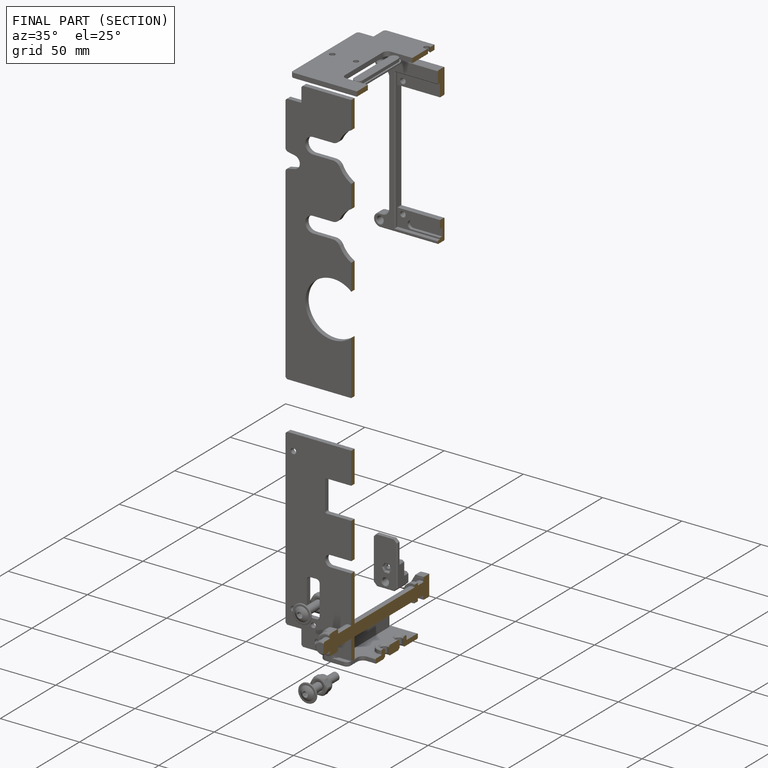
[diagram: finished part — half-section view (interior)]
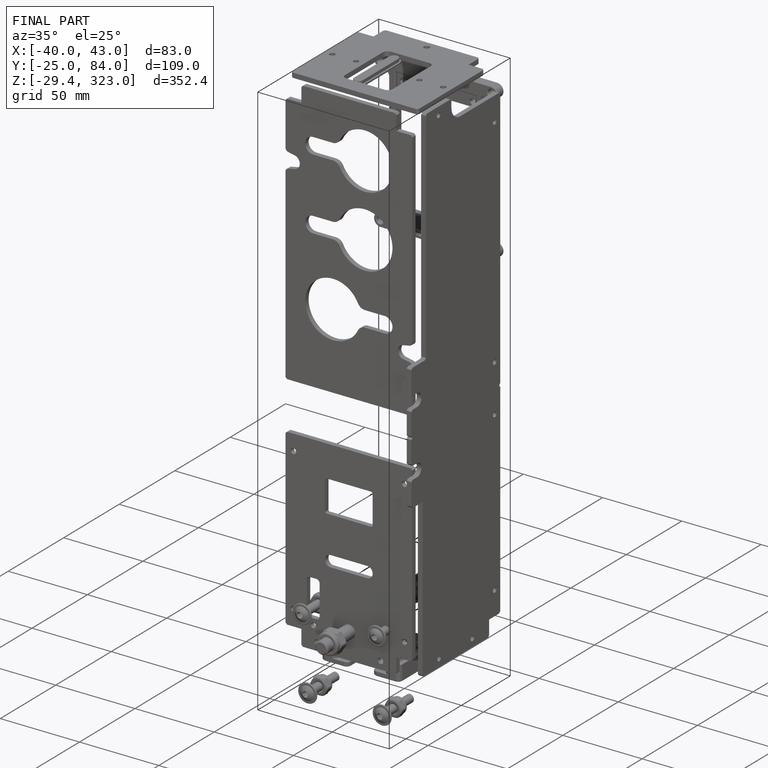
[diagram: finished part — iso view with bounding-box wireframe]
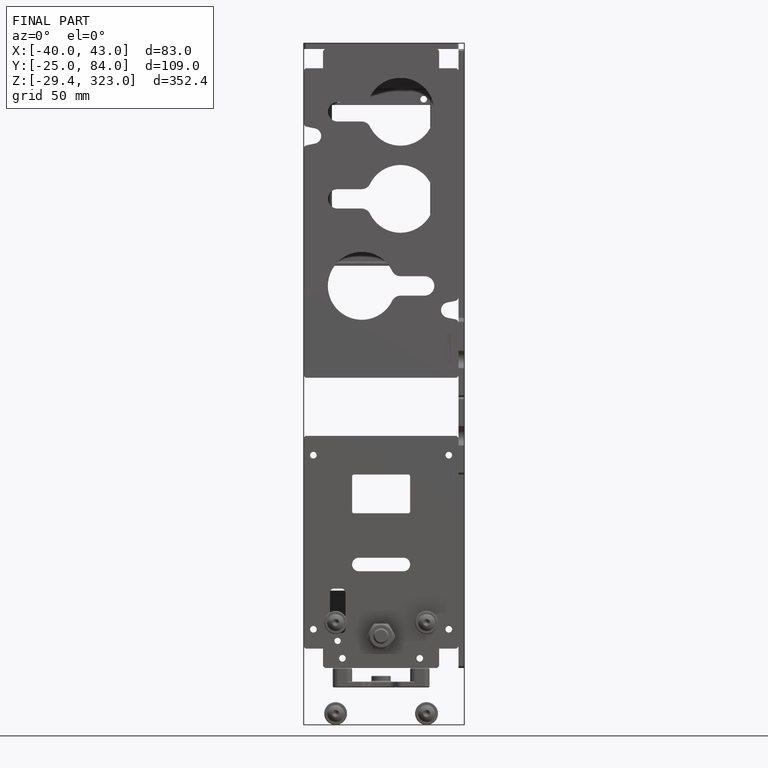
[diagram: finished part — front view with bounding-box wireframe]
